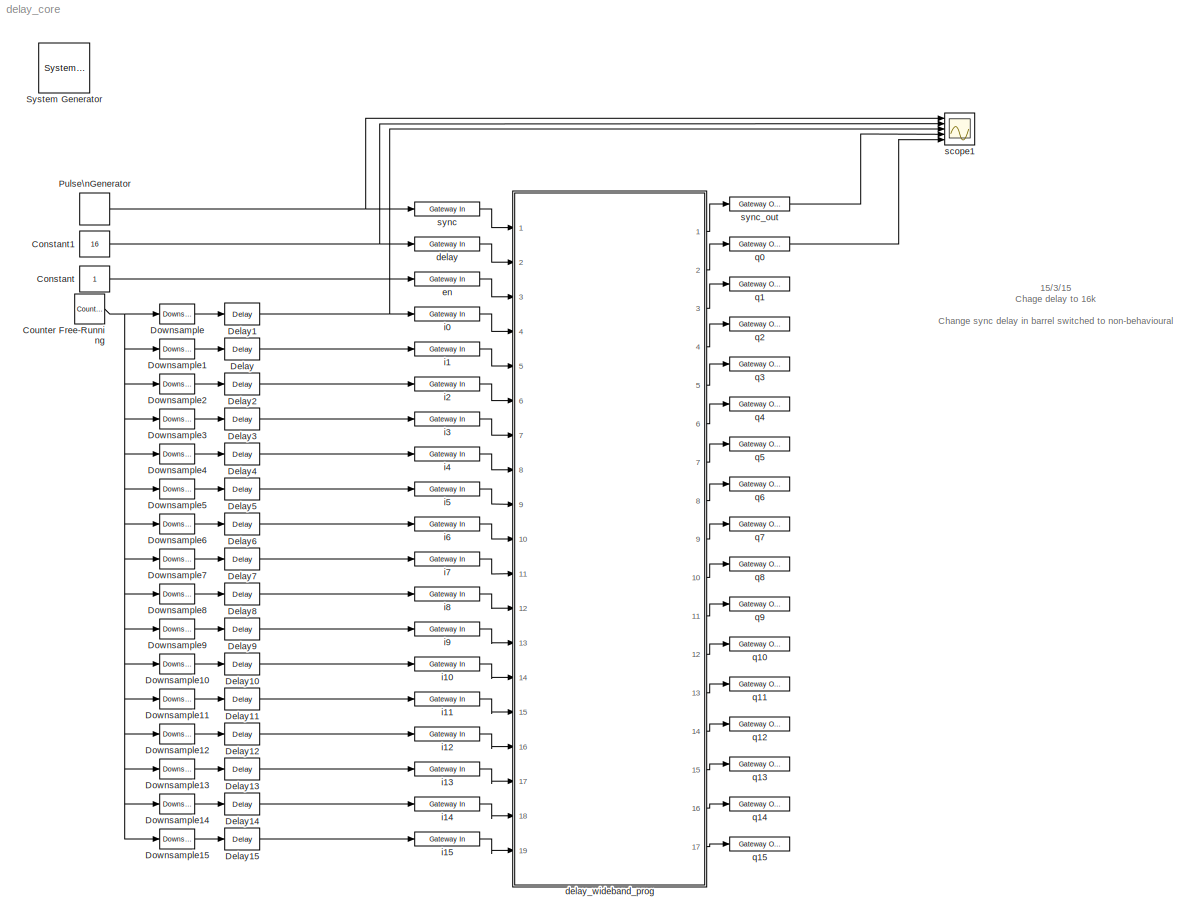
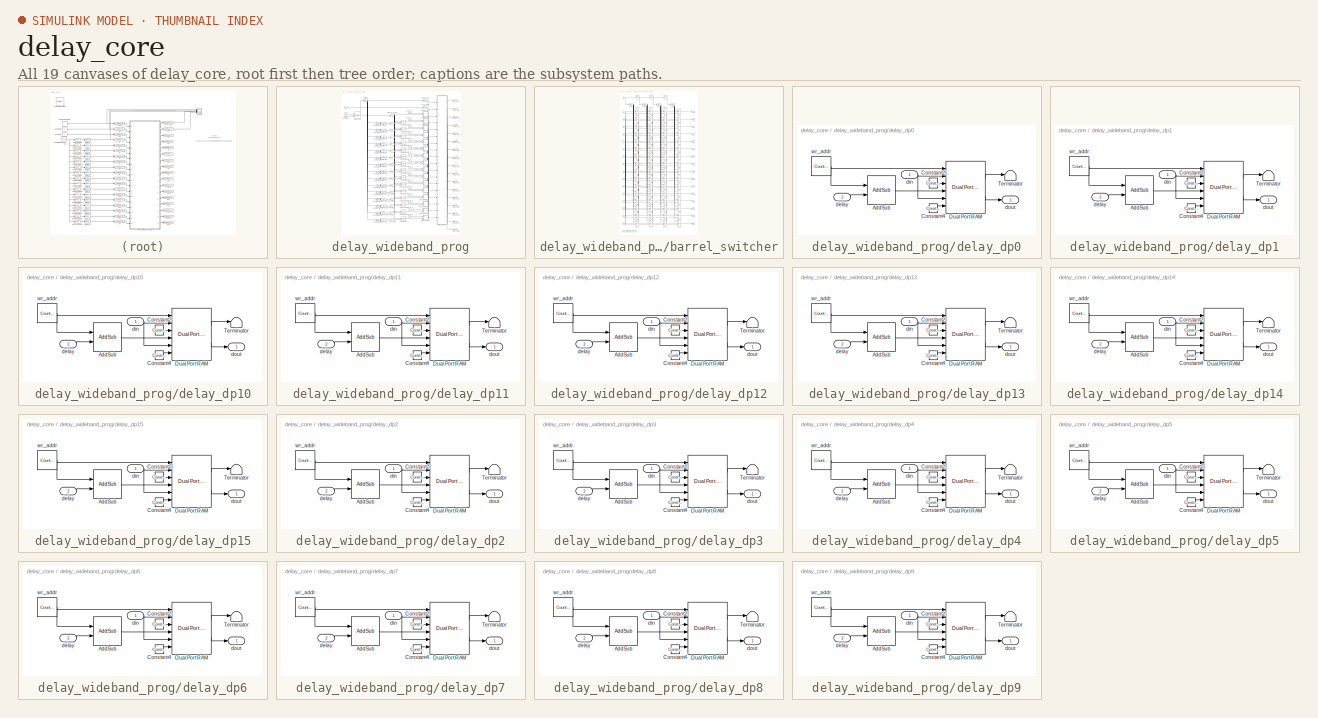
[diagram: thumbnail index - all 19 canvases of the model, root first then tree order]
MODEL delay_core
KIND model
BLOCK [Reference]  System Generator  REF=xbsIndex_r4/ System Generator
  AttributesFormatString = System\\nGenerator
  Impl_file = ISE Defaults
  Ports = []
  SID = 4
  SourceBlock = xbsIndex_r4/ System Generator
  SourceType = Xilinx System Generator Block
  Synth_file = XST Defaults
  Tag = genX
  UserData = DataTag0
  UserDataPersistent = on
  block_type = sysgen
  block_version = 11.4
  clock_wrapper = Clock Enables
  core_generation = According to Block Masks
  dbl_ovrd = According to Block Masks
  dcm_input_clock_period = 100
  deprecated_control = off
  directory = ./delay_core
  eval_field = 0
  has_advanced_control = 0
  incr_netlist = off
  infoedit = System Generator
  package = ff1759
  part = xc6vsx475t
  proj_type = Project Navigator
  run_coregen = off
  sg_icon_stat = 51,50,0,0,token,white,0,58c5b5770fe5f7c311f53dbc6e73f0f6,right,,[ ],[ ]
  sg_mask_display = fprintf('','COMMENT: begin icon graphics');\npatch([0 51 51 0 0 ],[0 0 50 50 0 ],[1 1 1 ]);\npatch([1.6375 16.81 27.31 37.81 48.31 27.31 12.1375 1.6375 ],[36.655 36.655 47.155 36.655 47.155 47.155 47.155 36.655 ],[0.933333 0.203922 0.141176 ]);\npatch([12.1375 27.31 16.81 1.6375 12.1375 ],[26.155 26.155 36.655 36.655 26.155 ],[0.698039 0.0313725 0.219608 ]);\npatch([1.6375 16.81 27.31 12.1375 1.63...<+335ch>
  sggui_pos = 326,241,464,470
  simulink_period = 1
  speed = -1
  synthesis_tool = XST
  sysclk_period = 3.2
  testbench = off
  trim_vbits = Everywhere in SubSystem
  xilinxfamily = virtex6
BLOCK [Constant] Constant
  SID = 67
BLOCK [Constant] Constant1
  SID = 163
  Value = 16
BLOCK [Reference] Counter Free-Running  REF=simulink/Sources/Counter\nFree-Running
  NumBits = 8
  Ports = [0, 1]
  SID = 164
  SourceBlock = simulink/Sources/Counter\nFree-Running
  SourceType = Counter Free-Running
  tsamp = 1/16
BLOCK [Reference] Delay  REF=dspsigops/Delay
  InputProcessing = Inherited (this choice will be removed - see release notes)
  Ports = [1, 1]
  SID = 144
  SourceBlock = dspsigops/Delay
  SourceType = Delay
  UserData = DataTag1
  UserDataPersistent = on
  delay = 1
  dif_ic_for_ch = off
  dif_ic_for_dly = off
  dly_unit = Samples
  ic = 0
  ic_detail = off
  reset_popup = None
BLOCK [Reference] Delay1  REF=dspsigops/Delay
  InputProcessing = Inherited (this choice will be removed - see release notes)
  Ports = [1, 1]
  SID = 145
  SourceBlock = dspsigops/Delay
  SourceType = Delay
  UserData = DataTag2
  UserDataPersistent = on
  delay = 1
  dif_ic_for_ch = off
  dif_ic_for_dly = off
  dly_unit = Samples
  ic = 0
  ic_detail = off
  reset_popup = None
BLOCK [Reference] Delay10  REF=dspsigops/Delay
  InputProcessing = Inherited (this choice will be removed - see release notes)
  Ports = [1, 1]
  SID = 154
  SourceBlock = dspsigops/Delay
  SourceType = Delay
  UserData = DataTag3
  UserDataPersistent = on
  delay = 1
  dif_ic_for_ch = off
  dif_ic_for_dly = off
  dly_unit = Samples
  ic = 0
  ic_detail = off
  reset_popup = None
BLOCK [Reference] Delay11  REF=dspsigops/Delay
  InputProcessing = Inherited (this choice will be removed - see release notes)
  Ports = [1, 1]
  SID = 155
  SourceBlock = dspsigops/Delay
  SourceType = Delay
  UserData = DataTag4
  UserDataPersistent = on
  delay = 1
  dif_ic_for_ch = off
  dif_ic_for_dly = off
  dly_unit = Samples
  ic = 0
  ic_detail = off
  reset_popup = None
BLOCK [Reference] Delay12  REF=dspsigops/Delay
  InputProcessing = Inherited (this choice will be removed - see release notes)
  Ports = [1, 1]
  SID = 156
  SourceBlock = dspsigops/Delay
  SourceType = Delay
  UserData = DataTag5
  UserDataPersistent = on
  delay = 1
  dif_ic_for_ch = off
  dif_ic_for_dly = off
  dly_unit = Samples
  ic = 0
  ic_detail = off
  reset_popup = None
BLOCK [Reference] Delay13  REF=dspsigops/Delay
  InputProcessing = Inherited (this choice will be removed - see release notes)
  Ports = [1, 1]
  SID = 157
  SourceBlock = dspsigops/Delay
  SourceType = Delay
  UserData = DataTag6
  UserDataPersistent = on
  delay = 1
  dif_ic_for_ch = off
  dif_ic_for_dly = off
  dly_unit = Samples
  ic = 0
  ic_detail = off
  reset_popup = None
BLOCK [Reference] Delay14  REF=dspsigops/Delay
  InputProcessing = Inherited (this choice will be removed - see release notes)
  Ports = [1, 1]
  SID = 158
  SourceBlock = dspsigops/Delay
  SourceType = Delay
  UserData = DataTag7
  UserDataPersistent = on
  delay = 1
  dif_ic_for_ch = off
  dif_ic_for_dly = off
  dly_unit = Samples
  ic = 0
  ic_detail = off
  reset_popup = None
BLOCK [Reference] Delay15  REF=dspsigops/Delay
  InputProcessing = Inherited (this choice will be removed - see release notes)
  Ports = [1, 1]
  SID = 159
  SourceBlock = dspsigops/Delay
  SourceType = Delay
  UserData = DataTag8
  UserDataPersistent = on
  delay = 1
  dif_ic_for_ch = off
  dif_ic_for_dly = off
  dly_unit = Samples
  ic = 0
  ic_detail = off
  reset_popup = None
BLOCK [Reference] Delay2  REF=dspsigops/Delay
  InputProcessing = Inherited (this choice will be removed - see release notes)
  Ports = [1, 1]
  SID = 146
  SourceBlock = dspsigops/Delay
  SourceType = Delay
  UserData = DataTag9
  UserDataPersistent = on
  delay = 1
  dif_ic_for_ch = off
  dif_ic_for_dly = off
  dly_unit = Samples
  ic = 0
  ic_detail = off
  reset_popup = None
BLOCK [Reference] Delay3  REF=dspsigops/Delay
  InputProcessing = Inherited (this choice will be removed - see release notes)
  Ports = [1, 1]
  SID = 147
  SourceBlock = dspsigops/Delay
  SourceType = Delay
  UserData = DataTag10
  UserDataPersistent = on
  delay = 1
  dif_ic_for_ch = off
  dif_ic_for_dly = off
  dly_unit = Samples
  ic = 0
  ic_detail = off
  reset_popup = None
BLOCK [Reference] Delay4  REF=dspsigops/Delay
  InputProcessing = Inherited (this choice will be removed - see release notes)
  Ports = [1, 1]
  SID = 148
  SourceBlock = dspsigops/Delay
  SourceType = Delay
  UserData = DataTag11
  UserDataPersistent = on
  delay = 1
  dif_ic_for_ch = off
  dif_ic_for_dly = off
  dly_unit = Samples
  ic = 0
  ic_detail = off
  reset_popup = None
BLOCK [Reference] Delay5  REF=dspsigops/Delay
  InputProcessing = Inherited (this choice will be removed - see release notes)
  Ports = [1, 1]
  SID = 149
  SourceBlock = dspsigops/Delay
  SourceType = Delay
  UserData = DataTag12
  UserDataPersistent = on
  delay = 1
  dif_ic_for_ch = off
  dif_ic_for_dly = off
  dly_unit = Samples
  ic = 0
  ic_detail = off
  reset_popup = None
BLOCK [Reference] Delay6  REF=dspsigops/Delay
  InputProcessing = Inherited (this choice will be removed - see release notes)
  Ports = [1, 1]
  SID = 150
  SourceBlock = dspsigops/Delay
  SourceType = Delay
  UserData = DataTag13
  UserDataPersistent = on
  delay = 1
  dif_ic_for_ch = off
  dif_ic_for_dly = off
  dly_unit = Samples
  ic = 0
  ic_detail = off
  reset_popup = None
BLOCK [Reference] Delay7  REF=dspsigops/Delay
  InputProcessing = Inherited (this choice will be removed - see release notes)
  Ports = [1, 1]
  SID = 151
  SourceBlock = dspsigops/Delay
  SourceType = Delay
  UserData = DataTag14
  UserDataPersistent = on
  delay = 1
  dif_ic_for_ch = off
  dif_ic_for_dly = off
  dly_unit = Samples
  ic = 0
  ic_detail = off
  reset_popup = None
BLOCK [Reference] Delay8  REF=dspsigops/Delay
  InputProcessing = Inherited (this choice will be removed - see release notes)
  Ports = [1, 1]
  SID = 152
  SourceBlock = dspsigops/Delay
  SourceType = Delay
  UserData = DataTag15
  UserDataPersistent = on
  delay = 1
  dif_ic_for_ch = off
  dif_ic_for_dly = off
  dly_unit = Samples
  ic = 0
  ic_detail = off
  reset_popup = None
BLOCK [Reference] Delay9  REF=dspsigops/Delay
  InputProcessing = Inherited (this choice will be removed - see release notes)
  Ports = [1, 1]
  SID = 153
  SourceBlock = dspsigops/Delay
  SourceType = Delay
  UserData = DataTag16
  UserDataPersistent = on
  delay = 1
  dif_ic_for_ch = off
  dif_ic_for_dly = off
  dly_unit = Samples
  ic = 0
  ic_detail = off
  reset_popup = None
BLOCK [Reference] Downsample  REF=dspsigops/Downsample
  InputProcessing = Inherited (this choice will be removed - see release notes)
  N = 16
  Ports = [1, 1]
  RateOptions = Enforce single-rate processing
  SID = 47
  SourceBlock = dspsigops/Downsample
  SourceType = Downsample
  UserData = DataTag17
  UserDataPersistent = on
  fmode = Maintain input frame size
  ic = 0
  phase = 0
  smode = Allow multirate
BLOCK [Reference] Downsample1  REF=dspsigops/Downsample
  InputProcessing = Inherited (this choice will be removed - see release notes)
  N = 16
  Ports = [1, 1]
  RateOptions = Enforce single-rate processing
  SID = 48
  SourceBlock = dspsigops/Downsample
  SourceType = Downsample
  UserData = DataTag18
  UserDataPersistent = on
  fmode = Maintain input frame size
  ic = 0
  phase = 1
  smode = Allow multirate
BLOCK [Reference] Downsample10  REF=dspsigops/Downsample
  InputProcessing = Inherited (this choice will be removed - see release notes)
  N = 16
  Ports = [1, 1]
  RateOptions = Enforce single-rate processing
  SID = 57
  SourceBlock = dspsigops/Downsample
  SourceType = Downsample
  UserData = DataTag19
  UserDataPersistent = on
  fmode = Maintain input frame size
  ic = 0
  phase = 10
  smode = Allow multirate
BLOCK [Reference] Downsample11  REF=dspsigops/Downsample
  InputProcessing = Inherited (this choice will be removed - see release notes)
  N = 16
  Ports = [1, 1]
  RateOptions = Enforce single-rate processing
  SID = 58
  SourceBlock = dspsigops/Downsample
  SourceType = Downsample
  UserData = DataTag20
  UserDataPersistent = on
  fmode = Maintain input frame size
  ic = 0
  phase = 11
  smode = Allow multirate
BLOCK [Reference] Downsample12  REF=dspsigops/Downsample
  InputProcessing = Inherited (this choice will be removed - see release notes)
  N = 16
  Ports = [1, 1]
  RateOptions = Enforce single-rate processing
  SID = 59
  SourceBlock = dspsigops/Downsample
  SourceType = Downsample
  UserData = DataTag21
  UserDataPersistent = on
  fmode = Maintain input frame size
  ic = 0
  phase = 12
  smode = Allow multirate
BLOCK [Reference] Downsample13  REF=dspsigops/Downsample
  InputProcessing = Inherited (this choice will be removed - see release notes)
  N = 16
  Ports = [1, 1]
  RateOptions = Enforce single-rate processing
  SID = 60
  SourceBlock = dspsigops/Downsample
  SourceType = Downsample
  UserData = DataTag22
  UserDataPersistent = on
  fmode = Maintain input frame size
  ic = 0
  phase = 13
  smode = Allow multirate
BLOCK [Reference] Downsample14  REF=dspsigops/Downsample
  InputProcessing = Inherited (this choice will be removed - see release notes)
  N = 16
  Ports = [1, 1]
  RateOptions = Enforce single-rate processing
  SID = 61
  SourceBlock = dspsigops/Downsample
  SourceType = Downsample
  UserData = DataTag23
  UserDataPersistent = on
  fmode = Maintain input frame size
  ic = 0
  phase = 14
  smode = Allow multirate
BLOCK [Reference] Downsample15  REF=dspsigops/Downsample
  InputProcessing = Inherited (this choice will be removed - see release notes)
  N = 16
  Ports = [1, 1]
  RateOptions = Enforce single-rate processing
  SID = 62
  SourceBlock = dspsigops/Downsample
  SourceType = Downsample
  UserData = DataTag24
  UserDataPersistent = on
  fmode = Maintain input frame size
  ic = 0
  phase = 15
  smode = Allow multirate
BLOCK [Reference] Downsample2  REF=dspsigops/Downsample
  InputProcessing = Inherited (this choice will be removed - see release notes)
  N = 16
  Ports = [1, 1]
  RateOptions = Enforce single-rate processing
  SID = 49
  SourceBlock = dspsigops/Downsample
  SourceType = Downsample
  UserData = DataTag25
  UserDataPersistent = on
  fmode = Maintain input frame size
  ic = 0
  phase = 2
  smode = Allow multirate
BLOCK [Reference] Downsample3  REF=dspsigops/Downsample
  InputProcessing = Inherited (this choice will be removed - see release notes)
  N = 16
  Ports = [1, 1]
  RateOptions = Enforce single-rate processing
  SID = 50
  SourceBlock = dspsigops/Downsample
  SourceType = Downsample
  UserData = DataTag26
  UserDataPersistent = on
  fmode = Maintain input frame size
  ic = 0
  phase = 3
  smode = Allow multirate
BLOCK [Reference] Downsample4  REF=dspsigops/Downsample
  InputProcessing = Inherited (this choice will be removed - see release notes)
  N = 16
  Ports = [1, 1]
  RateOptions = Enforce single-rate processing
  SID = 51
  SourceBlock = dspsigops/Downsample
  SourceType = Downsample
  UserData = DataTag27
  UserDataPersistent = on
  fmode = Maintain input frame size
  ic = 0
  phase = 4
  smode = Allow multirate
BLOCK [Reference] Downsample5  REF=dspsigops/Downsample
  InputProcessing = Inherited (this choice will be removed - see release notes)
  N = 16
  Ports = [1, 1]
  RateOptions = Enforce single-rate processing
  SID = 52
  SourceBlock = dspsigops/Downsample
  SourceType = Downsample
  UserData = DataTag28
  UserDataPersistent = on
  fmode = Maintain input frame size
  ic = 0
  phase = 5
  smode = Allow multirate
BLOCK [Reference] Downsample6  REF=dspsigops/Downsample
  InputProcessing = Inherited (this choice will be removed - see release notes)
  N = 16
  Ports = [1, 1]
  RateOptions = Enforce single-rate processing
  SID = 53
  SourceBlock = dspsigops/Downsample
  SourceType = Downsample
  UserData = DataTag29
  UserDataPersistent = on
  fmode = Maintain input frame size
  ic = 0
  phase = 6
  smode = Allow multirate
BLOCK [Reference] Downsample7  REF=dspsigops/Downsample
  InputProcessing = Inherited (this choice will be removed - see release notes)
  N = 16
  Ports = [1, 1]
  RateOptions = Enforce single-rate processing
  SID = 54
  SourceBlock = dspsigops/Downsample
  SourceType = Downsample
  UserData = DataTag30
  UserDataPersistent = on
  fmode = Maintain input frame size
  ic = 0
  phase = 7
  smode = Allow multirate
BLOCK [Reference] Downsample8  REF=dspsigops/Downsample
  InputProcessing = Inherited (this choice will be removed - see release notes)
  N = 16
  Ports = [1, 1]
  RateOptions = Enforce single-rate processing
  SID = 55
  SourceBlock = dspsigops/Downsample
  SourceType = Downsample
  UserData = DataTag31
  UserDataPersistent = on
  fmode = Maintain input frame size
  ic = 0
  phase = 8
  smode = Allow multirate
BLOCK [Reference] Downsample9  REF=dspsigops/Downsample
  InputProcessing = Inherited (this choice will be removed - see release notes)
  N = 16
  Ports = [1, 1]
  RateOptions = Enforce single-rate processing
  SID = 56
  SourceBlock = dspsigops/Downsample
  SourceType = Downsample
  UserData = DataTag32
  UserDataPersistent = on
  fmode = Maintain input frame size
  ic = 0
  phase = 9
  smode = Allow multirate
BLOCK [DiscretePulseGenerator] Pulse\nGenerator
  Period = 2^17
  Ports = [0, 1]
  SID = 65
BLOCK [Reference] delay  REF=xbsIndex_r4/Gateway In
  ADCChannel = '1'
  LOCs = {}
  Ports = [1, 1]
  SID = 7
  SourceBlock = xbsIndex_r4/Gateway In
  SourceType = Xilinx Gateway In Block
  UseAsADC = off
  arith_type = Unsigned
  bin_pt = 0
  block_type = gatewayin
  block_version = 11.4
  dbl_ovrd = off
  exp_width = 8
  frac_width = 24
  gui_display_data_type = Fixed-point
  has_advanced_control = 0
  hdl_port = on
  infoedit = Gateway in block.  Converts inputs of type Simulink integer, double and fixed point to  Xilinx fixed point type.<br><br>Hardware notes:  In hardware these blocks become top level input ports.  <repeated x19 — deduplicated; at blocks: delay, en, i0, i1, i10, i11, i12, i13, i14, i15, i2, i3, i4, i5, i6, i7, +3 more>
  inherit_from_input = off
  locs_specified = off
  n_bits = 15
  overflow = Saturate
  period = 1
  preci_type = Single
  quantization = Round  (unbiased: +/- Inf)
  sg_icon_stat = 65,14,1,1,white,yellow,1,00d3666e,right,,[ ],[ ]
  sg_mask_display = fprintf('','COMMENT: begin icon graphics');\npatch([0 65 65 0 0 ],[0 0 14 14 0 ],[0.95 0.93 0.65 ]);\nplot([0 65 65 0 0 ],[0 0 14 14 0 ]);\npatch([27.55 30.44 32.44 34.44 36.44 32.44 29.55 27.55 ],[9.22 9.22 11.22 9.22 11.22 11.22 11.22 9.22 ],[1 1 1 ]);\npatch([29.55 32.44 30.44 27.55 29.55 ],[7.22 7.22 9.22 9.22 7.22 ],[0.985 0.979 0.895 ]);\npatch([27.55 30.44 32.44 29.55 27.55 ],[5.22 5.22 7.2...<+385ch>  <repeated x19 — deduplicated; at blocks: delay, en, i0, i1, i10, i11, i12, i13, i14, i15, i2, i3, i4, i5, i6, i7, +3 more>
  sggui_pos = 13,39,481,695
  timing_constraint = None
  xl_area = [0,0,0,0,0,0,0]
  xl_use_area = off
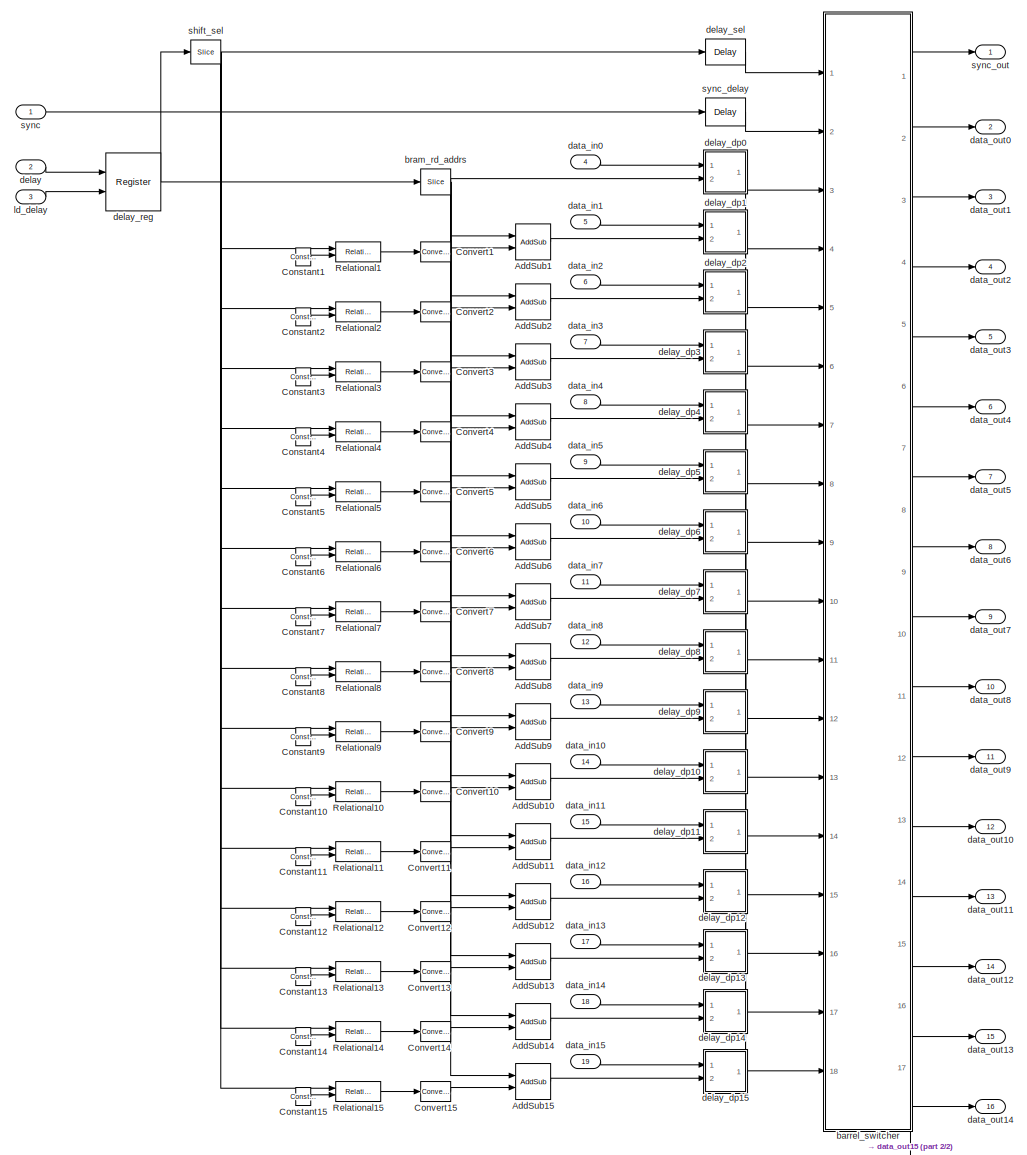
[diagram: delay_wideband_prog - part 1/2, most of the canvas]
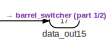
[diagram: delay_wideband_prog - part 2/2, bottom right region]
BLOCK [SubSystem] delay_wideband_prog
  AncestorBlock = casper_library_delays/delay_wideband_prog
  FunctionWithSeparateData = off
  MaskHideContents = off
  MinAlgLoopOccurrences = off
  Opaque = off
  Ports = [19, 17]
  PropExecContextOutsideSubsystem = off
  RTWSystemCode = Auto
  RequestExecContextInheritance = off
  SID = 162
  UserData = DataTag33
  UserDataPersistent = on
BLOCK [Reference] delay_wideband_prog/AddSub1  REF=xbsIndex_r4/AddSub
  Ports = [2, 1]
  SID = 162:274
  SourceBlock = xbsIndex_r4/AddSub
  SourceType = Xilinx Adder/Subtracter Block
  arith_type = Unsigned
  bin_pt = 0
  block_type = addsub
  dbl_ovrd = off
  en = off
  has_advanced_control = 0
  hw_selection = Fabric
  latency = 0
  mode = Addition
  n_bits = 10
  overflow = Wrap
  pipelined = off
  precision = Full
  quantization = Truncate
  sg_icon_stat = 35,36,2,1,white,blue,0,e139daf6,right,,[ ],[ ]
  sg_mask_display = fprintf('','COMMENT: begin icon graphics');\npatch([0 35 35 0 0 ],[0 0 36 36 0 ],[0.77 0.82 0.91 ]);\nplot([0 35 35 0 0 ],[0 0 36 36 0 ]);\npatch([5.875 13.1 18.1 23.1 28.1 18.1 10.875 5.875 ],[23.55 23.55 28.55 23.55 28.55 28.55 28.55 23.55 ],[1 1 1 ]);\npatch([10.875 18.1 13.1 5.875 10.875 ],[18.55 18.55 23.55 23.55 18.55 ],[0.931 0.946 0.973 ]);\npatch([5.875 13.1 18.1 10.875 5.875 ],[13.55 13....<+425ch>  <repeated x15 — deduplicated; at blocks: AddSub1, AddSub10, AddSub11, AddSub12, AddSub13, AddSub14, AddSub15, AddSub2, AddSub3, AddSub4, AddSub5, AddSub6, AddSub7, AddSub8, AddSub9>
  sggui_pos = -1,-1,-1,-1
  use_behavioral_HDL = off
  use_carryin = off
  use_carryout = off
  xl_area = [0,0,0,0,0,0,0]
  xl_use_area = off
BLOCK [Reference] delay_wideband_prog/AddSub10  REF=xbsIndex_r4/AddSub
  Ports = [2, 1]
  SID = 162:328
  SourceBlock = xbsIndex_r4/AddSub
  SourceType = Xilinx Adder/Subtracter Block
  arith_type = Unsigned
  bin_pt = 0
  block_type = addsub
  dbl_ovrd = off
  en = off
  has_advanced_control = 0
  hw_selection = Fabric
  latency = 0
  mode = Addition
  n_bits = 10
  overflow = Wrap
  pipelined = off
  precision = Full
  quantization = Truncate
  sg_icon_stat = 35,36,2,1,white,blue,0,e139daf6,right,,[ ],[ ]
  sggui_pos = -1,-1,-1,-1
  use_behavioral_HDL = off
  use_carryin = off
  use_carryout = off
  xl_area = [0,0,0,0,0,0,0]
  xl_use_area = off
BLOCK [Reference] delay_wideband_prog/AddSub11  REF=xbsIndex_r4/AddSub
  Ports = [2, 1]
  SID = 162:334
  SourceBlock = xbsIndex_r4/AddSub
  SourceType = Xilinx Adder/Subtracter Block
  arith_type = Unsigned
  bin_pt = 0
  block_type = addsub
  dbl_ovrd = off
  en = off
  has_advanced_control = 0
  hw_selection = Fabric
  latency = 0
  mode = Addition
  n_bits = 10
  overflow = Wrap
  pipelined = off
  precision = Full
  quantization = Truncate
  sg_icon_stat = 35,36,2,1,white,blue,0,e139daf6,right,,[ ],[ ]
  sggui_pos = -1,-1,-1,-1
  use_behavioral_HDL = off
  use_carryin = off
  use_carryout = off
  xl_area = [0,0,0,0,0,0,0]
  xl_use_area = off
BLOCK [Reference] delay_wideband_prog/AddSub12  REF=xbsIndex_r4/AddSub
  Ports = [2, 1]
  SID = 162:340
  SourceBlock = xbsIndex_r4/AddSub
  SourceType = Xilinx Adder/Subtracter Block
  arith_type = Unsigned
  bin_pt = 0
  block_type = addsub
  dbl_ovrd = off
  en = off
  has_advanced_control = 0
  hw_selection = Fabric
  latency = 0
  mode = Addition
  n_bits = 10
  overflow = Wrap
  pipelined = off
  precision = Full
  quantization = Truncate
  sg_icon_stat = 35,36,2,1,white,blue,0,e139daf6,right,,[ ],[ ]
  sggui_pos = -1,-1,-1,-1
  use_behavioral_HDL = off
  use_carryin = off
  use_carryout = off
  xl_area = [0,0,0,0,0,0,0]
  xl_use_area = off
BLOCK [Reference] delay_wideband_prog/AddSub13  REF=xbsIndex_r4/AddSub
  Ports = [2, 1]
  SID = 162:346
  SourceBlock = xbsIndex_r4/AddSub
  SourceType = Xilinx Adder/Subtracter Block
  arith_type = Unsigned
  bin_pt = 0
  block_type = addsub
  dbl_ovrd = off
  en = off
  has_advanced_control = 0
  hw_selection = Fabric
  latency = 0
  mode = Addition
  n_bits = 10
  overflow = Wrap
  pipelined = off
  precision = Full
  quantization = Truncate
  sg_icon_stat = 35,36,2,1,white,blue,0,e139daf6,right,,[ ],[ ]
  sggui_pos = -1,-1,-1,-1
  use_behavioral_HDL = off
  use_carryin = off
  use_carryout = off
  xl_area = [0,0,0,0,0,0,0]
  xl_use_area = off
BLOCK [Reference] delay_wideband_prog/AddSub14  REF=xbsIndex_r4/AddSub
  Ports = [2, 1]
  SID = 162:352
  SourceBlock = xbsIndex_r4/AddSub
  SourceType = Xilinx Adder/Subtracter Block
  arith_type = Unsigned
  bin_pt = 0
  block_type = addsub
  dbl_ovrd = off
  en = off
  has_advanced_control = 0
  hw_selection = Fabric
  latency = 0
  mode = Addition
  n_bits = 10
  overflow = Wrap
  pipelined = off
  precision = Full
  quantization = Truncate
  sg_icon_stat = 35,36,2,1,white,blue,0,e139daf6,right,,[ ],[ ]
  sggui_pos = -1,-1,-1,-1
  use_behavioral_HDL = off
  use_carryin = off
  use_carryout = off
  xl_area = [0,0,0,0,0,0,0]
  xl_use_area = off
BLOCK [Reference] delay_wideband_prog/AddSub15  REF=xbsIndex_r4/AddSub
  Ports = [2, 1]
  SID = 162:358
  SourceBlock = xbsIndex_r4/AddSub
  SourceType = Xilinx Adder/Subtracter Block
  arith_type = Unsigned
  bin_pt = 0
  block_type = addsub
  dbl_ovrd = off
  en = off
  has_advanced_control = 0
  hw_selection = Fabric
  latency = 0
  mode = Addition
  n_bits = 10
  overflow = Wrap
  pipelined = off
  precision = Full
  quantization = Truncate
  sg_icon_stat = 35,36,2,1,white,blue,0,e139daf6,right,,[ ],[ ]
  sggui_pos = -1,-1,-1,-1
  use_behavioral_HDL = off
  use_carryin = off
  use_carryout = off
  xl_area = [0,0,0,0,0,0,0]
  xl_use_area = off
BLOCK [Reference] delay_wideband_prog/AddSub2  REF=xbsIndex_r4/AddSub
  Ports = [2, 1]
  SID = 162:280
  SourceBlock = xbsIndex_r4/AddSub
  SourceType = Xilinx Adder/Subtracter Block
  arith_type = Unsigned
  bin_pt = 0
  block_type = addsub
  dbl_ovrd = off
  en = off
  has_advanced_control = 0
  hw_selection = Fabric
  latency = 0
  mode = Addition
  n_bits = 10
  overflow = Wrap
  pipelined = off
  precision = Full
  quantization = Truncate
  sg_icon_stat = 35,36,2,1,white,blue,0,e139daf6,right,,[ ],[ ]
  sggui_pos = -1,-1,-1,-1
  use_behavioral_HDL = off
  use_carryin = off
  use_carryout = off
  xl_area = [0,0,0,0,0,0,0]
  xl_use_area = off
BLOCK [Reference] delay_wideband_prog/AddSub3  REF=xbsIndex_r4/AddSub
  Ports = [2, 1]
  SID = 162:286
  SourceBlock = xbsIndex_r4/AddSub
  SourceType = Xilinx Adder/Subtracter Block
  arith_type = Unsigned
  bin_pt = 0
  block_type = addsub
  dbl_ovrd = off
  en = off
  has_advanced_control = 0
  hw_selection = Fabric
  latency = 0
  mode = Addition
  n_bits = 10
  overflow = Wrap
  pipelined = off
  precision = Full
  quantization = Truncate
  sg_icon_stat = 35,36,2,1,white,blue,0,e139daf6,right,,[ ],[ ]
  sggui_pos = -1,-1,-1,-1
  use_behavioral_HDL = off
  use_carryin = off
  use_carryout = off
  xl_area = [0,0,0,0,0,0,0]
  xl_use_area = off
BLOCK [Reference] delay_wideband_prog/AddSub4  REF=xbsIndex_r4/AddSub
  Ports = [2, 1]
  SID = 162:292
  SourceBlock = xbsIndex_r4/AddSub
  SourceType = Xilinx Adder/Subtracter Block
  arith_type = Unsigned
  bin_pt = 0
  block_type = addsub
  dbl_ovrd = off
  en = off
  has_advanced_control = 0
  hw_selection = Fabric
  latency = 0
  mode = Addition
  n_bits = 10
  overflow = Wrap
  pipelined = off
  precision = Full
  quantization = Truncate
  sg_icon_stat = 35,36,2,1,white,blue,0,e139daf6,right,,[ ],[ ]
  sggui_pos = -1,-1,-1,-1
  use_behavioral_HDL = off
  use_carryin = off
  use_carryout = off
  xl_area = [0,0,0,0,0,0,0]
  xl_use_area = off
BLOCK [Reference] delay_wideband_prog/AddSub5  REF=xbsIndex_r4/AddSub
  Ports = [2, 1]
  SID = 162:298
  SourceBlock = xbsIndex_r4/AddSub
  SourceType = Xilinx Adder/Subtracter Block
  arith_type = Unsigned
  bin_pt = 0
  block_type = addsub
  dbl_ovrd = off
  en = off
  has_advanced_control = 0
  hw_selection = Fabric
  latency = 0
  mode = Addition
  n_bits = 10
  overflow = Wrap
  pipelined = off
  precision = Full
  quantization = Truncate
  sg_icon_stat = 35,36,2,1,white,blue,0,e139daf6,right,,[ ],[ ]
  sggui_pos = -1,-1,-1,-1
  use_behavioral_HDL = off
  use_carryin = off
  use_carryout = off
  xl_area = [0,0,0,0,0,0,0]
  xl_use_area = off
BLOCK [Reference] delay_wideband_prog/AddSub6  REF=xbsIndex_r4/AddSub
  Ports = [2, 1]
  SID = 162:304
  SourceBlock = xbsIndex_r4/AddSub
  SourceType = Xilinx Adder/Subtracter Block
  arith_type = Unsigned
  bin_pt = 0
  block_type = addsub
  dbl_ovrd = off
  en = off
  has_advanced_control = 0
  hw_selection = Fabric
  latency = 0
  mode = Addition
  n_bits = 10
  overflow = Wrap
  pipelined = off
  precision = Full
  quantization = Truncate
  sg_icon_stat = 35,36,2,1,white,blue,0,e139daf6,right,,[ ],[ ]
  sggui_pos = -1,-1,-1,-1
  use_behavioral_HDL = off
  use_carryin = off
  use_carryout = off
  xl_area = [0,0,0,0,0,0,0]
  xl_use_area = off
BLOCK [Reference] delay_wideband_prog/AddSub7  REF=xbsIndex_r4/AddSub
  Ports = [2, 1]
  SID = 162:310
  SourceBlock = xbsIndex_r4/AddSub
  SourceType = Xilinx Adder/Subtracter Block
  arith_type = Unsigned
  bin_pt = 0
  block_type = addsub
  dbl_ovrd = off
  en = off
  has_advanced_control = 0
  hw_selection = Fabric
  latency = 0
  mode = Addition
  n_bits = 10
  overflow = Wrap
  pipelined = off
  precision = Full
  quantization = Truncate
  sg_icon_stat = 35,36,2,1,white,blue,0,e139daf6,right,,[ ],[ ]
  sggui_pos = -1,-1,-1,-1
  use_behavioral_HDL = off
  use_carryin = off
  use_carryout = off
  xl_area = [0,0,0,0,0,0,0]
  xl_use_area = off
BLOCK [Reference] delay_wideband_prog/AddSub8  REF=xbsIndex_r4/AddSub
  Ports = [2, 1]
  SID = 162:316
  SourceBlock = xbsIndex_r4/AddSub
  SourceType = Xilinx Adder/Subtracter Block
  arith_type = Unsigned
  bin_pt = 0
  block_type = addsub
  dbl_ovrd = off
  en = off
  has_advanced_control = 0
  hw_selection = Fabric
  latency = 0
  mode = Addition
  n_bits = 10
  overflow = Wrap
  pipelined = off
  precision = Full
  quantization = Truncate
  sg_icon_stat = 35,36,2,1,white,blue,0,e139daf6,right,,[ ],[ ]
  sggui_pos = -1,-1,-1,-1
  use_behavioral_HDL = off
  use_carryin = off
  use_carryout = off
  xl_area = [0,0,0,0,0,0,0]
  xl_use_area = off
BLOCK [Reference] delay_wideband_prog/AddSub9  REF=xbsIndex_r4/AddSub
  Ports = [2, 1]
  SID = 162:322
  SourceBlock = xbsIndex_r4/AddSub
  SourceType = Xilinx Adder/Subtracter Block
  arith_type = Unsigned
  bin_pt = 0
  block_type = addsub
  dbl_ovrd = off
  en = off
  has_advanced_control = 0
  hw_selection = Fabric
  latency = 0
  mode = Addition
  n_bits = 10
  overflow = Wrap
  pipelined = off
  precision = Full
  quantization = Truncate
  sg_icon_stat = 35,36,2,1,white,blue,0,e139daf6,right,,[ ],[ ]
  sggui_pos = -1,-1,-1,-1
  use_behavioral_HDL = off
  use_carryin = off
  use_carryout = off
  xl_area = [0,0,0,0,0,0,0]
  xl_use_area = off
BLOCK [Reference] delay_wideband_prog/Constant1  REF=xbsIndex_r4/Constant
  Ports = [0, 1]
  SID = 162:271
  SourceBlock = xbsIndex_r4/Constant
  SourceType = Xilinx Constant Block Block
  arith_type = Unsigned
  bin_pt = 0
  block_type = constant
  carry = CIN
  const = 14
  dbl_ovrd = off
  dsp48_infoedit = The use of this block for DSP48 instructions is deprecated.  Please use the Opmode block.
  equ = P=C
  exp_width = 8
  explicit_period = on
  frac_width = 24
  gui_display_data_type = Fixed-point
  has_advanced_control = 0
  inp1 = P
  inp2 = PCIN>>17
  n_bits = 4
  opr = +
  opselect = C
  period = 1
  preci_type = Single
  sg_icon_stat = 15,18,0,1,white,blue,0,9e70b1fa,right,,[ ],[ ]
  sg_mask_display = fprintf('','COMMENT: begin icon graphics');\npatch([0 15 15 0 0 ],[0 0 18 18 0 ],[0.77 0.82 0.91 ]);\nplot([0 15 15 0 0 ],[0 0 18 18 0 ]);\npatch([2.55 5.44 7.44 9.44 11.44 7.44 4.55 2.55 ],[11.22 11.22 13.22 11.22 13.22 13.22 13.22 11.22 ],[1 1 1 ]);\npatch([4.55 7.44 5.44 2.55 4.55 ],[9.22 9.22 11.22 11.22 9.22 ],[0.931 0.946 0.973 ]);\npatch([2.55 5.44 7.44 4.55 2.55 ],[7.22 7.22 9.22 9.22 7.22...<+288ch>  <repeated x5 — deduplicated; at blocks: Constant1, Constant2, Constant3, Constant4, Constant5>
  sggui_pos = -1,-1,-1,-1
BLOCK [Reference] delay_wideband_prog/Constant10  REF=xbsIndex_r4/Constant
  Ports = [0, 1]
  SID = 162:325
  SourceBlock = xbsIndex_r4/Constant
  SourceType = Xilinx Constant Block Block
  arith_type = Unsigned
  bin_pt = 0
  block_type = constant
  carry = CIN
  const = 5
  dbl_ovrd = off
  dsp48_infoedit = The use of this block for DSP48 instructions is deprecated.  Please use the Opmode block.
  equ = P=C
  exp_width = 8
  explicit_period = on
  frac_width = 24
  gui_display_data_type = Fixed-point
  has_advanced_control = 0
  inp1 = P
  inp2 = PCIN>>17
  n_bits = 4
  opr = +
  opselect = C
  period = 1
  preci_type = Single
  sg_icon_stat = 15,18,0,1,white,blue,0,98872051,right,,[ ],[ ]
  sg_mask_display = fprintf('','COMMENT: begin icon graphics');\npatch([0 15 15 0 0 ],[0 0 18 18 0 ],[0.77 0.82 0.91 ]);\nplot([0 15 15 0 0 ],[0 0 18 18 0 ]);\npatch([2.55 5.44 7.44 9.44 11.44 7.44 4.55 2.55 ],[11.22 11.22 13.22 11.22 13.22 13.22 13.22 11.22 ],[1 1 1 ]);\npatch([4.55 7.44 5.44 2.55 4.55 ],[9.22 9.22 11.22 11.22 9.22 ],[0.931 0.946 0.973 ]);\npatch([2.55 5.44 7.44 4.55 2.55 ],[7.22 7.22 9.22 9.22 7.22...<+287ch>  <repeated x26 — deduplicated; at blocks: Constant10, Constant11, Constant12, Constant13, Constant14, Constant15, Constant6, Constant7, Constant8, Constant9, Constant2>
  sggui_pos = -1,-1,-1,-1
BLOCK [Reference] delay_wideband_prog/Constant11  REF=xbsIndex_r4/Constant
  Ports = [0, 1]
  SID = 162:331
  SourceBlock = xbsIndex_r4/Constant
  SourceType = Xilinx Constant Block Block
  arith_type = Unsigned
  bin_pt = 0
  block_type = constant
  carry = CIN
  const = 4
  dbl_ovrd = off
  dsp48_infoedit = The use of this block for DSP48 instructions is deprecated.  Please use the Opmode block.
  equ = P=C
  exp_width = 8
  explicit_period = on
  frac_width = 24
  gui_display_data_type = Fixed-point
  has_advanced_control = 0
  inp1 = P
  inp2 = PCIN>>17
  n_bits = 4
  opr = +
  opselect = C
  period = 1
  preci_type = Single
  sg_icon_stat = 15,18,0,1,white,blue,0,85f36853,right,,[ ],[ ]
  sggui_pos = -1,-1,-1,-1
BLOCK [Reference] delay_wideband_prog/Constant12  REF=xbsIndex_r4/Constant
  Ports = [0, 1]
  SID = 162:337
  SourceBlock = xbsIndex_r4/Constant
  SourceType = Xilinx Constant Block Block
  arith_type = Unsigned
  bin_pt = 0
  block_type = constant
  carry = CIN
  const = 3
  dbl_ovrd = off
  dsp48_infoedit = The use of this block for DSP48 instructions is deprecated.  Please use the Opmode block.
  equ = P=C
  exp_width = 8
  explicit_period = on
  frac_width = 24
  gui_display_data_type = Fixed-point
  has_advanced_control = 0
  inp1 = P
  inp2 = PCIN>>17
  n_bits = 4
  opr = +
  opselect = C
  period = 1
  preci_type = Single
  sg_icon_stat = 15,18,0,1,white,blue,0,279a71c8,right,,[ ],[ ]
  sggui_pos = -1,-1,-1,-1
BLOCK [Reference] delay_wideband_prog/Constant13  REF=xbsIndex_r4/Constant
  Ports = [0, 1]
  SID = 162:343
  SourceBlock = xbsIndex_r4/Constant
  SourceType = Xilinx Constant Block Block
  arith_type = Unsigned
  bin_pt = 0
  block_type = constant
  carry = CIN
  const = 2
  dbl_ovrd = off
  dsp48_infoedit = The use of this block for DSP48 instructions is deprecated.  Please use the Opmode block.
  equ = P=C
  exp_width = 8
  explicit_period = on
  frac_width = 24
  gui_display_data_type = Fixed-point
  has_advanced_control = 0
  inp1 = P
  inp2 = PCIN>>17
  n_bits = 4
  opr = +
  opselect = C
  period = 1
  preci_type = Single
  sg_icon_stat = 15,18,0,1,white,blue,0,fca86624,right,,[ ],[ ]
  sggui_pos = -1,-1,-1,-1
BLOCK [Reference] delay_wideband_prog/Constant14  REF=xbsIndex_r4/Constant
  Ports = [0, 1]
  SID = 162:349
  SourceBlock = xbsIndex_r4/Constant
  SourceType = Xilinx Constant Block Block
  arith_type = Unsigned
  bin_pt = 0
  block_type = constant
  carry = CIN
  const = 1
  dbl_ovrd = off
  dsp48_infoedit = The use of this block for DSP48 instructions is deprecated.  Please use the Opmode block.
  equ = P=C
  exp_width = 8
  explicit_period = on
  frac_width = 24
  gui_display_data_type = Fixed-point
  has_advanced_control = 0
  inp1 = P
  inp2 = PCIN>>17
  n_bits = 4
  opr = +
  opselect = C
  period = 1
  preci_type = Single
  sg_icon_stat = 15,18,0,1,white,blue,0,1c72b5be,right,,[ ],[ ]
  sggui_pos = -1,-1,-1,-1
BLOCK [Reference] delay_wideband_prog/Constant15  REF=xbsIndex_r4/Constant
  Ports = [0, 1]
  SID = 162:355
  SourceBlock = xbsIndex_r4/Constant
  SourceType = Xilinx Constant Block Block
  arith_type = Unsigned
  bin_pt = 0
  block_type = constant
  carry = CIN
  const = 0
  dbl_ovrd = off
  dsp48_infoedit = The use of this block for DSP48 instructions is deprecated.  Please use the Opmode block.
  equ = P=C
  exp_width = 8
  explicit_period = on
  frac_width = 24
  gui_display_data_type = Fixed-point
  has_advanced_control = 0
  inp1 = P
  inp2 = PCIN>>17
  n_bits = 4
  opr = +
  opselect = C
  period = 1
  preci_type = Single
  sg_icon_stat = 15,18,0,1,white,blue,0,bf4ddd8b,right,,[ ],[ ]
  sggui_pos = -1,-1,-1,-1
BLOCK [Reference] delay_wideband_prog/Constant2  REF=xbsIndex_r4/Constant
  Ports = [0, 1]
  SID = 162:277
  SourceBlock = xbsIndex_r4/Constant
  SourceType = Xilinx Constant Block Block
  arith_type = Unsigned
  bin_pt = 0
  block_type = constant
  carry = CIN
  const = 13
  dbl_ovrd = off
  dsp48_infoedit = The use of this block for DSP48 instructions is deprecated.  Please use the Opmode block.
  equ = P=C
  exp_width = 8
  explicit_period = on
  frac_width = 24
  gui_display_data_type = Fixed-point
  has_advanced_control = 0
  inp1 = P
  inp2 = PCIN>>17
  n_bits = 4
  opr = +
  opselect = C
  period = 1
  preci_type = Single
  sg_icon_stat = 15,18,0,1,white,blue,0,e89bb8cb,right,,[ ],[ ]
  sggui_pos = -1,-1,-1,-1
BLOCK [Reference] delay_wideband_prog/Constant3  REF=xbsIndex_r4/Constant
  Ports = [0, 1]
  SID = 162:283
  SourceBlock = xbsIndex_r4/Constant
  SourceType = Xilinx Constant Block Block
  arith_type = Unsigned
  bin_pt = 0
  block_type = constant
  carry = CIN
  const = 12
  dbl_ovrd = off
  dsp48_infoedit = The use of this block for DSP48 instructions is deprecated.  Please use the Opmode block.
  equ = P=C
  exp_width = 8
  explicit_period = on
  frac_width = 24
  gui_display_data_type = Fixed-point
  has_advanced_control = 0
  inp1 = P
  inp2 = PCIN>>17
  n_bits = 4
  opr = +
  opselect = C
  period = 1
  preci_type = Single
  sg_icon_stat = 15,18,0,1,white,blue,0,9a294e94,right,,[ ],[ ]
  sggui_pos = -1,-1,-1,-1
BLOCK [Reference] delay_wideband_prog/Constant4  REF=xbsIndex_r4/Constant
  Ports = [0, 1]
  SID = 162:289
  SourceBlock = xbsIndex_r4/Constant
  SourceType = Xilinx Constant Block Block
  arith_type = Unsigned
  bin_pt = 0
  block_type = constant
  carry = CIN
  const = 11
  dbl_ovrd = off
  dsp48_infoedit = The use of this block for DSP48 instructions is deprecated.  Please use the Opmode block.
  equ = P=C
  exp_width = 8
  explicit_period = on
  frac_width = 24
  gui_display_data_type = Fixed-point
  has_advanced_control = 0
  inp1 = P
  inp2 = PCIN>>17
  n_bits = 4
  opr = +
  opselect = C
  period = 1
  preci_type = Single
  sg_icon_stat = 15,18,0,1,white,blue,0,997df0ab,right,,[ ],[ ]
  sggui_pos = -1,-1,-1,-1
BLOCK [Reference] delay_wideband_prog/Constant5  REF=xbsIndex_r4/Constant
  Ports = [0, 1]
  SID = 162:295
  SourceBlock = xbsIndex_r4/Constant
  SourceType = Xilinx Constant Block Block
  arith_type = Unsigned
  bin_pt = 0
  block_type = constant
  carry = CIN
  const = 10
  dbl_ovrd = off
  dsp48_infoedit = The use of this block for DSP48 instructions is deprecated.  Please use the Opmode block.
  equ = P=C
  exp_width = 8
  explicit_period = on
  frac_width = 24
  gui_display_data_type = Fixed-point
  has_advanced_control = 0
  inp1 = P
  inp2 = PCIN>>17
  n_bits = 4
  opr = +
  opselect = C
  period = 1
  preci_type = Single
  sg_icon_stat = 15,18,0,1,white,blue,0,46ffeebb,right,,[ ],[ ]
  sggui_pos = -1,-1,-1,-1
BLOCK [Reference] delay_wideband_prog/Constant6  REF=xbsIndex_r4/Constant
  Ports = [0, 1]
  SID = 162:301
  SourceBlock = xbsIndex_r4/Constant
  SourceType = Xilinx Constant Block Block
  arith_type = Unsigned
  bin_pt = 0
  block_type = constant
  carry = CIN
  const = 9
  dbl_ovrd = off
  dsp48_infoedit = The use of this block for DSP48 instructions is deprecated.  Please use the Opmode block.
  equ = P=C
  exp_width = 8
  explicit_period = on
  frac_width = 24
  gui_display_data_type = Fixed-point
  has_advanced_control = 0
  inp1 = P
  inp2 = PCIN>>17
  n_bits = 4
  opr = +
  opselect = C
  period = 1
  preci_type = Single
  sg_icon_stat = 15,18,0,1,white,blue,0,350ae870,right,,[ ],[ ]
  sggui_pos = -1,-1,-1,-1
BLOCK [Reference] delay_wideband_prog/Constant7  REF=xbsIndex_r4/Constant
  Ports = [0, 1]
  SID = 162:307
  SourceBlock = xbsIndex_r4/Constant
  SourceType = Xilinx Constant Block Block
  arith_type = Unsigned
  bin_pt = 0
  block_type = constant
  carry = CIN
  const = 8
  dbl_ovrd = off
  dsp48_infoedit = The use of this block for DSP48 instructions is deprecated.  Please use the Opmode block.
  equ = P=C
  exp_width = 8
  explicit_period = on
  frac_width = 24
  gui_display_data_type = Fixed-point
  has_advanced_control = 0
  inp1 = P
  inp2 = PCIN>>17
  n_bits = 4
  opr = +
  opselect = C
  period = 1
  preci_type = Single
  sg_icon_stat = 15,18,0,1,white,blue,0,7a8c02d8,right,,[ ],[ ]
  sggui_pos = -1,-1,-1,-1
BLOCK [Reference] delay_wideband_prog/Constant8  REF=xbsIndex_r4/Constant
  Ports = [0, 1]
  SID = 162:313
  SourceBlock = xbsIndex_r4/Constant
  SourceType = Xilinx Constant Block Block
  arith_type = Unsigned
  bin_pt = 0
  block_type = constant
  carry = CIN
  const = 7
  dbl_ovrd = off
  dsp48_infoedit = The use of this block for DSP48 instructions is deprecated.  Please use the Opmode block.
  equ = P=C
  exp_width = 8
  explicit_period = on
  frac_width = 24
  gui_display_data_type = Fixed-point
  has_advanced_control = 0
  inp1 = P
  inp2 = PCIN>>17
  n_bits = 4
  opr = +
  opselect = C
  period = 1
  preci_type = Single
  sg_icon_stat = 15,18,0,1,white,blue,0,2a6960a5,right,,[ ],[ ]
  sggui_pos = -1,-1,-1,-1
BLOCK [Reference] delay_wideband_prog/Constant9  REF=xbsIndex_r4/Constant
  Ports = [0, 1]
  SID = 162:319
  SourceBlock = xbsIndex_r4/Constant
  SourceType = Xilinx Constant Block Block
  arith_type = Unsigned
  bin_pt = 0
  block_type = constant
  carry = CIN
  const = 6
  dbl_ovrd = off
  dsp48_infoedit = The use of this block for DSP48 instructions is deprecated.  Please use the Opmode block.
  equ = P=C
  exp_width = 8
  explicit_period = on
  frac_width = 24
  gui_display_data_type = Fixed-point
  has_advanced_control = 0
  inp1 = P
  inp2 = PCIN>>17
  n_bits = 4
  opr = +
  opselect = C
  period = 1
  preci_type = Single
  sg_icon_stat = 15,18,0,1,white,blue,0,f0403ad7,right,,[ ],[ ]
  sggui_pos = -1,-1,-1,-1
BLOCK [Reference] delay_wideband_prog/Convert1  REF=xbsIndex_r4/Convert
  Ports = [1, 1]
  SID = 162:273
  SourceBlock = xbsIndex_r4/Convert
  SourceType = Xilinx Type Converter Block
  arith_type = Unsigned
  bin_pt = 0
  block_type = convert
  dbl_ovrd = off
  en = off
  exp_bits = 8
  float_type = Single
  fraction_bits = 24
  gui_display_data_type = Fixed-point
  has_advanced_control = 0
  infoedit = Hardware notes: rounding and saturating require hardware resources; truncating and wrapping do not.
  latency = 0
  n_bits = 1
  overflow = Wrap
  pipeline = off
  quantization = Truncate
  sg_icon_stat = 30,20,1,1,white,blue,0,edca21da,right,,[ ],[ ]
  sg_mask_display = fprintf('','COMMENT: begin icon graphics');\npatch([0 30 30 0 0 ],[0 0 20 20 0 ],[0.77 0.82 0.91 ]);\nplot([0 30 30 0 0 ],[0 0 20 20 0 ]);\npatch([10.55 13.44 15.44 17.44 19.44 15.44 12.55 10.55 ],[12.22 12.22 14.22 12.22 14.22 14.22 14.22 12.22 ],[1 1 1 ]);\npatch([12.55 15.44 13.44 10.55 12.55 ],[10.22 10.22 12.22 12.22 10.22 ],[0.931 0.946 0.973 ]);\npatch([10.55 13.44 15.44 12.55 10.55 ],[8.22...<+320ch>  <repeated x15 — deduplicated; at blocks: Convert1, Convert10, Convert11, Convert12, Convert13, Convert14, Convert15, Convert2, Convert3, Convert4, Convert5, Convert6, Convert7, Convert8, Convert9>
  sggui_pos = -1,-1,-1,-1
  xl_area = [0,0,0,0,0,0,0]
  xl_use_area = off
BLOCK [Reference] delay_wideband_prog/Convert10  REF=xbsIndex_r4/Convert
  Ports = [1, 1]
  SID = 162:327
  SourceBlock = xbsIndex_r4/Convert
  SourceType = Xilinx Type Converter Block
  arith_type = Unsigned
  bin_pt = 0
  block_type = convert
  dbl_ovrd = off
  en = off
  exp_bits = 8
  float_type = Single
  fraction_bits = 24
  gui_display_data_type = Fixed-point
  has_advanced_control = 0
  infoedit = Hardware notes: rounding and saturating require hardware resources; truncating and wrapping do not.
  latency = 0
  n_bits = 1
  overflow = Wrap
  pipeline = off
  quantization = Truncate
  sg_icon_stat = 30,20,1,1,white,blue,0,edca21da,right,,[ ],[ ]
  sggui_pos = -1,-1,-1,-1
  xl_area = [0,0,0,0,0,0,0]
  xl_use_area = off
BLOCK [Reference] delay_wideband_prog/Convert11  REF=xbsIndex_r4/Convert
  Ports = [1, 1]
  SID = 162:333
  SourceBlock = xbsIndex_r4/Convert
  SourceType = Xilinx Type Converter Block
  arith_type = Unsigned
  bin_pt = 0
  block_type = convert
  dbl_ovrd = off
  en = off
  exp_bits = 8
  float_type = Single
  fraction_bits = 24
  gui_display_data_type = Fixed-point
  has_advanced_control = 0
  infoedit = Hardware notes: rounding and saturating require hardware resources; truncating and wrapping do not.
  latency = 0
  n_bits = 1
  overflow = Wrap
  pipeline = off
  quantization = Truncate
  sg_icon_stat = 30,20,1,1,white,blue,0,edca21da,right,,[ ],[ ]
  sggui_pos = -1,-1,-1,-1
  xl_area = [0,0,0,0,0,0,0]
  xl_use_area = off
BLOCK [Reference] delay_wideband_prog/Convert12  REF=xbsIndex_r4/Convert
  Ports = [1, 1]
  SID = 162:339
  SourceBlock = xbsIndex_r4/Convert
  SourceType = Xilinx Type Converter Block
  arith_type = Unsigned
  bin_pt = 0
  block_type = convert
  dbl_ovrd = off
  en = off
  exp_bits = 8
  float_type = Single
  fraction_bits = 24
  gui_display_data_type = Fixed-point
  has_advanced_control = 0
  infoedit = Hardware notes: rounding and saturating require hardware resources; truncating and wrapping do not.
  latency = 0
  n_bits = 1
  overflow = Wrap
  pipeline = off
  quantization = Truncate
  sg_icon_stat = 30,20,1,1,white,blue,0,edca21da,right,,[ ],[ ]
  sggui_pos = -1,-1,-1,-1
  xl_area = [0,0,0,0,0,0,0]
  xl_use_area = off
BLOCK [Reference] delay_wideband_prog/Convert13  REF=xbsIndex_r4/Convert
  Ports = [1, 1]
  SID = 162:345
  SourceBlock = xbsIndex_r4/Convert
  SourceType = Xilinx Type Converter Block
  arith_type = Unsigned
  bin_pt = 0
  block_type = convert
  dbl_ovrd = off
  en = off
  exp_bits = 8
  float_type = Single
  fraction_bits = 24
  gui_display_data_type = Fixed-point
  has_advanced_control = 0
  infoedit = Hardware notes: rounding and saturating require hardware resources; truncating and wrapping do not.
  latency = 0
  n_bits = 1
  overflow = Wrap
  pipeline = off
  quantization = Truncate
  sg_icon_stat = 30,20,1,1,white,blue,0,edca21da,right,,[ ],[ ]
  sggui_pos = -1,-1,-1,-1
  xl_area = [0,0,0,0,0,0,0]
  xl_use_area = off
BLOCK [Reference] delay_wideband_prog/Convert14  REF=xbsIndex_r4/Convert
  Ports = [1, 1]
  SID = 162:351
  SourceBlock = xbsIndex_r4/Convert
  SourceType = Xilinx Type Converter Block
  arith_type = Unsigned
  bin_pt = 0
  block_type = convert
  dbl_ovrd = off
  en = off
  exp_bits = 8
  float_type = Single
  fraction_bits = 24
  gui_display_data_type = Fixed-point
  has_advanced_control = 0
  infoedit = Hardware notes: rounding and saturating require hardware resources; truncating and wrapping do not.
  latency = 0
  n_bits = 1
  overflow = Wrap
  pipeline = off
  quantization = Truncate
  sg_icon_stat = 30,20,1,1,white,blue,0,edca21da,right,,[ ],[ ]
  sggui_pos = -1,-1,-1,-1
  xl_area = [0,0,0,0,0,0,0]
  xl_use_area = off
BLOCK [Reference] delay_wideband_prog/Convert15  REF=xbsIndex_r4/Convert
  Ports = [1, 1]
  SID = 162:357
  SourceBlock = xbsIndex_r4/Convert
  SourceType = Xilinx Type Converter Block
  arith_type = Unsigned
  bin_pt = 0
  block_type = convert
  dbl_ovrd = off
  en = off
  exp_bits = 8
  float_type = Single
  fraction_bits = 24
  gui_display_data_type = Fixed-point
  has_advanced_control = 0
  infoedit = Hardware notes: rounding and saturating require hardware resources; truncating and wrapping do not.
  latency = 0
  n_bits = 1
  overflow = Wrap
  pipeline = off
  quantization = Truncate
  sg_icon_stat = 30,20,1,1,white,blue,0,edca21da,right,,[ ],[ ]
  sggui_pos = -1,-1,-1,-1
  xl_area = [0,0,0,0,0,0,0]
  xl_use_area = off
BLOCK [Reference] delay_wideband_prog/Convert2  REF=xbsIndex_r4/Convert
  Ports = [1, 1]
  SID = 162:279
  SourceBlock = xbsIndex_r4/Convert
  SourceType = Xilinx Type Converter Block
  arith_type = Unsigned
  bin_pt = 0
  block_type = convert
  dbl_ovrd = off
  en = off
  exp_bits = 8
  float_type = Single
  fraction_bits = 24
  gui_display_data_type = Fixed-point
  has_advanced_control = 0
  infoedit = Hardware notes: rounding and saturating require hardware resources; truncating and wrapping do not.
  latency = 0
  n_bits = 1
  overflow = Wrap
  pipeline = off
  quantization = Truncate
  sg_icon_stat = 30,20,1,1,white,blue,0,edca21da,right,,[ ],[ ]
  sggui_pos = -1,-1,-1,-1
  xl_area = [0,0,0,0,0,0,0]
  xl_use_area = off
BLOCK [Reference] delay_wideband_prog/Convert3  REF=xbsIndex_r4/Convert
  Ports = [1, 1]
  SID = 162:285
  SourceBlock = xbsIndex_r4/Convert
  SourceType = Xilinx Type Converter Block
  arith_type = Unsigned
  bin_pt = 0
  block_type = convert
  dbl_ovrd = off
  en = off
  exp_bits = 8
  float_type = Single
  fraction_bits = 24
  gui_display_data_type = Fixed-point
  has_advanced_control = 0
  infoedit = Hardware notes: rounding and saturating require hardware resources; truncating and wrapping do not.
  latency = 0
  n_bits = 1
  overflow = Wrap
  pipeline = off
  quantization = Truncate
  sg_icon_stat = 30,20,1,1,white,blue,0,edca21da,right,,[ ],[ ]
  sggui_pos = -1,-1,-1,-1
  xl_area = [0,0,0,0,0,0,0]
  xl_use_area = off
BLOCK [Reference] delay_wideband_prog/Convert4  REF=xbsIndex_r4/Convert
  Ports = [1, 1]
  SID = 162:291
  SourceBlock = xbsIndex_r4/Convert
  SourceType = Xilinx Type Converter Block
  arith_type = Unsigned
  bin_pt = 0
  block_type = convert
  dbl_ovrd = off
  en = off
  exp_bits = 8
  float_type = Single
  fraction_bits = 24
  gui_display_data_type = Fixed-point
  has_advanced_control = 0
  infoedit = Hardware notes: rounding and saturating require hardware resources; truncating and wrapping do not.
  latency = 0
  n_bits = 1
  overflow = Wrap
  pipeline = off
  quantization = Truncate
  sg_icon_stat = 30,20,1,1,white,blue,0,edca21da,right,,[ ],[ ]
  sggui_pos = -1,-1,-1,-1
  xl_area = [0,0,0,0,0,0,0]
  xl_use_area = off
BLOCK [Reference] delay_wideband_prog/Convert5  REF=xbsIndex_r4/Convert
  Ports = [1, 1]
  SID = 162:297
  SourceBlock = xbsIndex_r4/Convert
  SourceType = Xilinx Type Converter Block
  arith_type = Unsigned
  bin_pt = 0
  block_type = convert
  dbl_ovrd = off
  en = off
  exp_bits = 8
  float_type = Single
  fraction_bits = 24
  gui_display_data_type = Fixed-point
  has_advanced_control = 0
  infoedit = Hardware notes: rounding and saturating require hardware resources; truncating and wrapping do not.
  latency = 0
  n_bits = 1
  overflow = Wrap
  pipeline = off
  quantization = Truncate
  sg_icon_stat = 30,20,1,1,white,blue,0,edca21da,right,,[ ],[ ]
  sggui_pos = -1,-1,-1,-1
  xl_area = [0,0,0,0,0,0,0]
  xl_use_area = off
BLOCK [Reference] delay_wideband_prog/Convert6  REF=xbsIndex_r4/Convert
  Ports = [1, 1]
  SID = 162:303
  SourceBlock = xbsIndex_r4/Convert
  SourceType = Xilinx Type Converter Block
  arith_type = Unsigned
  bin_pt = 0
  block_type = convert
  dbl_ovrd = off
  en = off
  exp_bits = 8
  float_type = Single
  fraction_bits = 24
  gui_display_data_type = Fixed-point
  has_advanced_control = 0
  infoedit = Hardware notes: rounding and saturating require hardware resources; truncating and wrapping do not.
  latency = 0
  n_bits = 1
  overflow = Wrap
  pipeline = off
  quantization = Truncate
  sg_icon_stat = 30,20,1,1,white,blue,0,edca21da,right,,[ ],[ ]
  sggui_pos = -1,-1,-1,-1
  xl_area = [0,0,0,0,0,0,0]
  xl_use_area = off
BLOCK [Reference] delay_wideband_prog/Convert7  REF=xbsIndex_r4/Convert
  Ports = [1, 1]
  SID = 162:309
  SourceBlock = xbsIndex_r4/Convert
  SourceType = Xilinx Type Converter Block
  arith_type = Unsigned
  bin_pt = 0
  block_type = convert
  dbl_ovrd = off
  en = off
  exp_bits = 8
  float_type = Single
  fraction_bits = 24
  gui_display_data_type = Fixed-point
  has_advanced_control = 0
  infoedit = Hardware notes: rounding and saturating require hardware resources; truncating and wrapping do not.
  latency = 0
  n_bits = 1
  overflow = Wrap
  pipeline = off
  quantization = Truncate
  sg_icon_stat = 30,20,1,1,white,blue,0,edca21da,right,,[ ],[ ]
  sggui_pos = -1,-1,-1,-1
  xl_area = [0,0,0,0,0,0,0]
  xl_use_area = off
BLOCK [Reference] delay_wideband_prog/Convert8  REF=xbsIndex_r4/Convert
  Ports = [1, 1]
  SID = 162:315
  SourceBlock = xbsIndex_r4/Convert
  SourceType = Xilinx Type Converter Block
  arith_type = Unsigned
  bin_pt = 0
  block_type = convert
  dbl_ovrd = off
  en = off
  exp_bits = 8
  float_type = Single
  fraction_bits = 24
  gui_display_data_type = Fixed-point
  has_advanced_control = 0
  infoedit = Hardware notes: rounding and saturating require hardware resources; truncating and wrapping do not.
  latency = 0
  n_bits = 1
  overflow = Wrap
  pipeline = off
  quantization = Truncate
  sg_icon_stat = 30,20,1,1,white,blue,0,edca21da,right,,[ ],[ ]
  sggui_pos = -1,-1,-1,-1
  xl_area = [0,0,0,0,0,0,0]
  xl_use_area = off
BLOCK [Reference] delay_wideband_prog/Convert9  REF=xbsIndex_r4/Convert
  Ports = [1, 1]
  SID = 162:321
  SourceBlock = xbsIndex_r4/Convert
  SourceType = Xilinx Type Converter Block
  arith_type = Unsigned
  bin_pt = 0
  block_type = convert
  dbl_ovrd = off
  en = off
  exp_bits = 8
  float_type = Single
  fraction_bits = 24
  gui_display_data_type = Fixed-point
  has_advanced_control = 0
  infoedit = Hardware notes: rounding and saturating require hardware resources; truncating and wrapping do not.
  latency = 0
  n_bits = 1
  overflow = Wrap
  pipeline = off
  quantization = Truncate
  sg_icon_stat = 30,20,1,1,white,blue,0,edca21da,right,,[ ],[ ]
  sggui_pos = -1,-1,-1,-1
  xl_area = [0,0,0,0,0,0,0]
  xl_use_area = off
BLOCK [Reference] delay_wideband_prog/Relational1  REF=xbsIndex_r4/Relational
  Ports = [2, 1]
  SID = 162:272
  SourceBlock = xbsIndex_r4/Relational
  SourceType = Xilinx Arithmetic Relational Operator Block
  block_type = relational
  dbl_ovrd = off
  en = off
  has_advanced_control = 0
  latency = 0
  mode = a>b
  sg_icon_stat = 45,20,2,1,white,blue,0,b5131c97,right,,[ ],[ ]
  sg_mask_display = fprintf('','COMMENT: begin icon graphics');\npatch([0 45 45 0 0 ],[0 0 20 20 0 ],[0.77 0.82 0.91 ]);\nplot([0 45 45 0 0 ],[0 0 20 20 0 ]);\npatch([17.55 20.44 22.44 24.44 26.44 22.44 19.55 17.55 ],[12.22 12.22 14.22 12.22 14.22 14.22 14.22 12.22 ],[1 1 1 ]);\npatch([19.55 22.44 20.44 17.55 19.55 ],[10.22 10.22 12.22 12.22 10.22 ],[0.931 0.946 0.973 ]);\npatch([17.55 20.44 22.44 19.55 17.55 ],[8.22...<+451ch>  <repeated x15 — deduplicated; at blocks: Relational1, Relational10, Relational11, Relational12, Relational13, Relational14, Relational15, Relational2, Relational3, Relational4, Relational5, Relational6, Relational7, Relational8, Relational9>
  sggui_pos = -1,-1,-1,-1
  xl_area = [0,0,0,0,0,0,0]
  xl_use_area = off
BLOCK [Reference] delay_wideband_prog/Relational10  REF=xbsIndex_r4/Relational
  Ports = [2, 1]
  SID = 162:326
  SourceBlock = xbsIndex_r4/Relational
  SourceType = Xilinx Arithmetic Relational Operator Block
  block_type = relational
  dbl_ovrd = off
  en = off
  has_advanced_control = 0
  latency = 0
  mode = a>b
  sg_icon_stat = 45,20,2,1,white,blue,0,b5131c97,right,,[ ],[ ]
  sggui_pos = -1,-1,-1,-1
  xl_area = [0,0,0,0,0,0,0]
  xl_use_area = off
BLOCK [Reference] delay_wideband_prog/Relational11  REF=xbsIndex_r4/Relational
  Ports = [2, 1]
  SID = 162:332
  SourceBlock = xbsIndex_r4/Relational
  SourceType = Xilinx Arithmetic Relational Operator Block
  block_type = relational
  dbl_ovrd = off
  en = off
  has_advanced_control = 0
  latency = 0
  mode = a>b
  sg_icon_stat = 45,20,2,1,white,blue,0,b5131c97,right,,[ ],[ ]
  sggui_pos = -1,-1,-1,-1
  xl_area = [0,0,0,0,0,0,0]
  xl_use_area = off
BLOCK [Reference] delay_wideband_prog/Relational12  REF=xbsIndex_r4/Relational
  Ports = [2, 1]
  SID = 162:338
  SourceBlock = xbsIndex_r4/Relational
  SourceType = Xilinx Arithmetic Relational Operator Block
  block_type = relational
  dbl_ovrd = off
  en = off
  has_advanced_control = 0
  latency = 0
  mode = a>b
  sg_icon_stat = 45,20,2,1,white,blue,0,b5131c97,right,,[ ],[ ]
  sggui_pos = -1,-1,-1,-1
  xl_area = [0,0,0,0,0,0,0]
  xl_use_area = off
BLOCK [Reference] delay_wideband_prog/Relational13  REF=xbsIndex_r4/Relational
  Ports = [2, 1]
  SID = 162:344
  SourceBlock = xbsIndex_r4/Relational
  SourceType = Xilinx Arithmetic Relational Operator Block
  block_type = relational
  dbl_ovrd = off
  en = off
  has_advanced_control = 0
  latency = 0
  mode = a>b
  sg_icon_stat = 45,20,2,1,white,blue,0,b5131c97,right,,[ ],[ ]
  sggui_pos = -1,-1,-1,-1
  xl_area = [0,0,0,0,0,0,0]
  xl_use_area = off
BLOCK [Reference] delay_wideband_prog/Relational14  REF=xbsIndex_r4/Relational
  Ports = [2, 1]
  SID = 162:350
  SourceBlock = xbsIndex_r4/Relational
  SourceType = Xilinx Arithmetic Relational Operator Block
  block_type = relational
  dbl_ovrd = off
  en = off
  has_advanced_control = 0
  latency = 0
  mode = a>b
  sg_icon_stat = 45,20,2,1,white,blue,0,b5131c97,right,,[ ],[ ]
  sggui_pos = -1,-1,-1,-1
  xl_area = [0,0,0,0,0,0,0]
  xl_use_area = off
BLOCK [Reference] delay_wideband_prog/Relational15  REF=xbsIndex_r4/Relational
  Ports = [2, 1]
  SID = 162:356
  SourceBlock = xbsIndex_r4/Relational
  SourceType = Xilinx Arithmetic Relational Operator Block
  block_type = relational
  dbl_ovrd = off
  en = off
  has_advanced_control = 0
  latency = 0
  mode = a>b
  sg_icon_stat = 45,20,2,1,white,blue,0,b5131c97,right,,[ ],[ ]
  sggui_pos = -1,-1,-1,-1
  xl_area = [0,0,0,0,0,0,0]
  xl_use_area = off
BLOCK [Reference] delay_wideband_prog/Relational2  REF=xbsIndex_r4/Relational
  Ports = [2, 1]
  SID = 162:278
  SourceBlock = xbsIndex_r4/Relational
  SourceType = Xilinx Arithmetic Relational Operator Block
  block_type = relational
  dbl_ovrd = off
  en = off
  has_advanced_control = 0
  latency = 0
  mode = a>b
  sg_icon_stat = 45,20,2,1,white,blue,0,b5131c97,right,,[ ],[ ]
  sggui_pos = -1,-1,-1,-1
  xl_area = [0,0,0,0,0,0,0]
  xl_use_area = off
BLOCK [Reference] delay_wideband_prog/Relational3  REF=xbsIndex_r4/Relational
  Ports = [2, 1]
  SID = 162:284
  SourceBlock = xbsIndex_r4/Relational
  SourceType = Xilinx Arithmetic Relational Operator Block
  block_type = relational
  dbl_ovrd = off
  en = off
  has_advanced_control = 0
  latency = 0
  mode = a>b
  sg_icon_stat = 45,20,2,1,white,blue,0,b5131c97,right,,[ ],[ ]
  sggui_pos = -1,-1,-1,-1
  xl_area = [0,0,0,0,0,0,0]
  xl_use_area = off
BLOCK [Reference] delay_wideband_prog/Relational4  REF=xbsIndex_r4/Relational
  Ports = [2, 1]
  SID = 162:290
  SourceBlock = xbsIndex_r4/Relational
  SourceType = Xilinx Arithmetic Relational Operator Block
  block_type = relational
  dbl_ovrd = off
  en = off
  has_advanced_control = 0
  latency = 0
  mode = a>b
  sg_icon_stat = 45,20,2,1,white,blue,0,b5131c97,right,,[ ],[ ]
  sggui_pos = -1,-1,-1,-1
  xl_area = [0,0,0,0,0,0,0]
  xl_use_area = off
BLOCK [Reference] delay_wideband_prog/Relational5  REF=xbsIndex_r4/Relational
  Ports = [2, 1]
  SID = 162:296
  SourceBlock = xbsIndex_r4/Relational
  SourceType = Xilinx Arithmetic Relational Operator Block
  block_type = relational
  dbl_ovrd = off
  en = off
  has_advanced_control = 0
  latency = 0
  mode = a>b
  sg_icon_stat = 45,20,2,1,white,blue,0,b5131c97,right,,[ ],[ ]
  sggui_pos = -1,-1,-1,-1
  xl_area = [0,0,0,0,0,0,0]
  xl_use_area = off
BLOCK [Reference] delay_wideband_prog/Relational6  REF=xbsIndex_r4/Relational
  Ports = [2, 1]
  SID = 162:302
  SourceBlock = xbsIndex_r4/Relational
  SourceType = Xilinx Arithmetic Relational Operator Block
  block_type = relational
  dbl_ovrd = off
  en = off
  has_advanced_control = 0
  latency = 0
  mode = a>b
  sg_icon_stat = 45,20,2,1,white,blue,0,b5131c97,right,,[ ],[ ]
  sggui_pos = -1,-1,-1,-1
  xl_area = [0,0,0,0,0,0,0]
  xl_use_area = off
BLOCK [Reference] delay_wideband_prog/Relational7  REF=xbsIndex_r4/Relational
  Ports = [2, 1]
  SID = 162:308
  SourceBlock = xbsIndex_r4/Relational
  SourceType = Xilinx Arithmetic Relational Operator Block
  block_type = relational
  dbl_ovrd = off
  en = off
  has_advanced_control = 0
  latency = 0
  mode = a>b
  sg_icon_stat = 45,20,2,1,white,blue,0,b5131c97,right,,[ ],[ ]
  sggui_pos = -1,-1,-1,-1
  xl_area = [0,0,0,0,0,0,0]
  xl_use_area = off
BLOCK [Reference] delay_wideband_prog/Relational8  REF=xbsIndex_r4/Relational
  Ports = [2, 1]
  SID = 162:314
  SourceBlock = xbsIndex_r4/Relational
  SourceType = Xilinx Arithmetic Relational Operator Block
  block_type = relational
  dbl_ovrd = off
  en = off
  has_advanced_control = 0
  latency = 0
  mode = a>b
  sg_icon_stat = 45,20,2,1,white,blue,0,b5131c97,right,,[ ],[ ]
  sggui_pos = -1,-1,-1,-1
  xl_area = [0,0,0,0,0,0,0]
  xl_use_area = off
BLOCK [Reference] delay_wideband_prog/Relational9  REF=xbsIndex_r4/Relational
  Ports = [2, 1]
  SID = 162:320
  SourceBlock = xbsIndex_r4/Relational
  SourceType = Xilinx Arithmetic Relational Operator Block
  block_type = relational
  dbl_ovrd = off
  en = off
  has_advanced_control = 0
  latency = 0
  mode = a>b
  sg_icon_stat = 45,20,2,1,white,blue,0,b5131c97,right,,[ ],[ ]
  sggui_pos = -1,-1,-1,-1
  xl_area = [0,0,0,0,0,0,0]
  xl_use_area = off
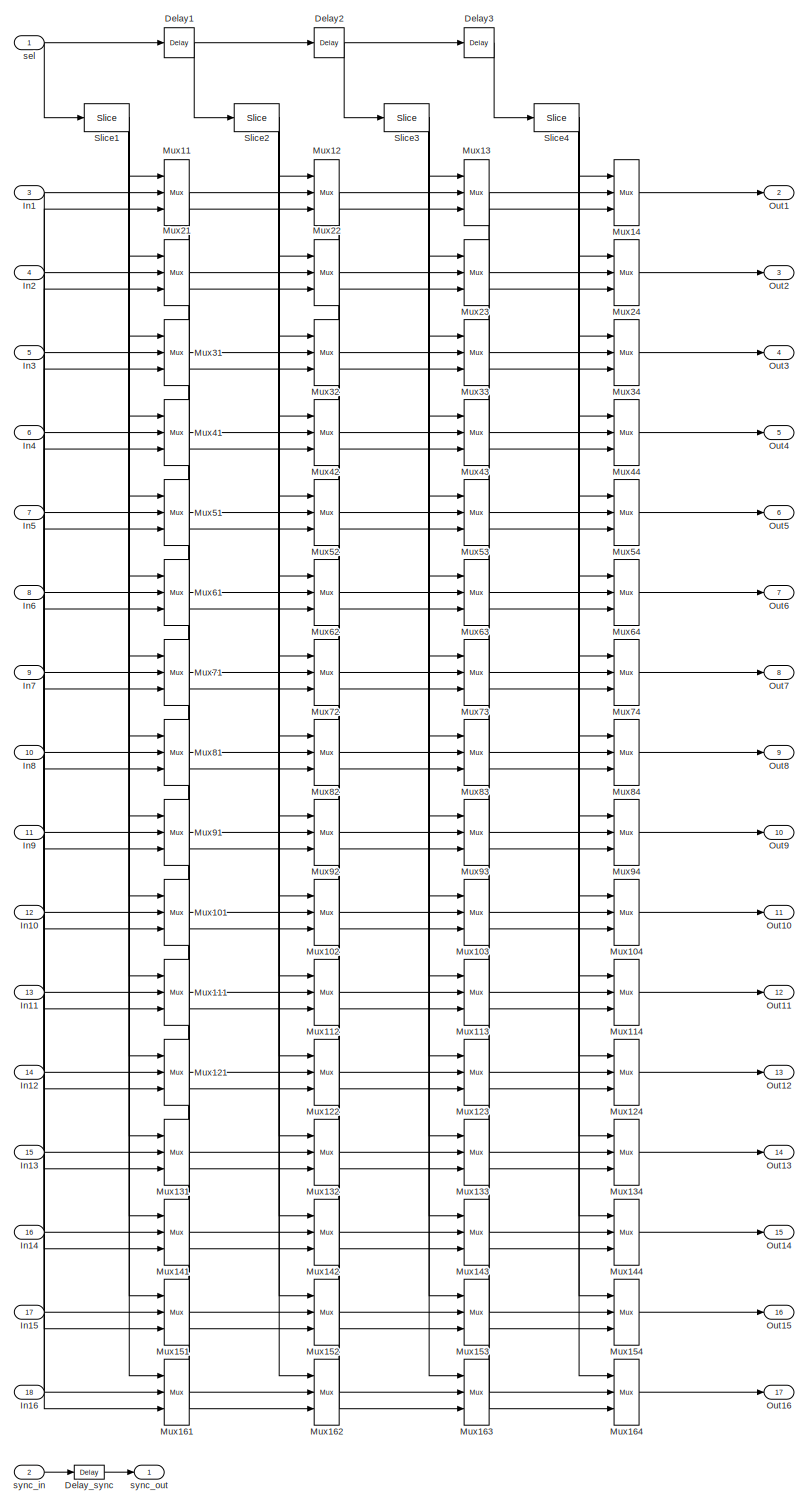
[diagram: delay_wideband_prog/barrel_switcher - part 1/1, most of the canvas]
BLOCK [SubSystem] delay_wideband_prog/barrel_switcher
  AncestorBlock = casper_library_reorder/barrel_switcher
  FunctionWithSeparateData = off
  MaskHideContents = off
  MinAlgLoopOccurrences = off
  Opaque = off
  Ports = [18, 17]
  PropExecContextOutsideSubsystem = off
  RTWSystemCode = Auto
  RequestExecContextInheritance = off
  SID = 162:248
  UserData = DataTag34
  UserDataPersistent = on
BLOCK [Reference] delay_wideband_prog/barrel_switcher/Delay1  REF=xbsIndex_r4/Delay
  Ports = [1, 1]
  SID = 162:248:101
  SourceBlock = xbsIndex_r4/Delay
  SourceType = Xilinx Delay Block
  block_type = delay
  dbl_ovrd = off
  en = off
  has_advanced_control = 0
  infoedit = Hardware notes: A delay line is a chain, each link of which is an SRL16 followed by a flip-flop.
  infoeditControl = Selection of Reset will increase slice count due to use of real FFs and instead of SRLs
  latency = 1
  reg_retiming = on
  rst = off
  sg_icon_stat = 30,30,1,1,white,blue,0,07b98262,right,,[ ],[ ]
  sg_mask_display = fprintf('','COMMENT: begin icon graphics');\npatch([0 30 30 0 0 ],[0 0 30 30 0 ],[0.77 0.82 0.91 ]);\nplot([0 30 30 0 0 ],[0 0 30 30 0 ]);\npatch([6.1 11.88 15.88 19.88 23.88 15.88 10.1 6.1 ],[19.44 19.44 23.44 19.44 23.44 23.44 23.44 19.44 ],[1 1 1 ]);\npatch([10.1 15.88 11.88 6.1 10.1 ],[15.44 15.44 19.44 19.44 15.44 ],[0.931 0.946 0.973 ]);\npatch([6.1 11.88 15.88 10.1 6.1 ],[11.44 11.44 15.44 ...<+310ch>  <repeated x3 — deduplicated; at blocks: Delay1, Delay2, Delay3>
  sggui_pos = -1,-1,-1,-1
  xl_area = [0,0,0,0,0,0,0]
  xl_use_area = off
BLOCK [Reference] delay_wideband_prog/barrel_switcher/Delay2  REF=xbsIndex_r4/Delay
  Ports = [1, 1]
  SID = 162:248:102
  SourceBlock = xbsIndex_r4/Delay
  SourceType = Xilinx Delay Block
  block_type = delay
  dbl_ovrd = off
  en = off
  has_advanced_control = 0
  infoedit = Hardware notes: A delay line is a chain, each link of which is an SRL16 followed by a flip-flop.
  infoeditControl = Selection of Reset will increase slice count due to use of real FFs and instead of SRLs
  latency = 1
  reg_retiming = on
  rst = off
  sg_icon_stat = 30,30,1,1,white,blue,0,07b98262,right,,[ ],[ ]
  sggui_pos = -1,-1,-1,-1
  xl_area = [0,0,0,0,0,0,0]
  xl_use_area = off
BLOCK [Reference] delay_wideband_prog/barrel_switcher/Delay3  REF=xbsIndex_r4/Delay
  Ports = [1, 1]
  SID = 162:248:103
  SourceBlock = xbsIndex_r4/Delay
  SourceType = Xilinx Delay Block
  block_type = delay
  dbl_ovrd = off
  en = off
  has_advanced_control = 0
  infoedit = Hardware notes: A delay line is a chain, each link of which is an SRL16 followed by a flip-flop.
  infoeditControl = Selection of Reset will increase slice count due to use of real FFs and instead of SRLs
  latency = 1
  reg_retiming = on
  rst = off
  sg_icon_stat = 30,30,1,1,white,blue,0,07b98262,right,,[ ],[ ]
  sggui_pos = -1,-1,-1,-1
  xl_area = [0,0,0,0,0,0,0]
  xl_use_area = off
BLOCK [Reference] delay_wideband_prog/barrel_switcher/Delay_sync  REF=xbsIndex_r4/Delay
  Ports = [1, 1]
  SID = 162:248:4
  SourceBlock = xbsIndex_r4/Delay
  SourceType = Xilinx Delay Block
  block_type = delay
  dbl_ovrd = off
  en = off
  has_advanced_control = 0
  infoedit = Hardware notes: A delay line is a chain, each link of which is an SRL16 followed by a flip-flop.
  infoeditControl = Selection of Reset will increase slice count due to use of real FFs and instead of SRLs
  latency = 4
  reg_retiming = off
  rst = off
  sg_icon_stat = 30,14,1,1,white,blue,0,d390c2d8,right,,[ ],[ ]
  sg_mask_display = fprintf('','COMMENT: begin icon graphics');\npatch([0 30 30 0 0 ],[0 0 14 14 0 ],[0.77 0.82 0.91 ]);\nplot([0 30 30 0 0 ],[0 0 14 14 0 ]);\npatch([10.55 13.44 15.44 17.44 19.44 15.44 12.55 10.55 ],[9.22 9.22 11.22 9.22 11.22 11.22 11.22 9.22 ],[1 1 1 ]);\npatch([12.55 15.44 13.44 10.55 12.55 ],[7.22 7.22 9.22 9.22 7.22 ],[0.931 0.946 0.973 ]);\npatch([10.55 13.44 15.44 12.55 10.55 ],[5.22 5.22 7.2...<+311ch>
  sggui_pos = 6,17,481,387
  xl_area = [0,0,0,0,0,0,0]
  xl_use_area = off
BLOCK [Inport] delay_wideband_prog/barrel_switcher/In1
  IconDisplay = Port number
  Port = 3
  SID = 162:248:5
BLOCK [Inport] delay_wideband_prog/barrel_switcher/In10
  IconDisplay = Port number
  Port = 12
  SID = 162:248:59
BLOCK [Inport] delay_wideband_prog/barrel_switcher/In11
  IconDisplay = Port number
  Port = 13
  SID = 162:248:65
BLOCK [Inport] delay_wideband_prog/barrel_switcher/In12
  IconDisplay = Port number
  Port = 14
  SID = 162:248:71
BLOCK [Inport] delay_wideband_prog/barrel_switcher/In13
  IconDisplay = Port number
  Port = 15
  SID = 162:248:77
BLOCK [Inport] delay_wideband_prog/barrel_switcher/In14
  IconDisplay = Port number
  Port = 16
  SID = 162:248:83
BLOCK [Inport] delay_wideband_prog/barrel_switcher/In15
  IconDisplay = Port number
  Port = 17
  SID = 162:248:89
BLOCK [Inport] delay_wideband_prog/barrel_switcher/In16
  IconDisplay = Port number
  Port = 18
  SID = 162:248:95
BLOCK [Inport] delay_wideband_prog/barrel_switcher/In2
  IconDisplay = Port number
  Port = 4
  SID = 162:248:11
BLOCK [Inport] delay_wideband_prog/barrel_switcher/In3
  IconDisplay = Port number
  Port = 5
  SID = 162:248:17
BLOCK [Inport] delay_wideband_prog/barrel_switcher/In4
  IconDisplay = Port number
  Port = 6
  SID = 162:248:23
BLOCK [Inport] delay_wideband_prog/barrel_switcher/In5
  IconDisplay = Port number
  Port = 7
  SID = 162:248:29
BLOCK [Inport] delay_wideband_prog/barrel_switcher/In6
  IconDisplay = Port number
  Port = 8
  SID = 162:248:35
BLOCK [Inport] delay_wideband_prog/barrel_switcher/In7
  IconDisplay = Port number
  Port = 9
  SID = 162:248:41
BLOCK [Inport] delay_wideband_prog/barrel_switcher/In8
  IconDisplay = Port number
  Port = 10
  SID = 162:248:47
BLOCK [Inport] delay_wideband_prog/barrel_switcher/In9
  IconDisplay = Port number
  Port = 11
  SID = 162:248:53
BLOCK [Reference] delay_wideband_prog/barrel_switcher/Mux101  REF=xbsIndex_r4/Mux
  Ports = [3, 1]
  SID = 162:248:61
  SourceBlock = xbsIndex_r4/Mux
  SourceType = Xilinx Bus Multiplexer Block
  arith_type = Unsigned
  bin_pt = 14
  block_type = mux
  dbl_ovrd = off
  en = off
  has_advanced_control = 0
  inputs = 2
  latency = 1
  n_bits = 16
  overflow = Wrap
  precision = Full
  quantization = Truncate
  sg_icon_stat = 25,66,3,1,white,blue,3,a150fb03,right,,[ ],[ ]
  sg_mask_display = fprintf('','COMMENT: begin icon graphics');\npatch([0 25 25 0 0 ],[0 9.42857 56.5714 66 0 ],[0.77 0.82 0.91 ]);\nplot([0 25 25 0 0 ],[0 9.42857 56.5714 66 0 ]);\npatch([5.325 9.66 12.66 15.66 18.66 12.66 8.325 5.325 ],[36.33 36.33 39.33 36.33 39.33 39.33 39.33 36.33 ],[1 1 1 ]);\npatch([8.325 12.66 9.66 5.325 8.325 ],[33.33 33.33 36.33 36.33 33.33 ],[0.931 0.946 0.973 ]);\npatch([5.325 9.66 12.66 ...<+489ch>  <repeated x64 — deduplicated; at blocks: Mux101, Mux102, Mux103, Mux104, Mux11, Mux111, Mux112, Mux113, Mux114, Mux12, Mux121, Mux122, Mux123, Mux124, Mux13, Mux131, +48 more>
  sggui_pos = -1,-1,-1,-1
  xl_area = [0,0,0,0,0,0,0]
  xl_use_area = off
BLOCK [Reference] delay_wideband_prog/barrel_switcher/Mux102  REF=xbsIndex_r4/Mux
  Ports = [3, 1]
  SID = 162:248:62
  SourceBlock = xbsIndex_r4/Mux
  SourceType = Xilinx Bus Multiplexer Block
  arith_type = Unsigned
  bin_pt = 14
  block_type = mux
  dbl_ovrd = off
  en = off
  has_advanced_control = 0
  inputs = 2
  latency = 1
  n_bits = 16
  overflow = Wrap
  precision = Full
  quantization = Truncate
  sg_icon_stat = 25,66,3,1,white,blue,3,a150fb03,right,,[ ],[ ]
  sggui_pos = -1,-1,-1,-1
  xl_area = [0,0,0,0,0,0,0]
  xl_use_area = off
BLOCK [Reference] delay_wideband_prog/barrel_switcher/Mux103  REF=xbsIndex_r4/Mux
  Ports = [3, 1]
  SID = 162:248:63
  SourceBlock = xbsIndex_r4/Mux
  SourceType = Xilinx Bus Multiplexer Block
  arith_type = Unsigned
  bin_pt = 14
  block_type = mux
  dbl_ovrd = off
  en = off
  has_advanced_control = 0
  inputs = 2
  latency = 1
  n_bits = 16
  overflow = Wrap
  precision = Full
  quantization = Truncate
  sg_icon_stat = 25,66,3,1,white,blue,3,a150fb03,right,,[ ],[ ]
  sggui_pos = -1,-1,-1,-1
  xl_area = [0,0,0,0,0,0,0]
  xl_use_area = off
BLOCK [Reference] delay_wideband_prog/barrel_switcher/Mux104  REF=xbsIndex_r4/Mux
  Ports = [3, 1]
  SID = 162:248:64
  SourceBlock = xbsIndex_r4/Mux
  SourceType = Xilinx Bus Multiplexer Block
  arith_type = Unsigned
  bin_pt = 14
  block_type = mux
  dbl_ovrd = off
  en = off
  has_advanced_control = 0
  inputs = 2
  latency = 1
  n_bits = 16
  overflow = Wrap
  precision = Full
  quantization = Truncate
  sg_icon_stat = 25,66,3,1,white,blue,3,a150fb03,right,,[ ],[ ]
  sggui_pos = -1,-1,-1,-1
  xl_area = [0,0,0,0,0,0,0]
  xl_use_area = off
BLOCK [Reference] delay_wideband_prog/barrel_switcher/Mux11  REF=xbsIndex_r4/Mux
  Ports = [3, 1]
  SID = 162:248:7
  SourceBlock = xbsIndex_r4/Mux
  SourceType = Xilinx Bus Multiplexer Block
  arith_type = Unsigned
  bin_pt = 14
  block_type = mux
  dbl_ovrd = off
  en = off
  has_advanced_control = 0
  inputs = 2
  latency = 1
  n_bits = 16
  overflow = Wrap
  precision = Full
  quantization = Truncate
  sg_icon_stat = 25,66,3,1,white,blue,3,a150fb03,right,,[ ],[ ]
  sggui_pos = -1,-1,-1,-1
  xl_area = [0,0,0,0,0,0,0]
  xl_use_area = off
BLOCK [Reference] delay_wideband_prog/barrel_switcher/Mux111  REF=xbsIndex_r4/Mux
  Ports = [3, 1]
  SID = 162:248:67
  SourceBlock = xbsIndex_r4/Mux
  SourceType = Xilinx Bus Multiplexer Block
  arith_type = Unsigned
  bin_pt = 14
  block_type = mux
  dbl_ovrd = off
  en = off
  has_advanced_control = 0
  inputs = 2
  latency = 1
  n_bits = 16
  overflow = Wrap
  precision = Full
  quantization = Truncate
  sg_icon_stat = 25,66,3,1,white,blue,3,a150fb03,right,,[ ],[ ]
  sggui_pos = -1,-1,-1,-1
  xl_area = [0,0,0,0,0,0,0]
  xl_use_area = off
BLOCK [Reference] delay_wideband_prog/barrel_switcher/Mux112  REF=xbsIndex_r4/Mux
  Ports = [3, 1]
  SID = 162:248:68
  SourceBlock = xbsIndex_r4/Mux
  SourceType = Xilinx Bus Multiplexer Block
  arith_type = Unsigned
  bin_pt = 14
  block_type = mux
  dbl_ovrd = off
  en = off
  has_advanced_control = 0
  inputs = 2
  latency = 1
  n_bits = 16
  overflow = Wrap
  precision = Full
  quantization = Truncate
  sg_icon_stat = 25,66,3,1,white,blue,3,a150fb03,right,,[ ],[ ]
  sggui_pos = -1,-1,-1,-1
  xl_area = [0,0,0,0,0,0,0]
  xl_use_area = off
BLOCK [Reference] delay_wideband_prog/barrel_switcher/Mux113  REF=xbsIndex_r4/Mux
  Ports = [3, 1]
  SID = 162:248:69
  SourceBlock = xbsIndex_r4/Mux
  SourceType = Xilinx Bus Multiplexer Block
  arith_type = Unsigned
  bin_pt = 14
  block_type = mux
  dbl_ovrd = off
  en = off
  has_advanced_control = 0
  inputs = 2
  latency = 1
  n_bits = 16
  overflow = Wrap
  precision = Full
  quantization = Truncate
  sg_icon_stat = 25,66,3,1,white,blue,3,a150fb03,right,,[ ],[ ]
  sggui_pos = -1,-1,-1,-1
  xl_area = [0,0,0,0,0,0,0]
  xl_use_area = off
BLOCK [Reference] delay_wideband_prog/barrel_switcher/Mux114  REF=xbsIndex_r4/Mux
  Ports = [3, 1]
  SID = 162:248:70
  SourceBlock = xbsIndex_r4/Mux
  SourceType = Xilinx Bus Multiplexer Block
  arith_type = Unsigned
  bin_pt = 14
  block_type = mux
  dbl_ovrd = off
  en = off
  has_advanced_control = 0
  inputs = 2
  latency = 1
  n_bits = 16
  overflow = Wrap
  precision = Full
  quantization = Truncate
  sg_icon_stat = 25,66,3,1,white,blue,3,a150fb03,right,,[ ],[ ]
  sggui_pos = -1,-1,-1,-1
  xl_area = [0,0,0,0,0,0,0]
  xl_use_area = off
BLOCK [Reference] delay_wideband_prog/barrel_switcher/Mux12  REF=xbsIndex_r4/Mux
  Ports = [3, 1]
  SID = 162:248:8
  SourceBlock = xbsIndex_r4/Mux
  SourceType = Xilinx Bus Multiplexer Block
  arith_type = Unsigned
  bin_pt = 14
  block_type = mux
  dbl_ovrd = off
  en = off
  has_advanced_control = 0
  inputs = 2
  latency = 1
  n_bits = 16
  overflow = Wrap
  precision = Full
  quantization = Truncate
  sg_icon_stat = 25,66,3,1,white,blue,3,a150fb03,right,,[ ],[ ]
  sggui_pos = -1,-1,-1,-1
  xl_area = [0,0,0,0,0,0,0]
  xl_use_area = off
BLOCK [Reference] delay_wideband_prog/barrel_switcher/Mux121  REF=xbsIndex_r4/Mux
  Ports = [3, 1]
  SID = 162:248:73
  SourceBlock = xbsIndex_r4/Mux
  SourceType = Xilinx Bus Multiplexer Block
  arith_type = Unsigned
  bin_pt = 14
  block_type = mux
  dbl_ovrd = off
  en = off
  has_advanced_control = 0
  inputs = 2
  latency = 1
  n_bits = 16
  overflow = Wrap
  precision = Full
  quantization = Truncate
  sg_icon_stat = 25,66,3,1,white,blue,3,a150fb03,right,,[ ],[ ]
  sggui_pos = -1,-1,-1,-1
  xl_area = [0,0,0,0,0,0,0]
  xl_use_area = off
BLOCK [Reference] delay_wideband_prog/barrel_switcher/Mux122  REF=xbsIndex_r4/Mux
  Ports = [3, 1]
  SID = 162:248:74
  SourceBlock = xbsIndex_r4/Mux
  SourceType = Xilinx Bus Multiplexer Block
  arith_type = Unsigned
  bin_pt = 14
  block_type = mux
  dbl_ovrd = off
  en = off
  has_advanced_control = 0
  inputs = 2
  latency = 1
  n_bits = 16
  overflow = Wrap
  precision = Full
  quantization = Truncate
  sg_icon_stat = 25,66,3,1,white,blue,3,a150fb03,right,,[ ],[ ]
  sggui_pos = -1,-1,-1,-1
  xl_area = [0,0,0,0,0,0,0]
  xl_use_area = off
BLOCK [Reference] delay_wideband_prog/barrel_switcher/Mux123  REF=xbsIndex_r4/Mux
  Ports = [3, 1]
  SID = 162:248:75
  SourceBlock = xbsIndex_r4/Mux
  SourceType = Xilinx Bus Multiplexer Block
  arith_type = Unsigned
  bin_pt = 14
  block_type = mux
  dbl_ovrd = off
  en = off
  has_advanced_control = 0
  inputs = 2
  latency = 1
  n_bits = 16
  overflow = Wrap
  precision = Full
  quantization = Truncate
  sg_icon_stat = 25,66,3,1,white,blue,3,a150fb03,right,,[ ],[ ]
  sggui_pos = -1,-1,-1,-1
  xl_area = [0,0,0,0,0,0,0]
  xl_use_area = off
BLOCK [Reference] delay_wideband_prog/barrel_switcher/Mux124  REF=xbsIndex_r4/Mux
  Ports = [3, 1]
  SID = 162:248:76
  SourceBlock = xbsIndex_r4/Mux
  SourceType = Xilinx Bus Multiplexer Block
  arith_type = Unsigned
  bin_pt = 14
  block_type = mux
  dbl_ovrd = off
  en = off
  has_advanced_control = 0
  inputs = 2
  latency = 1
  n_bits = 16
  overflow = Wrap
  precision = Full
  quantization = Truncate
  sg_icon_stat = 25,66,3,1,white,blue,3,a150fb03,right,,[ ],[ ]
  sggui_pos = -1,-1,-1,-1
  xl_area = [0,0,0,0,0,0,0]
  xl_use_area = off
BLOCK [Reference] delay_wideband_prog/barrel_switcher/Mux13  REF=xbsIndex_r4/Mux
  Ports = [3, 1]
  SID = 162:248:9
  SourceBlock = xbsIndex_r4/Mux
  SourceType = Xilinx Bus Multiplexer Block
  arith_type = Unsigned
  bin_pt = 14
  block_type = mux
  dbl_ovrd = off
  en = off
  has_advanced_control = 0
  inputs = 2
  latency = 1
  n_bits = 16
  overflow = Wrap
  precision = Full
  quantization = Truncate
  sg_icon_stat = 25,66,3,1,white,blue,3,a150fb03,right,,[ ],[ ]
  sggui_pos = -1,-1,-1,-1
  xl_area = [0,0,0,0,0,0,0]
  xl_use_area = off
BLOCK [Reference] delay_wideband_prog/barrel_switcher/Mux131  REF=xbsIndex_r4/Mux
  Ports = [3, 1]
  SID = 162:248:79
  SourceBlock = xbsIndex_r4/Mux
  SourceType = Xilinx Bus Multiplexer Block
  arith_type = Unsigned
  bin_pt = 14
  block_type = mux
  dbl_ovrd = off
  en = off
  has_advanced_control = 0
  inputs = 2
  latency = 1
  n_bits = 16
  overflow = Wrap
  precision = Full
  quantization = Truncate
  sg_icon_stat = 25,66,3,1,white,blue,3,a150fb03,right,,[ ],[ ]
  sggui_pos = -1,-1,-1,-1
  xl_area = [0,0,0,0,0,0,0]
  xl_use_area = off
BLOCK [Reference] delay_wideband_prog/barrel_switcher/Mux132  REF=xbsIndex_r4/Mux
  Ports = [3, 1]
  SID = 162:248:80
  SourceBlock = xbsIndex_r4/Mux
  SourceType = Xilinx Bus Multiplexer Block
  arith_type = Unsigned
  bin_pt = 14
  block_type = mux
  dbl_ovrd = off
  en = off
  has_advanced_control = 0
  inputs = 2
  latency = 1
  n_bits = 16
  overflow = Wrap
  precision = Full
  quantization = Truncate
  sg_icon_stat = 25,66,3,1,white,blue,3,a150fb03,right,,[ ],[ ]
  sggui_pos = -1,-1,-1,-1
  xl_area = [0,0,0,0,0,0,0]
  xl_use_area = off
BLOCK [Reference] delay_wideband_prog/barrel_switcher/Mux133  REF=xbsIndex_r4/Mux
  Ports = [3, 1]
  SID = 162:248:81
  SourceBlock = xbsIndex_r4/Mux
  SourceType = Xilinx Bus Multiplexer Block
  arith_type = Unsigned
  bin_pt = 14
  block_type = mux
  dbl_ovrd = off
  en = off
  has_advanced_control = 0
  inputs = 2
  latency = 1
  n_bits = 16
  overflow = Wrap
  precision = Full
  quantization = Truncate
  sg_icon_stat = 25,66,3,1,white,blue,3,a150fb03,right,,[ ],[ ]
  sggui_pos = -1,-1,-1,-1
  xl_area = [0,0,0,0,0,0,0]
  xl_use_area = off
BLOCK [Reference] delay_wideband_prog/barrel_switcher/Mux134  REF=xbsIndex_r4/Mux
  Ports = [3, 1]
  SID = 162:248:82
  SourceBlock = xbsIndex_r4/Mux
  SourceType = Xilinx Bus Multiplexer Block
  arith_type = Unsigned
  bin_pt = 14
  block_type = mux
  dbl_ovrd = off
  en = off
  has_advanced_control = 0
  inputs = 2
  latency = 1
  n_bits = 16
  overflow = Wrap
  precision = Full
  quantization = Truncate
  sg_icon_stat = 25,66,3,1,white,blue,3,a150fb03,right,,[ ],[ ]
  sggui_pos = -1,-1,-1,-1
  xl_area = [0,0,0,0,0,0,0]
  xl_use_area = off
BLOCK [Reference] delay_wideband_prog/barrel_switcher/Mux14  REF=xbsIndex_r4/Mux
  Ports = [3, 1]
  SID = 162:248:10
  SourceBlock = xbsIndex_r4/Mux
  SourceType = Xilinx Bus Multiplexer Block
  arith_type = Unsigned
  bin_pt = 14
  block_type = mux
  dbl_ovrd = off
  en = off
  has_advanced_control = 0
  inputs = 2
  latency = 1
  n_bits = 16
  overflow = Wrap
  precision = Full
  quantization = Truncate
  sg_icon_stat = 25,66,3,1,white,blue,3,a150fb03,right,,[ ],[ ]
  sggui_pos = -1,-1,-1,-1
  xl_area = [0,0,0,0,0,0,0]
  xl_use_area = off
BLOCK [Reference] delay_wideband_prog/barrel_switcher/Mux141  REF=xbsIndex_r4/Mux
  Ports = [3, 1]
  SID = 162:248:85
  SourceBlock = xbsIndex_r4/Mux
  SourceType = Xilinx Bus Multiplexer Block
  arith_type = Unsigned
  bin_pt = 14
  block_type = mux
  dbl_ovrd = off
  en = off
  has_advanced_control = 0
  inputs = 2
  latency = 1
  n_bits = 16
  overflow = Wrap
  precision = Full
  quantization = Truncate
  sg_icon_stat = 25,66,3,1,white,blue,3,a150fb03,right,,[ ],[ ]
  sggui_pos = -1,-1,-1,-1
  xl_area = [0,0,0,0,0,0,0]
  xl_use_area = off
BLOCK [Reference] delay_wideband_prog/barrel_switcher/Mux142  REF=xbsIndex_r4/Mux
  Ports = [3, 1]
  SID = 162:248:86
  SourceBlock = xbsIndex_r4/Mux
  SourceType = Xilinx Bus Multiplexer Block
  arith_type = Unsigned
  bin_pt = 14
  block_type = mux
  dbl_ovrd = off
  en = off
  has_advanced_control = 0
  inputs = 2
  latency = 1
  n_bits = 16
  overflow = Wrap
  precision = Full
  quantization = Truncate
  sg_icon_stat = 25,66,3,1,white,blue,3,a150fb03,right,,[ ],[ ]
  sggui_pos = -1,-1,-1,-1
  xl_area = [0,0,0,0,0,0,0]
  xl_use_area = off
BLOCK [Reference] delay_wideband_prog/barrel_switcher/Mux143  REF=xbsIndex_r4/Mux
  Ports = [3, 1]
  SID = 162:248:87
  SourceBlock = xbsIndex_r4/Mux
  SourceType = Xilinx Bus Multiplexer Block
  arith_type = Unsigned
  bin_pt = 14
  block_type = mux
  dbl_ovrd = off
  en = off
  has_advanced_control = 0
  inputs = 2
  latency = 1
  n_bits = 16
  overflow = Wrap
  precision = Full
  quantization = Truncate
  sg_icon_stat = 25,66,3,1,white,blue,3,a150fb03,right,,[ ],[ ]
  sggui_pos = -1,-1,-1,-1
  xl_area = [0,0,0,0,0,0,0]
  xl_use_area = off
BLOCK [Reference] delay_wideband_prog/barrel_switcher/Mux144  REF=xbsIndex_r4/Mux
  Ports = [3, 1]
  SID = 162:248:88
  SourceBlock = xbsIndex_r4/Mux
  SourceType = Xilinx Bus Multiplexer Block
  arith_type = Unsigned
  bin_pt = 14
  block_type = mux
  dbl_ovrd = off
  en = off
  has_advanced_control = 0
  inputs = 2
  latency = 1
  n_bits = 16
  overflow = Wrap
  precision = Full
  quantization = Truncate
  sg_icon_stat = 25,66,3,1,white,blue,3,a150fb03,right,,[ ],[ ]
  sggui_pos = -1,-1,-1,-1
  xl_area = [0,0,0,0,0,0,0]
  xl_use_area = off
BLOCK [Reference] delay_wideband_prog/barrel_switcher/Mux151  REF=xbsIndex_r4/Mux
  Ports = [3, 1]
  SID = 162:248:91
  SourceBlock = xbsIndex_r4/Mux
  SourceType = Xilinx Bus Multiplexer Block
  arith_type = Unsigned
  bin_pt = 14
  block_type = mux
  dbl_ovrd = off
  en = off
  has_advanced_control = 0
  inputs = 2
  latency = 1
  n_bits = 16
  overflow = Wrap
  precision = Full
  quantization = Truncate
  sg_icon_stat = 25,66,3,1,white,blue,3,a150fb03,right,,[ ],[ ]
  sggui_pos = -1,-1,-1,-1
  xl_area = [0,0,0,0,0,0,0]
  xl_use_area = off
BLOCK [Reference] delay_wideband_prog/barrel_switcher/Mux152  REF=xbsIndex_r4/Mux
  Ports = [3, 1]
  SID = 162:248:92
  SourceBlock = xbsIndex_r4/Mux
  SourceType = Xilinx Bus Multiplexer Block
  arith_type = Unsigned
  bin_pt = 14
  block_type = mux
  dbl_ovrd = off
  en = off
  has_advanced_control = 0
  inputs = 2
  latency = 1
  n_bits = 16
  overflow = Wrap
  precision = Full
  quantization = Truncate
  sg_icon_stat = 25,66,3,1,white,blue,3,a150fb03,right,,[ ],[ ]
  sggui_pos = -1,-1,-1,-1
  xl_area = [0,0,0,0,0,0,0]
  xl_use_area = off
BLOCK [Reference] delay_wideband_prog/barrel_switcher/Mux153  REF=xbsIndex_r4/Mux
  Ports = [3, 1]
  SID = 162:248:93
  SourceBlock = xbsIndex_r4/Mux
  SourceType = Xilinx Bus Multiplexer Block
  arith_type = Unsigned
  bin_pt = 14
  block_type = mux
  dbl_ovrd = off
  en = off
  has_advanced_control = 0
  inputs = 2
  latency = 1
  n_bits = 16
  overflow = Wrap
  precision = Full
  quantization = Truncate
  sg_icon_stat = 25,66,3,1,white,blue,3,a150fb03,right,,[ ],[ ]
  sggui_pos = -1,-1,-1,-1
  xl_area = [0,0,0,0,0,0,0]
  xl_use_area = off
BLOCK [Reference] delay_wideband_prog/barrel_switcher/Mux154  REF=xbsIndex_r4/Mux
  Ports = [3, 1]
  SID = 162:248:94
  SourceBlock = xbsIndex_r4/Mux
  SourceType = Xilinx Bus Multiplexer Block
  arith_type = Unsigned
  bin_pt = 14
  block_type = mux
  dbl_ovrd = off
  en = off
  has_advanced_control = 0
  inputs = 2
  latency = 1
  n_bits = 16
  overflow = Wrap
  precision = Full
  quantization = Truncate
  sg_icon_stat = 25,66,3,1,white,blue,3,a150fb03,right,,[ ],[ ]
  sggui_pos = -1,-1,-1,-1
  xl_area = [0,0,0,0,0,0,0]
  xl_use_area = off
BLOCK [Reference] delay_wideband_prog/barrel_switcher/Mux161  REF=xbsIndex_r4/Mux
  Ports = [3, 1]
  SID = 162:248:97
  SourceBlock = xbsIndex_r4/Mux
  SourceType = Xilinx Bus Multiplexer Block
  arith_type = Unsigned
  bin_pt = 14
  block_type = mux
  dbl_ovrd = off
  en = off
  has_advanced_control = 0
  inputs = 2
  latency = 1
  n_bits = 16
  overflow = Wrap
  precision = Full
  quantization = Truncate
  sg_icon_stat = 25,66,3,1,white,blue,3,a150fb03,right,,[ ],[ ]
  sggui_pos = -1,-1,-1,-1
  xl_area = [0,0,0,0,0,0,0]
  xl_use_area = off
BLOCK [Reference] delay_wideband_prog/barrel_switcher/Mux162  REF=xbsIndex_r4/Mux
  Ports = [3, 1]
  SID = 162:248:98
  SourceBlock = xbsIndex_r4/Mux
  SourceType = Xilinx Bus Multiplexer Block
  arith_type = Unsigned
  bin_pt = 14
  block_type = mux
  dbl_ovrd = off
  en = off
  has_advanced_control = 0
  inputs = 2
  latency = 1
  n_bits = 16
  overflow = Wrap
  precision = Full
  quantization = Truncate
  sg_icon_stat = 25,66,3,1,white,blue,3,a150fb03,right,,[ ],[ ]
  sggui_pos = -1,-1,-1,-1
  xl_area = [0,0,0,0,0,0,0]
  xl_use_area = off
BLOCK [Reference] delay_wideband_prog/barrel_switcher/Mux163  REF=xbsIndex_r4/Mux
  Ports = [3, 1]
  SID = 162:248:99
  SourceBlock = xbsIndex_r4/Mux
  SourceType = Xilinx Bus Multiplexer Block
  arith_type = Unsigned
  bin_pt = 14
  block_type = mux
  dbl_ovrd = off
  en = off
  has_advanced_control = 0
  inputs = 2
  latency = 1
  n_bits = 16
  overflow = Wrap
  precision = Full
  quantization = Truncate
  sg_icon_stat = 25,66,3,1,white,blue,3,a150fb03,right,,[ ],[ ]
  sggui_pos = -1,-1,-1,-1
  xl_area = [0,0,0,0,0,0,0]
  xl_use_area = off
BLOCK [Reference] delay_wideband_prog/barrel_switcher/Mux164  REF=xbsIndex_r4/Mux
  Ports = [3, 1]
  SID = 162:248:100
  SourceBlock = xbsIndex_r4/Mux
  SourceType = Xilinx Bus Multiplexer Block
  arith_type = Unsigned
  bin_pt = 14
  block_type = mux
  dbl_ovrd = off
  en = off
  has_advanced_control = 0
  inputs = 2
  latency = 1
  n_bits = 16
  overflow = Wrap
  precision = Full
  quantization = Truncate
  sg_icon_stat = 25,66,3,1,white,blue,3,a150fb03,right,,[ ],[ ]
  sggui_pos = -1,-1,-1,-1
  xl_area = [0,0,0,0,0,0,0]
  xl_use_area = off
BLOCK [Reference] delay_wideband_prog/barrel_switcher/Mux21  REF=xbsIndex_r4/Mux
  Ports = [3, 1]
  SID = 162:248:13
  SourceBlock = xbsIndex_r4/Mux
  SourceType = Xilinx Bus Multiplexer Block
  arith_type = Unsigned
  bin_pt = 14
  block_type = mux
  dbl_ovrd = off
  en = off
  has_advanced_control = 0
  inputs = 2
  latency = 1
  n_bits = 16
  overflow = Wrap
  precision = Full
  quantization = Truncate
  sg_icon_stat = 25,66,3,1,white,blue,3,a150fb03,right,,[ ],[ ]
  sggui_pos = -1,-1,-1,-1
  xl_area = [0,0,0,0,0,0,0]
  xl_use_area = off
BLOCK [Reference] delay_wideband_prog/barrel_switcher/Mux22  REF=xbsIndex_r4/Mux
  Ports = [3, 1]
  SID = 162:248:14
  SourceBlock = xbsIndex_r4/Mux
  SourceType = Xilinx Bus Multiplexer Block
  arith_type = Unsigned
  bin_pt = 14
  block_type = mux
  dbl_ovrd = off
  en = off
  has_advanced_control = 0
  inputs = 2
  latency = 1
  n_bits = 16
  overflow = Wrap
  precision = Full
  quantization = Truncate
  sg_icon_stat = 25,66,3,1,white,blue,3,a150fb03,right,,[ ],[ ]
  sggui_pos = -1,-1,-1,-1
  xl_area = [0,0,0,0,0,0,0]
  xl_use_area = off
BLOCK [Reference] delay_wideband_prog/barrel_switcher/Mux23  REF=xbsIndex_r4/Mux
  Ports = [3, 1]
  SID = 162:248:15
  SourceBlock = xbsIndex_r4/Mux
  SourceType = Xilinx Bus Multiplexer Block
  arith_type = Unsigned
  bin_pt = 14
  block_type = mux
  dbl_ovrd = off
  en = off
  has_advanced_control = 0
  inputs = 2
  latency = 1
  n_bits = 16
  overflow = Wrap
  precision = Full
  quantization = Truncate
  sg_icon_stat = 25,66,3,1,white,blue,3,a150fb03,right,,[ ],[ ]
  sggui_pos = -1,-1,-1,-1
  xl_area = [0,0,0,0,0,0,0]
  xl_use_area = off
BLOCK [Reference] delay_wideband_prog/barrel_switcher/Mux24  REF=xbsIndex_r4/Mux
  Ports = [3, 1]
  SID = 162:248:16
  SourceBlock = xbsIndex_r4/Mux
  SourceType = Xilinx Bus Multiplexer Block
  arith_type = Unsigned
  bin_pt = 14
  block_type = mux
  dbl_ovrd = off
  en = off
  has_advanced_control = 0
  inputs = 2
  latency = 1
  n_bits = 16
  overflow = Wrap
  precision = Full
  quantization = Truncate
  sg_icon_stat = 25,66,3,1,white,blue,3,a150fb03,right,,[ ],[ ]
  sggui_pos = -1,-1,-1,-1
  xl_area = [0,0,0,0,0,0,0]
  xl_use_area = off
BLOCK [Reference] delay_wideband_prog/barrel_switcher/Mux31  REF=xbsIndex_r4/Mux
  Ports = [3, 1]
  SID = 162:248:19
  SourceBlock = xbsIndex_r4/Mux
  SourceType = Xilinx Bus Multiplexer Block
  arith_type = Unsigned
  bin_pt = 14
  block_type = mux
  dbl_ovrd = off
  en = off
  has_advanced_control = 0
  inputs = 2
  latency = 1
  n_bits = 16
  overflow = Wrap
  precision = Full
  quantization = Truncate
  sg_icon_stat = 25,66,3,1,white,blue,3,a150fb03,right,,[ ],[ ]
  sggui_pos = -1,-1,-1,-1
  xl_area = [0,0,0,0,0,0,0]
  xl_use_area = off
BLOCK [Reference] delay_wideband_prog/barrel_switcher/Mux32  REF=xbsIndex_r4/Mux
  Ports = [3, 1]
  SID = 162:248:20
  SourceBlock = xbsIndex_r4/Mux
  SourceType = Xilinx Bus Multiplexer Block
  arith_type = Unsigned
  bin_pt = 14
  block_type = mux
  dbl_ovrd = off
  en = off
  has_advanced_control = 0
  inputs = 2
  latency = 1
  n_bits = 16
  overflow = Wrap
  precision = Full
  quantization = Truncate
  sg_icon_stat = 25,66,3,1,white,blue,3,a150fb03,right,,[ ],[ ]
  sggui_pos = -1,-1,-1,-1
  xl_area = [0,0,0,0,0,0,0]
  xl_use_area = off
BLOCK [Reference] delay_wideband_prog/barrel_switcher/Mux33  REF=xbsIndex_r4/Mux
  Ports = [3, 1]
  SID = 162:248:21
  SourceBlock = xbsIndex_r4/Mux
  SourceType = Xilinx Bus Multiplexer Block
  arith_type = Unsigned
  bin_pt = 14
  block_type = mux
  dbl_ovrd = off
  en = off
  has_advanced_control = 0
  inputs = 2
  latency = 1
  n_bits = 16
  overflow = Wrap
  precision = Full
  quantization = Truncate
  sg_icon_stat = 25,66,3,1,white,blue,3,a150fb03,right,,[ ],[ ]
  sggui_pos = -1,-1,-1,-1
  xl_area = [0,0,0,0,0,0,0]
  xl_use_area = off
BLOCK [Reference] delay_wideband_prog/barrel_switcher/Mux34  REF=xbsIndex_r4/Mux
  Ports = [3, 1]
  SID = 162:248:22
  SourceBlock = xbsIndex_r4/Mux
  SourceType = Xilinx Bus Multiplexer Block
  arith_type = Unsigned
  bin_pt = 14
  block_type = mux
  dbl_ovrd = off
  en = off
  has_advanced_control = 0
  inputs = 2
  latency = 1
  n_bits = 16
  overflow = Wrap
  precision = Full
  quantization = Truncate
  sg_icon_stat = 25,66,3,1,white,blue,3,a150fb03,right,,[ ],[ ]
  sggui_pos = -1,-1,-1,-1
  xl_area = [0,0,0,0,0,0,0]
  xl_use_area = off
BLOCK [Reference] delay_wideband_prog/barrel_switcher/Mux41  REF=xbsIndex_r4/Mux
  Ports = [3, 1]
  SID = 162:248:25
  SourceBlock = xbsIndex_r4/Mux
  SourceType = Xilinx Bus Multiplexer Block
  arith_type = Unsigned
  bin_pt = 14
  block_type = mux
  dbl_ovrd = off
  en = off
  has_advanced_control = 0
  inputs = 2
  latency = 1
  n_bits = 16
  overflow = Wrap
  precision = Full
  quantization = Truncate
  sg_icon_stat = 25,66,3,1,white,blue,3,a150fb03,right,,[ ],[ ]
  sggui_pos = -1,-1,-1,-1
  xl_area = [0,0,0,0,0,0,0]
  xl_use_area = off
BLOCK [Reference] delay_wideband_prog/barrel_switcher/Mux42  REF=xbsIndex_r4/Mux
  Ports = [3, 1]
  SID = 162:248:26
  SourceBlock = xbsIndex_r4/Mux
  SourceType = Xilinx Bus Multiplexer Block
  arith_type = Unsigned
  bin_pt = 14
  block_type = mux
  dbl_ovrd = off
  en = off
  has_advanced_control = 0
  inputs = 2
  latency = 1
  n_bits = 16
  overflow = Wrap
  precision = Full
  quantization = Truncate
  sg_icon_stat = 25,66,3,1,white,blue,3,a150fb03,right,,[ ],[ ]
  sggui_pos = -1,-1,-1,-1
  xl_area = [0,0,0,0,0,0,0]
  xl_use_area = off
BLOCK [Reference] delay_wideband_prog/barrel_switcher/Mux43  REF=xbsIndex_r4/Mux
  Ports = [3, 1]
  SID = 162:248:27
  SourceBlock = xbsIndex_r4/Mux
  SourceType = Xilinx Bus Multiplexer Block
  arith_type = Unsigned
  bin_pt = 14
  block_type = mux
  dbl_ovrd = off
  en = off
  has_advanced_control = 0
  inputs = 2
  latency = 1
  n_bits = 16
  overflow = Wrap
  precision = Full
  quantization = Truncate
  sg_icon_stat = 25,66,3,1,white,blue,3,a150fb03,right,,[ ],[ ]
  sggui_pos = -1,-1,-1,-1
  xl_area = [0,0,0,0,0,0,0]
  xl_use_area = off
BLOCK [Reference] delay_wideband_prog/barrel_switcher/Mux44  REF=xbsIndex_r4/Mux
  Ports = [3, 1]
  SID = 162:248:28
  SourceBlock = xbsIndex_r4/Mux
  SourceType = Xilinx Bus Multiplexer Block
  arith_type = Unsigned
  bin_pt = 14
  block_type = mux
  dbl_ovrd = off
  en = off
  has_advanced_control = 0
  inputs = 2
  latency = 1
  n_bits = 16
  overflow = Wrap
  precision = Full
  quantization = Truncate
  sg_icon_stat = 25,66,3,1,white,blue,3,a150fb03,right,,[ ],[ ]
  sggui_pos = -1,-1,-1,-1
  xl_area = [0,0,0,0,0,0,0]
  xl_use_area = off
BLOCK [Reference] delay_wideband_prog/barrel_switcher/Mux51  REF=xbsIndex_r4/Mux
  Ports = [3, 1]
  SID = 162:248:31
  SourceBlock = xbsIndex_r4/Mux
  SourceType = Xilinx Bus Multiplexer Block
  arith_type = Unsigned
  bin_pt = 14
  block_type = mux
  dbl_ovrd = off
  en = off
  has_advanced_control = 0
  inputs = 2
  latency = 1
  n_bits = 16
  overflow = Wrap
  precision = Full
  quantization = Truncate
  sg_icon_stat = 25,66,3,1,white,blue,3,a150fb03,right,,[ ],[ ]
  sggui_pos = -1,-1,-1,-1
  xl_area = [0,0,0,0,0,0,0]
  xl_use_area = off
BLOCK [Reference] delay_wideband_prog/barrel_switcher/Mux52  REF=xbsIndex_r4/Mux
  Ports = [3, 1]
  SID = 162:248:32
  SourceBlock = xbsIndex_r4/Mux
  SourceType = Xilinx Bus Multiplexer Block
  arith_type = Unsigned
  bin_pt = 14
  block_type = mux
  dbl_ovrd = off
  en = off
  has_advanced_control = 0
  inputs = 2
  latency = 1
  n_bits = 16
  overflow = Wrap
  precision = Full
  quantization = Truncate
  sg_icon_stat = 25,66,3,1,white,blue,3,a150fb03,right,,[ ],[ ]
  sggui_pos = -1,-1,-1,-1
  xl_area = [0,0,0,0,0,0,0]
  xl_use_area = off
BLOCK [Reference] delay_wideband_prog/barrel_switcher/Mux53  REF=xbsIndex_r4/Mux
  Ports = [3, 1]
  SID = 162:248:33
  SourceBlock = xbsIndex_r4/Mux
  SourceType = Xilinx Bus Multiplexer Block
  arith_type = Unsigned
  bin_pt = 14
  block_type = mux
  dbl_ovrd = off
  en = off
  has_advanced_control = 0
  inputs = 2
  latency = 1
  n_bits = 16
  overflow = Wrap
  precision = Full
  quantization = Truncate
  sg_icon_stat = 25,66,3,1,white,blue,3,a150fb03,right,,[ ],[ ]
  sggui_pos = -1,-1,-1,-1
  xl_area = [0,0,0,0,0,0,0]
  xl_use_area = off
BLOCK [Reference] delay_wideband_prog/barrel_switcher/Mux54  REF=xbsIndex_r4/Mux
  Ports = [3, 1]
  SID = 162:248:34
  SourceBlock = xbsIndex_r4/Mux
  SourceType = Xilinx Bus Multiplexer Block
  arith_type = Unsigned
  bin_pt = 14
  block_type = mux
  dbl_ovrd = off
  en = off
  has_advanced_control = 0
  inputs = 2
  latency = 1
  n_bits = 16
  overflow = Wrap
  precision = Full
  quantization = Truncate
  sg_icon_stat = 25,66,3,1,white,blue,3,a150fb03,right,,[ ],[ ]
  sggui_pos = -1,-1,-1,-1
  xl_area = [0,0,0,0,0,0,0]
  xl_use_area = off
BLOCK [Reference] delay_wideband_prog/barrel_switcher/Mux61  REF=xbsIndex_r4/Mux
  Ports = [3, 1]
  SID = 162:248:37
  SourceBlock = xbsIndex_r4/Mux
  SourceType = Xilinx Bus Multiplexer Block
  arith_type = Unsigned
  bin_pt = 14
  block_type = mux
  dbl_ovrd = off
  en = off
  has_advanced_control = 0
  inputs = 2
  latency = 1
  n_bits = 16
  overflow = Wrap
  precision = Full
  quantization = Truncate
  sg_icon_stat = 25,66,3,1,white,blue,3,a150fb03,right,,[ ],[ ]
  sggui_pos = -1,-1,-1,-1
  xl_area = [0,0,0,0,0,0,0]
  xl_use_area = off
BLOCK [Reference] delay_wideband_prog/barrel_switcher/Mux62  REF=xbsIndex_r4/Mux
  Ports = [3, 1]
  SID = 162:248:38
  SourceBlock = xbsIndex_r4/Mux
  SourceType = Xilinx Bus Multiplexer Block
  arith_type = Unsigned
  bin_pt = 14
  block_type = mux
  dbl_ovrd = off
  en = off
  has_advanced_control = 0
  inputs = 2
  latency = 1
  n_bits = 16
  overflow = Wrap
  precision = Full
  quantization = Truncate
  sg_icon_stat = 25,66,3,1,white,blue,3,a150fb03,right,,[ ],[ ]
  sggui_pos = -1,-1,-1,-1
  xl_area = [0,0,0,0,0,0,0]
  xl_use_area = off
BLOCK [Reference] delay_wideband_prog/barrel_switcher/Mux63  REF=xbsIndex_r4/Mux
  Ports = [3, 1]
  SID = 162:248:39
  SourceBlock = xbsIndex_r4/Mux
  SourceType = Xilinx Bus Multiplexer Block
  arith_type = Unsigned
  bin_pt = 14
  block_type = mux
  dbl_ovrd = off
  en = off
  has_advanced_control = 0
  inputs = 2
  latency = 1
  n_bits = 16
  overflow = Wrap
  precision = Full
  quantization = Truncate
  sg_icon_stat = 25,66,3,1,white,blue,3,a150fb03,right,,[ ],[ ]
  sggui_pos = -1,-1,-1,-1
  xl_area = [0,0,0,0,0,0,0]
  xl_use_area = off
BLOCK [Reference] delay_wideband_prog/barrel_switcher/Mux64  REF=xbsIndex_r4/Mux
  Ports = [3, 1]
  SID = 162:248:40
  SourceBlock = xbsIndex_r4/Mux
  SourceType = Xilinx Bus Multiplexer Block
  arith_type = Unsigned
  bin_pt = 14
  block_type = mux
  dbl_ovrd = off
  en = off
  has_advanced_control = 0
  inputs = 2
  latency = 1
  n_bits = 16
  overflow = Wrap
  precision = Full
  quantization = Truncate
  sg_icon_stat = 25,66,3,1,white,blue,3,a150fb03,right,,[ ],[ ]
  sggui_pos = -1,-1,-1,-1
  xl_area = [0,0,0,0,0,0,0]
  xl_use_area = off
BLOCK [Reference] delay_wideband_prog/barrel_switcher/Mux71  REF=xbsIndex_r4/Mux
  Ports = [3, 1]
  SID = 162:248:43
  SourceBlock = xbsIndex_r4/Mux
  SourceType = Xilinx Bus Multiplexer Block
  arith_type = Unsigned
  bin_pt = 14
  block_type = mux
  dbl_ovrd = off
  en = off
  has_advanced_control = 0
  inputs = 2
  latency = 1
  n_bits = 16
  overflow = Wrap
  precision = Full
  quantization = Truncate
  sg_icon_stat = 25,66,3,1,white,blue,3,a150fb03,right,,[ ],[ ]
  sggui_pos = -1,-1,-1,-1
  xl_area = [0,0,0,0,0,0,0]
  xl_use_area = off
BLOCK [Reference] delay_wideband_prog/barrel_switcher/Mux72  REF=xbsIndex_r4/Mux
  Ports = [3, 1]
  SID = 162:248:44
  SourceBlock = xbsIndex_r4/Mux
  SourceType = Xilinx Bus Multiplexer Block
  arith_type = Unsigned
  bin_pt = 14
  block_type = mux
  dbl_ovrd = off
  en = off
  has_advanced_control = 0
  inputs = 2
  latency = 1
  n_bits = 16
  overflow = Wrap
  precision = Full
  quantization = Truncate
  sg_icon_stat = 25,66,3,1,white,blue,3,a150fb03,right,,[ ],[ ]
  sggui_pos = -1,-1,-1,-1
  xl_area = [0,0,0,0,0,0,0]
  xl_use_area = off
BLOCK [Reference] delay_wideband_prog/barrel_switcher/Mux73  REF=xbsIndex_r4/Mux
  Ports = [3, 1]
  SID = 162:248:45
  SourceBlock = xbsIndex_r4/Mux
  SourceType = Xilinx Bus Multiplexer Block
  arith_type = Unsigned
  bin_pt = 14
  block_type = mux
  dbl_ovrd = off
  en = off
  has_advanced_control = 0
  inputs = 2
  latency = 1
  n_bits = 16
  overflow = Wrap
  precision = Full
  quantization = Truncate
  sg_icon_stat = 25,66,3,1,white,blue,3,a150fb03,right,,[ ],[ ]
  sggui_pos = -1,-1,-1,-1
  xl_area = [0,0,0,0,0,0,0]
  xl_use_area = off
BLOCK [Reference] delay_wideband_prog/barrel_switcher/Mux74  REF=xbsIndex_r4/Mux
  Ports = [3, 1]
  SID = 162:248:46
  SourceBlock = xbsIndex_r4/Mux
  SourceType = Xilinx Bus Multiplexer Block
  arith_type = Unsigned
  bin_pt = 14
  block_type = mux
  dbl_ovrd = off
  en = off
  has_advanced_control = 0
  inputs = 2
  latency = 1
  n_bits = 16
  overflow = Wrap
  precision = Full
  quantization = Truncate
  sg_icon_stat = 25,66,3,1,white,blue,3,a150fb03,right,,[ ],[ ]
  sggui_pos = -1,-1,-1,-1
  xl_area = [0,0,0,0,0,0,0]
  xl_use_area = off
BLOCK [Reference] delay_wideband_prog/barrel_switcher/Mux81  REF=xbsIndex_r4/Mux
  Ports = [3, 1]
  SID = 162:248:49
  SourceBlock = xbsIndex_r4/Mux
  SourceType = Xilinx Bus Multiplexer Block
  arith_type = Unsigned
  bin_pt = 14
  block_type = mux
  dbl_ovrd = off
  en = off
  has_advanced_control = 0
  inputs = 2
  latency = 1
  n_bits = 16
  overflow = Wrap
  precision = Full
  quantization = Truncate
  sg_icon_stat = 25,66,3,1,white,blue,3,a150fb03,right,,[ ],[ ]
  sggui_pos = -1,-1,-1,-1
  xl_area = [0,0,0,0,0,0,0]
  xl_use_area = off
BLOCK [Reference] delay_wideband_prog/barrel_switcher/Mux82  REF=xbsIndex_r4/Mux
  Ports = [3, 1]
  SID = 162:248:50
  SourceBlock = xbsIndex_r4/Mux
  SourceType = Xilinx Bus Multiplexer Block
  arith_type = Unsigned
  bin_pt = 14
  block_type = mux
  dbl_ovrd = off
  en = off
  has_advanced_control = 0
  inputs = 2
  latency = 1
  n_bits = 16
  overflow = Wrap
  precision = Full
  quantization = Truncate
  sg_icon_stat = 25,66,3,1,white,blue,3,a150fb03,right,,[ ],[ ]
  sggui_pos = -1,-1,-1,-1
  xl_area = [0,0,0,0,0,0,0]
  xl_use_area = off
BLOCK [Reference] delay_wideband_prog/barrel_switcher/Mux83  REF=xbsIndex_r4/Mux
  Ports = [3, 1]
  SID = 162:248:51
  SourceBlock = xbsIndex_r4/Mux
  SourceType = Xilinx Bus Multiplexer Block
  arith_type = Unsigned
  bin_pt = 14
  block_type = mux
  dbl_ovrd = off
  en = off
  has_advanced_control = 0
  inputs = 2
  latency = 1
  n_bits = 16
  overflow = Wrap
  precision = Full
  quantization = Truncate
  sg_icon_stat = 25,66,3,1,white,blue,3,a150fb03,right,,[ ],[ ]
  sggui_pos = -1,-1,-1,-1
  xl_area = [0,0,0,0,0,0,0]
  xl_use_area = off
BLOCK [Reference] delay_wideband_prog/barrel_switcher/Mux84  REF=xbsIndex_r4/Mux
  Ports = [3, 1]
  SID = 162:248:52
  SourceBlock = xbsIndex_r4/Mux
  SourceType = Xilinx Bus Multiplexer Block
  arith_type = Unsigned
  bin_pt = 14
  block_type = mux
  dbl_ovrd = off
  en = off
  has_advanced_control = 0
  inputs = 2
  latency = 1
  n_bits = 16
  overflow = Wrap
  precision = Full
  quantization = Truncate
  sg_icon_stat = 25,66,3,1,white,blue,3,a150fb03,right,,[ ],[ ]
  sggui_pos = -1,-1,-1,-1
  xl_area = [0,0,0,0,0,0,0]
  xl_use_area = off
BLOCK [Reference] delay_wideband_prog/barrel_switcher/Mux91  REF=xbsIndex_r4/Mux
  Ports = [3, 1]
  SID = 162:248:55
  SourceBlock = xbsIndex_r4/Mux
  SourceType = Xilinx Bus Multiplexer Block
  arith_type = Unsigned
  bin_pt = 14
  block_type = mux
  dbl_ovrd = off
  en = off
  has_advanced_control = 0
  inputs = 2
  latency = 1
  n_bits = 16
  overflow = Wrap
  precision = Full
  quantization = Truncate
  sg_icon_stat = 25,66,3,1,white,blue,3,a150fb03,right,,[ ],[ ]
  sggui_pos = -1,-1,-1,-1
  xl_area = [0,0,0,0,0,0,0]
  xl_use_area = off
BLOCK [Reference] delay_wideband_prog/barrel_switcher/Mux92  REF=xbsIndex_r4/Mux
  Ports = [3, 1]
  SID = 162:248:56
  SourceBlock = xbsIndex_r4/Mux
  SourceType = Xilinx Bus Multiplexer Block
  arith_type = Unsigned
  bin_pt = 14
  block_type = mux
  dbl_ovrd = off
  en = off
  has_advanced_control = 0
  inputs = 2
  latency = 1
  n_bits = 16
  overflow = Wrap
  precision = Full
  quantization = Truncate
  sg_icon_stat = 25,66,3,1,white,blue,3,a150fb03,right,,[ ],[ ]
  sggui_pos = -1,-1,-1,-1
  xl_area = [0,0,0,0,0,0,0]
  xl_use_area = off
BLOCK [Reference] delay_wideband_prog/barrel_switcher/Mux93  REF=xbsIndex_r4/Mux
  Ports = [3, 1]
  SID = 162:248:57
  SourceBlock = xbsIndex_r4/Mux
  SourceType = Xilinx Bus Multiplexer Block
  arith_type = Unsigned
  bin_pt = 14
  block_type = mux
  dbl_ovrd = off
  en = off
  has_advanced_control = 0
  inputs = 2
  latency = 1
  n_bits = 16
  overflow = Wrap
  precision = Full
  quantization = Truncate
  sg_icon_stat = 25,66,3,1,white,blue,3,a150fb03,right,,[ ],[ ]
  sggui_pos = -1,-1,-1,-1
  xl_area = [0,0,0,0,0,0,0]
  xl_use_area = off
BLOCK [Reference] delay_wideband_prog/barrel_switcher/Mux94  REF=xbsIndex_r4/Mux
  Ports = [3, 1]
  SID = 162:248:58
  SourceBlock = xbsIndex_r4/Mux
  SourceType = Xilinx Bus Multiplexer Block
  arith_type = Unsigned
  bin_pt = 14
  block_type = mux
  dbl_ovrd = off
  en = off
  has_advanced_control = 0
  inputs = 2
  latency = 1
  n_bits = 16
  overflow = Wrap
  precision = Full
  quantization = Truncate
  sg_icon_stat = 25,66,3,1,white,blue,3,a150fb03,right,,[ ],[ ]
  sggui_pos = -1,-1,-1,-1
  xl_area = [0,0,0,0,0,0,0]
  xl_use_area = off
BLOCK [Outport] delay_wideband_prog/barrel_switcher/Out1
  IconDisplay = Port number
  Port = 2
  SID = 162:248:6
BLOCK [Outport] delay_wideband_prog/barrel_switcher/Out10
  IconDisplay = Port number
  Port = 11
  SID = 162:248:60
BLOCK [Outport] delay_wideband_prog/barrel_switcher/Out11
  IconDisplay = Port number
  Port = 12
  SID = 162:248:66
BLOCK [Outport] delay_wideband_prog/barrel_switcher/Out12
  IconDisplay = Port number
  Port = 13
  SID = 162:248:72
BLOCK [Outport] delay_wideband_prog/barrel_switcher/Out13
  IconDisplay = Port number
  Port = 14
  SID = 162:248:78
BLOCK [Outport] delay_wideband_prog/barrel_switcher/Out14
  IconDisplay = Port number
  Port = 15
  SID = 162:248:84
BLOCK [Outport] delay_wideband_prog/barrel_switcher/Out15
  IconDisplay = Port number
  Port = 16
  SID = 162:248:90
BLOCK [Outport] delay_wideband_prog/barrel_switcher/Out16
  IconDisplay = Port number
  Port = 17
  SID = 162:248:96
BLOCK [Outport] delay_wideband_prog/barrel_switcher/Out2
  IconDisplay = Port number
  Port = 3
  SID = 162:248:12
BLOCK [Outport] delay_wideband_prog/barrel_switcher/Out3
  IconDisplay = Port number
  Port = 4
  SID = 162:248:18
BLOCK [Outport] delay_wideband_prog/barrel_switcher/Out4
  IconDisplay = Port number
  Port = 5
  SID = 162:248:24
BLOCK [Outport] delay_wideband_prog/barrel_switcher/Out5
  IconDisplay = Port number
  Port = 6
  SID = 162:248:30
BLOCK [Outport] delay_wideband_prog/barrel_switcher/Out6
  IconDisplay = Port number
  Port = 7
  SID = 162:248:36
BLOCK [Outport] delay_wideband_prog/barrel_switcher/Out7
  IconDisplay = Port number
  Port = 8
  SID = 162:248:42
BLOCK [Outport] delay_wideband_prog/barrel_switcher/Out8
  IconDisplay = Port number
  Port = 9
  SID = 162:248:48
BLOCK [Outport] delay_wideband_prog/barrel_switcher/Out9
  IconDisplay = Port number
  Port = 10
  SID = 162:248:54
BLOCK [Reference] delay_wideband_prog/barrel_switcher/Slice1  REF=xbsIndex_r4/Slice
  Ports = [1, 1]
  SID = 162:248:104
  SourceBlock = xbsIndex_r4/Slice
  SourceType = Xilinx Bit Slice Extractor Block
  base0 = LSB of Input
  base1 = MSB of Input
  bit0 = 0
  bit1 = -0
  block_type = slice
  boolean_output = off
  dbl_ovrd = off
  has_advanced_control = 0
  infoedit = Extracts a given range of bits from each input sample and presents it at the output.  The output type is ordinarily unsigned with binary point at zero, but can be Boolean when the slice is one bit wide.<br><br>Hardware notes: In hardware this block costs nothing.  <repeated x6 — deduplicated; at blocks: Slice1, Slice2, Slice3, Slice4, bram_rd_addrs, shift_sel>
  mode = Upper Bit Location + Width
  nbits = 1
  sg_icon_stat = 45,28,1,1,white,blue,0,1fd851a7,right,,[ ],[ ]
  sg_mask_display = fprintf('','COMMENT: begin icon graphics');\npatch([0 45 45 0 0 ],[0 0 28 28 0 ],[0.77 0.82 0.91 ]);\nplot([0 45 45 0 0 ],[0 0 28 28 0 ]);\npatch([13.1 18.88 22.88 26.88 30.88 22.88 17.1 13.1 ],[18.44 18.44 22.44 18.44 22.44 22.44 22.44 18.44 ],[1 1 1 ]);\npatch([17.1 22.88 18.88 13.1 17.1 ],[14.44 14.44 18.44 18.44 14.44 ],[0.931 0.946 0.973 ]);\npatch([13.1 18.88 22.88 17.1 13.1 ],[10.44 10.44 1...<+315ch>  <repeated x4 — deduplicated; at blocks: Slice1, Slice2, Slice3, Slice4>
  sggui_pos = -1,-1,-1,-1
BLOCK [Reference] delay_wideband_prog/barrel_switcher/Slice2  REF=xbsIndex_r4/Slice
  Ports = [1, 1]
  SID = 162:248:105
  SourceBlock = xbsIndex_r4/Slice
  SourceType = Xilinx Bit Slice Extractor Block
  base0 = LSB of Input
  base1 = MSB of Input
  bit0 = 0
  bit1 = -1
  block_type = slice
  boolean_output = off
  dbl_ovrd = off
  has_advanced_control = 0
  mode = Upper Bit Location + Width
  nbits = 1
  sg_icon_stat = 45,28,1,1,white,blue,0,1fd851a7,right,,[ ],[ ]
  sggui_pos = -1,-1,-1,-1
BLOCK [Reference] delay_wideband_prog/barrel_switcher/Slice3  REF=xbsIndex_r4/Slice
  Ports = [1, 1]
  SID = 162:248:106
  SourceBlock = xbsIndex_r4/Slice
  SourceType = Xilinx Bit Slice Extractor Block
  base0 = LSB of Input
  base1 = MSB of Input
  bit0 = 0
  bit1 = -2
  block_type = slice
  boolean_output = off
  dbl_ovrd = off
  has_advanced_control = 0
  mode = Upper Bit Location + Width
  nbits = 1
  sg_icon_stat = 45,28,1,1,white,blue,0,1fd851a7,right,,[ ],[ ]
  sggui_pos = -1,-1,-1,-1
BLOCK [Reference] delay_wideband_prog/barrel_switcher/Slice4  REF=xbsIndex_r4/Slice
  Ports = [1, 1]
  SID = 162:248:107
  SourceBlock = xbsIndex_r4/Slice
  SourceType = Xilinx Bit Slice Extractor Block
  base0 = LSB of Input
  base1 = MSB of Input
  bit0 = 0
  bit1 = -3
  block_type = slice
  boolean_output = off
  dbl_ovrd = off
  has_advanced_control = 0
  mode = Upper Bit Location + Width
  nbits = 1
  sg_icon_stat = 45,28,1,1,white,blue,0,1fd851a7,right,,[ ],[ ]
  sggui_pos = -1,-1,-1,-1
BLOCK [Inport] delay_wideband_prog/barrel_switcher/sel
  IconDisplay = Port number
  SID = 162:248:1
BLOCK [Inport] delay_wideband_prog/barrel_switcher/sync_in
  IconDisplay = Port number
  Port = 2
  SID = 162:248:2
BLOCK [Outport] delay_wideband_prog/barrel_switcher/sync_out
  IconDisplay = Port number
  SID = 162:248:3
BLOCK [Reference] delay_wideband_prog/bram_rd_addrs  REF=xbsIndex_r4/Slice
  Ports = [1, 1]
  SID = 162:247
  SourceBlock = xbsIndex_r4/Slice
  SourceType = Xilinx Bit Slice Extractor Block
  base0 = LSB of Input
  base1 = MSB of Input
  bit0 = 4
  bit1 = 0
  block_type = slice
  boolean_output = off
  dbl_ovrd = off
  has_advanced_control = 0
  mode = Lower Bit Location + Width
  nbits = 10
  sg_icon_stat = 30,26,1,1,white,blue,0,1fd851a7,right,,[ ],[ ]
  sg_mask_display = fprintf('','COMMENT: begin icon graphics');\npatch([0 30 30 0 0 ],[0 0 26 26 0 ],[0.77 0.82 0.91 ]);\nplot([0 30 30 0 0 ],[0 0 26 26 0 ]);\npatch([8.325 12.66 15.66 18.66 21.66 15.66 11.325 8.325 ],[16.33 16.33 19.33 16.33 19.33 19.33 19.33 16.33 ],[1 1 1 ]);\npatch([11.325 15.66 12.66 8.325 11.325 ],[13.33 13.33 16.33 16.33 13.33 ],[0.931 0.946 0.973 ]);\npatch([8.325 12.66 15.66 11.325 8.325 ],[...<+333ch>
  sggui_pos = -1,17,633,509
BLOCK [Inport] delay_wideband_prog/data_in0
  IconDisplay = Port number
  Port = 4
  SID = 162:267
BLOCK [Inport] delay_wideband_prog/data_in1
  IconDisplay = Port number
  Port = 5
  SID = 162:269
BLOCK [Inport] delay_wideband_prog/data_in10
  IconDisplay = Port number
  Port = 14
  SID = 162:323
BLOCK [Inport] delay_wideband_prog/data_in11
  IconDisplay = Port number
  Port = 15
  SID = 162:329
BLOCK [Inport] delay_wideband_prog/data_in12
  IconDisplay = Port number
  Port = 16
  SID = 162:335
BLOCK [Inport] delay_wideband_prog/data_in13
  IconDisplay = Port number
  Port = 17
  SID = 162:341
BLOCK [Inport] delay_wideband_prog/data_in14
  IconDisplay = Port number
  Port = 18
  SID = 162:347
BLOCK [Inport] delay_wideband_prog/data_in15
  IconDisplay = Port number
  Port = 19
  SID = 162:353
BLOCK [Inport] delay_wideband_prog/data_in2
  IconDisplay = Port number
  Port = 6
  SID = 162:275
BLOCK [Inport] delay_wideband_prog/data_in3
  IconDisplay = Port number
  Port = 7
  SID = 162:281
BLOCK [Inport] delay_wideband_prog/data_in4
  IconDisplay = Port number
  Port = 8
  SID = 162:287
BLOCK [Inport] delay_wideband_prog/data_in5
  IconDisplay = Port number
  Port = 9
  SID = 162:293
BLOCK [Inport] delay_wideband_prog/data_in6
  IconDisplay = Port number
  Port = 10
  SID = 162:299
BLOCK [Inport] delay_wideband_prog/data_in7
  IconDisplay = Port number
  Port = 11
  SID = 162:305
BLOCK [Inport] delay_wideband_prog/data_in8
  IconDisplay = Port number
  Port = 12
  SID = 162:311
BLOCK [Inport] delay_wideband_prog/data_in9
  IconDisplay = Port number
  Port = 13
  SID = 162:317
BLOCK [Outport] delay_wideband_prog/data_out0
  IconDisplay = Port number
  Port = 2
  SID = 162:251
BLOCK [Outport] delay_wideband_prog/data_out1
  IconDisplay = Port number
  Port = 3
  SID = 162:252
BLOCK [Outport] delay_wideband_prog/data_out10
  IconDisplay = Port number
  Port = 12
  SID = 162:261
BLOCK [Outport] delay_wideband_prog/data_out11
  IconDisplay = Port number
  Port = 13
  SID = 162:262
BLOCK [Outport] delay_wideband_prog/data_out12
  IconDisplay = Port number
  Port = 14
  SID = 162:263
BLOCK [Outport] delay_wideband_prog/data_out13
  IconDisplay = Port number
  Port = 15
  SID = 162:264
BLOCK [Outport] delay_wideband_prog/data_out14
  IconDisplay = Port number
  Port = 16
  SID = 162:265
BLOCK [Outport] delay_wideband_prog/data_out15
  IconDisplay = Port number
  Port = 17
  SID = 162:266
BLOCK [Outport] delay_wideband_prog/data_out2
  IconDisplay = Port number
  Port = 4
  SID = 162:253
BLOCK [Outport] delay_wideband_prog/data_out3
  IconDisplay = Port number
  Port = 5
  SID = 162:254
BLOCK [Outport] delay_wideband_prog/data_out4
  IconDisplay = Port number
  Port = 6
  SID = 162:255
BLOCK [Outport] delay_wideband_prog/data_out5
  IconDisplay = Port number
  Port = 7
  SID = 162:256
BLOCK [Outport] delay_wideband_prog/data_out6
  IconDisplay = Port number
  Port = 8
  SID = 162:257
BLOCK [Outport] delay_wideband_prog/data_out7
  IconDisplay = Port number
  Port = 9
  SID = 162:258
BLOCK [Outport] delay_wideband_prog/data_out8
  IconDisplay = Port number
  Port = 10
  SID = 162:259
BLOCK [Outport] delay_wideband_prog/data_out9
  IconDisplay = Port number
  Port = 11
  SID = 162:260
BLOCK [Inport] delay_wideband_prog/delay
  IconDisplay = Port number
  Port = 2
  SID = 162:244
BLOCK [SubSystem] delay_wideband_prog/delay_dp0
  AncestorBlock = casper_library_delays/delay_bram_prog_dp
  FunctionWithSeparateData = off
  MaskHideContents = off
  MinAlgLoopOccurrences = off
  Opaque = off
  Ports = [2, 1]
  PropExecContextOutsideSubsystem = off
  RTWSystemCode = Auto
  RequestExecContextInheritance = off
  SID = 162:268
  UserData = DataTag35
  UserDataPersistent = on
BLOCK [Reference] delay_wideband_prog/delay_dp0/AddSub  REF=xbsIndex_r4/AddSub
  Ports = [2, 1]
  SID = 162:268:244
  SourceBlock = xbsIndex_r4/AddSub
  SourceType = Xilinx Adder/Subtracter Block
  arith_type = Unsigned
  bin_pt = 0
  block_type = addsub
  dbl_ovrd = off
  en = off
  has_advanced_control = 0
  hw_selection = Fabric
  latency = 1
  mode = Subtraction
  n_bits = ram_bits
  overflow = Wrap
  pipelined = off
  precision = User Defined
  quantization = Truncate
  sg_icon_stat = 50,51,2,1,white,blue,0,8a00a986,right,,[ ],[ ]
  sg_mask_display = fprintf('','COMMENT: begin icon graphics');\npatch([0 50 50 0 0 ],[0 0 51 51 0 ],[0.77 0.82 0.91 ]);\nplot([0 50 50 0 0 ],[0 0 51 51 0 ]);\npatch([9.425 19.54 26.54 33.54 40.54 26.54 16.425 9.425 ],[32.77 32.77 39.77 32.77 39.77 39.77 39.77 32.77 ],[1 1 1 ]);\npatch([16.425 26.54 19.54 9.425 16.425 ],[25.77 25.77 32.77 32.77 25.77 ],[0.931 0.946 0.973 ]);\npatch([9.425 19.54 26.54 16.425 9.425 ],[...<+556ch>  <repeated x16 — deduplicated; at blocks: AddSub>
  sggui_pos = 13,24,464,373
  use_behavioral_HDL = on
  use_carryin = off
  use_carryout = off
  use_rpm = on
  xl_area = [0,0,0,0,0,0,0]
  xl_use_area = off
BLOCK [Reference] delay_wideband_prog/delay_dp0/Constant2  REF=xbsIndex_r4/Constant
  Ports = [0, 1]
  SID = 162:268:245
  SourceBlock = xbsIndex_r4/Constant
  SourceType = Xilinx Constant Block Block
  arith_type = Boolean
  bin_pt = 0
  block_type = constant
  carry = CIN
  const = 1
  dbl_ovrd = off
  dsp48_infoedit = The use of this block for DSP48 instructions is deprecated.  Please use the Opmode block.
  equ = P=C
  exp_width = 8
  explicit_period = on
  frac_width = 24
  gui_display_data_type = Fixed-point
  has_advanced_control = 0
  inp1 = P
  inp2 = PCIN>>17
  n_bits = 1
  opr = +
  opselect = C
  period = 1
  preci_type = Single
  sg_icon_stat = 15,18,0,1,white,blue,0,1c72b5be,right,,[ ],[ ]
  sggui_pos = -1,-1,-1,-1
BLOCK [Reference] delay_wideband_prog/delay_dp0/Constant4  REF=xbsIndex_r4/Constant
  Ports = [0, 1]
  SID = 162:268:246
  SourceBlock = xbsIndex_r4/Constant
  SourceType = Xilinx Constant Block Block
  arith_type = Boolean
  bin_pt = 0
  block_type = constant
  carry = CIN
  const = 0
  dbl_ovrd = off
  dsp48_infoedit = The use of this block for DSP48 instructions is deprecated.  Please use the Opmode block.
  equ = P=C
  exp_width = 8
  explicit_period = on
  frac_width = 24
  gui_display_data_type = Fixed-point
  has_advanced_control = 0
  inp1 = P
  inp2 = PCIN>>17
  n_bits = 1
  opr = +
  opselect = C
  period = 1
  preci_type = Single
  sg_icon_stat = 15,16,0,1,white,blue,0,bf4ddd8b,right,,[ ],[ ]
  sg_mask_display = fprintf('','COMMENT: begin icon graphics');\npatch([0 15 15 0 0 ],[0 0 16 16 0 ],[0.77 0.82 0.91 ]);\nplot([0 15 15 0 0 ],[0 0 16 16 0 ]);\npatch([2.55 5.44 7.44 9.44 11.44 7.44 4.55 2.55 ],[10.22 10.22 12.22 10.22 12.22 12.22 12.22 10.22 ],[1 1 1 ]);\npatch([4.55 7.44 5.44 2.55 4.55 ],[8.22 8.22 10.22 10.22 8.22 ],[0.931 0.946 0.973 ]);\npatch([2.55 5.44 7.44 4.55 2.55 ],[6.22 6.22 8.22 8.22 6.22...<+287ch>  <repeated x16 — deduplicated; at blocks: Constant4>
  sggui_pos = -1,-1,-1,-1
BLOCK [Reference] delay_wideband_prog/delay_dp0/Dual Port RAM  REF=xbsIndex_r4/Dual Port RAM
  Ports = [6, 2]
  SID = 162:268:247
  SourceBlock = xbsIndex_r4/Dual Port RAM
  SourceType = Xilinx Dual Port Random Access Memory Block
  block_type = dpram
  dbl_ovrd = off
  depth = 2^ram_bits
  distributed_mem = Block RAM
  en_a = off
  en_b = off
  has_advanced_control = 0
  initVector = 0
  init_a = 0
  init_b = 0
  latency = bram_latency
  optimize = Area
  rst_a = off
  rst_b = off
  sg_icon_stat = 70,93,6,2,white,blue,0,28af736d,right,,[ ],[ ]
  sg_mask_display = fprintf('','COMMENT: begin icon graphics');\npatch([0 70 70 0 0 ],[0 0 93 93 0 ],[0.77 0.82 0.91 ]);\nplot([0 70 70 0 0 ],[0 0 93 93 0 ]);\npatch([12.75 27.2 37.2 47.2 57.2 37.2 22.75 12.75 ],[57.1 57.1 67.1 57.1 67.1 67.1 67.1 57.1 ],[1 1 1 ]);\npatch([22.75 37.2 27.2 12.75 22.75 ],[47.1 47.1 57.1 57.1 47.1 ],[0.931 0.946 0.973 ]);\npatch([12.75 27.2 37.2 22.75 12.75 ],[37.1 37.1 47.1 47.1 37.1 ]...<+607ch>  <repeated x16 — deduplicated; at blocks: Dual Port RAM>
  sggui_pos = 6,24,512,451
  write_mode_A = Read After Write
  write_mode_B = Read Before Write
  xl_area = [0,0,0,0,0,0,0]
  xl_use_area = off
BLOCK [Terminator] delay_wideband_prog/delay_dp0/Terminator
  SID = 162:268:248
BLOCK [Inport] delay_wideband_prog/delay_dp0/delay
  IconDisplay = Port number
  Port = 2
  SID = 162:268:242
BLOCK [Inport] delay_wideband_prog/delay_dp0/din
  IconDisplay = Port number
  SID = 162:268:241
BLOCK [Outport] delay_wideband_prog/delay_dp0/dout
  IconDisplay = Port number
  SID = 162:268:249
BLOCK [Reference] delay_wideband_prog/delay_dp0/wr_addr  REF=xbsIndex_r4/Counter
  Ports = [0, 1]
  SID = 162:268:243
  SourceBlock = xbsIndex_r4/Counter
  SourceType = Xilinx Counter Block
  arith_type = Unsigned
  bin_pt = 0
  block_type = counter
  cnt_by_val = 1
  cnt_to = Inf
  cnt_type = Free Running
  dbl_ovrd = off
  en = off
  explicit_period = on
  has_advanced_control = 0
  implementation = Fabric
  infoedit = Hardware notes: Free running counters are the least expensive in hardware.  A count limited counter is implemented by combining a counter with a comparator.
  load_pin = off
  n_bits = ram_bits
  operation = Up
  period = 1
  rst = off
  sg_icon_stat = 35,34,0,1,white,blue,0,7ac47ef5,right,,[ ],[ ]
  sg_mask_display = fprintf('','COMMENT: begin icon graphics');\npatch([0 35 35 0 0 ],[0 0 34 34 0 ],[0.77 0.82 0.91 ]);\nplot([0 35 35 0 0 ],[0 0 34 34 0 ]);\npatch([8.1 13.88 17.88 21.88 25.88 17.88 12.1 8.1 ],[21.44 21.44 25.44 21.44 25.44 25.44 25.44 21.44 ],[1 1 1 ]);\npatch([12.1 17.88 13.88 8.1 12.1 ],[17.44 17.44 21.44 21.44 17.44 ],[0.931 0.946 0.973 ]);\npatch([8.1 13.88 17.88 12.1 8.1 ],[13.44 13.44 17.44 ...<+324ch>  <repeated x16 — deduplicated; at blocks: wr_addr>
  sggui_pos = -1,-1,-1,-1
  start_count = 0
  use_behavioral_HDL = on
  use_rpm = on
  xl_area = [0,0,0,0,0,0,0]
  xl_use_area = off
BLOCK [SubSystem] delay_wideband_prog/delay_dp1
  AncestorBlock = casper_library_delays/delay_bram_prog_dp
  FunctionWithSeparateData = off
  MaskHideContents = off
  MinAlgLoopOccurrences = off
  Opaque = off
  Ports = [2, 1]
  PropExecContextOutsideSubsystem = off
  RTWSystemCode = Auto
  RequestExecContextInheritance = off
  SID = 162:270
  UserData = DataTag36
  UserDataPersistent = on
BLOCK [Reference] delay_wideband_prog/delay_dp1/AddSub  REF=xbsIndex_r4/AddSub
  Ports = [2, 1]
  SID = 162:270:244
  SourceBlock = xbsIndex_r4/AddSub
  SourceType = Xilinx Adder/Subtracter Block
  arith_type = Unsigned
  bin_pt = 0
  block_type = addsub
  dbl_ovrd = off
  en = off
  has_advanced_control = 0
  hw_selection = Fabric
  latency = 1
  mode = Subtraction
  n_bits = ram_bits
  overflow = Wrap
  pipelined = off
  precision = User Defined
  quantization = Truncate
  sg_icon_stat = 50,51,2,1,white,blue,0,8a00a986,right,,[ ],[ ]
  sggui_pos = -1,-1,-1,-1
  use_behavioral_HDL = on
  use_carryin = off
  use_carryout = off
  use_rpm = on
  xl_area = [0,0,0,0,0,0,0]
  xl_use_area = off
BLOCK [Reference] delay_wideband_prog/delay_dp1/Constant2  REF=xbsIndex_r4/Constant
  Ports = [0, 1]
  SID = 162:270:245
  SourceBlock = xbsIndex_r4/Constant
  SourceType = Xilinx Constant Block Block
  arith_type = Boolean
  bin_pt = 0
  block_type = constant
  carry = CIN
  const = 1
  dbl_ovrd = off
  dsp48_infoedit = The use of this block for DSP48 instructions is deprecated.  Please use the Opmode block.
  equ = P=C
  exp_width = 8
  explicit_period = on
  frac_width = 24
  gui_display_data_type = Fixed-point
  has_advanced_control = 0
  inp1 = P
  inp2 = PCIN>>17
  n_bits = 1
  opr = +
  opselect = C
  period = 1
  preci_type = Single
  sg_icon_stat = 15,18,0,1,white,blue,0,1c72b5be,right,,[ ],[ ]
  sggui_pos = -1,-1,-1,-1
BLOCK [Reference] delay_wideband_prog/delay_dp1/Constant4  REF=xbsIndex_r4/Constant
  Ports = [0, 1]
  SID = 162:270:246
  SourceBlock = xbsIndex_r4/Constant
  SourceType = Xilinx Constant Block Block
  arith_type = Boolean
  bin_pt = 0
  block_type = constant
  carry = CIN
  const = 0
  dbl_ovrd = off
  dsp48_infoedit = The use of this block for DSP48 instructions is deprecated.  Please use the Opmode block.
  equ = P=C
  exp_width = 8
  explicit_period = on
  frac_width = 24
  gui_display_data_type = Fixed-point
  has_advanced_control = 0
  inp1 = P
  inp2 = PCIN>>17
  n_bits = 1
  opr = +
  opselect = C
  period = 1
  preci_type = Single
  sg_icon_stat = 15,16,0,1,white,blue,0,bf4ddd8b,right,,[ ],[ ]
  sggui_pos = -1,-1,-1,-1
BLOCK [Reference] delay_wideband_prog/delay_dp1/Dual Port RAM  REF=xbsIndex_r4/Dual Port RAM
  Ports = [6, 2]
  SID = 162:270:247
  SourceBlock = xbsIndex_r4/Dual Port RAM
  SourceType = Xilinx Dual Port Random Access Memory Block
  block_type = dpram
  dbl_ovrd = off
  depth = 2^ram_bits
  distributed_mem = Block RAM
  en_a = off
  en_b = off
  has_advanced_control = 0
  initVector = 0
  init_a = 0
  init_b = 0
  latency = bram_latency
  optimize = Area
  rst_a = off
  rst_b = off
  sg_icon_stat = 70,93,6,2,white,blue,0,28af736d,right,,[ ],[ ]
  sggui_pos = -1,-1,-1,-1
  write_mode_A = Read After Write
  write_mode_B = Read Before Write
  xl_area = [0,0,0,0,0,0,0]
  xl_use_area = off
BLOCK [Terminator] delay_wideband_prog/delay_dp1/Terminator
  SID = 162:270:248
BLOCK [Inport] delay_wideband_prog/delay_dp1/delay
  IconDisplay = Port number
  Port = 2
  SID = 162:270:242
BLOCK [Inport] delay_wideband_prog/delay_dp1/din
  IconDisplay = Port number
  SID = 162:270:241
BLOCK [Outport] delay_wideband_prog/delay_dp1/dout
  IconDisplay = Port number
  SID = 162:270:249
BLOCK [Reference] delay_wideband_prog/delay_dp1/wr_addr  REF=xbsIndex_r4/Counter
  Ports = [0, 1]
  SID = 162:270:243
  SourceBlock = xbsIndex_r4/Counter
  SourceType = Xilinx Counter Block
  arith_type = Unsigned
  bin_pt = 0
  block_type = counter
  cnt_by_val = 1
  cnt_to = Inf
  cnt_type = Free Running
  dbl_ovrd = off
  en = off
  explicit_period = on
  has_advanced_control = 0
  implementation = Fabric
  infoedit = Hardware notes: Free running counters are the least expensive in hardware.  A count limited counter is implemented by combining a counter with a comparator.
  load_pin = off
  n_bits = ram_bits
  operation = Up
  period = 1
  rst = off
  sg_icon_stat = 35,34,0,1,white,blue,0,7ac47ef5,right,,[ ],[ ]
  sggui_pos = -1,-1,-1,-1
  start_count = 0
  use_behavioral_HDL = on
  use_rpm = on
  xl_area = [0,0,0,0,0,0,0]
  xl_use_area = off
BLOCK [SubSystem] delay_wideband_prog/delay_dp10
  AncestorBlock = casper_library_delays/delay_bram_prog_dp
  FunctionWithSeparateData = off
  MaskHideContents = off
  MinAlgLoopOccurrences = off
  Opaque = off
  Ports = [2, 1]
  PropExecContextOutsideSubsystem = off
  RTWSystemCode = Auto
  RequestExecContextInheritance = off
  SID = 162:324
  UserData = DataTag37
  UserDataPersistent = on
BLOCK [Reference] delay_wideband_prog/delay_dp10/AddSub  REF=xbsIndex_r4/AddSub
  Ports = [2, 1]
  SID = 162:324:244
  SourceBlock = xbsIndex_r4/AddSub
  SourceType = Xilinx Adder/Subtracter Block
  arith_type = Unsigned
  bin_pt = 0
  block_type = addsub
  dbl_ovrd = off
  en = off
  has_advanced_control = 0
  hw_selection = Fabric
  latency = 1
  mode = Subtraction
  n_bits = ram_bits
  overflow = Wrap
  pipelined = off
  precision = User Defined
  quantization = Truncate
  sg_icon_stat = 50,51,2,1,white,blue,0,8a00a986,right,,[ ],[ ]
  sggui_pos = -1,-1,-1,-1
  use_behavioral_HDL = on
  use_carryin = off
  use_carryout = off
  use_rpm = on
  xl_area = [0,0,0,0,0,0,0]
  xl_use_area = off
BLOCK [Reference] delay_wideband_prog/delay_dp10/Constant2  REF=xbsIndex_r4/Constant
  Ports = [0, 1]
  SID = 162:324:245
  SourceBlock = xbsIndex_r4/Constant
  SourceType = Xilinx Constant Block Block
  arith_type = Boolean
  bin_pt = 0
  block_type = constant
  carry = CIN
  const = 1
  dbl_ovrd = off
  dsp48_infoedit = The use of this block for DSP48 instructions is deprecated.  Please use the Opmode block.
  equ = P=C
  exp_width = 8
  explicit_period = on
  frac_width = 24
  gui_display_data_type = Fixed-point
  has_advanced_control = 0
  inp1 = P
  inp2 = PCIN>>17
  n_bits = 1
  opr = +
  opselect = C
  period = 1
  preci_type = Single
  sg_icon_stat = 15,18,0,1,white,blue,0,1c72b5be,right,,[ ],[ ]
  sggui_pos = -1,-1,-1,-1
BLOCK [Reference] delay_wideband_prog/delay_dp10/Constant4  REF=xbsIndex_r4/Constant
  Ports = [0, 1]
  SID = 162:324:246
  SourceBlock = xbsIndex_r4/Constant
  SourceType = Xilinx Constant Block Block
  arith_type = Boolean
  bin_pt = 0
  block_type = constant
  carry = CIN
  const = 0
  dbl_ovrd = off
  dsp48_infoedit = The use of this block for DSP48 instructions is deprecated.  Please use the Opmode block.
  equ = P=C
  exp_width = 8
  explicit_period = on
  frac_width = 24
  gui_display_data_type = Fixed-point
  has_advanced_control = 0
  inp1 = P
  inp2 = PCIN>>17
  n_bits = 1
  opr = +
  opselect = C
  period = 1
  preci_type = Single
  sg_icon_stat = 15,16,0,1,white,blue,0,bf4ddd8b,right,,[ ],[ ]
  sggui_pos = -1,-1,-1,-1
BLOCK [Reference] delay_wideband_prog/delay_dp10/Dual Port RAM  REF=xbsIndex_r4/Dual Port RAM
  Ports = [6, 2]
  SID = 162:324:247
  SourceBlock = xbsIndex_r4/Dual Port RAM
  SourceType = Xilinx Dual Port Random Access Memory Block
  block_type = dpram
  dbl_ovrd = off
  depth = 2^ram_bits
  distributed_mem = Block RAM
  en_a = off
  en_b = off
  has_advanced_control = 0
  initVector = 0
  init_a = 0
  init_b = 0
  latency = bram_latency
  optimize = Area
  rst_a = off
  rst_b = off
  sg_icon_stat = 70,93,6,2,white,blue,0,28af736d,right,,[ ],[ ]
  sggui_pos = -1,-1,-1,-1
  write_mode_A = Read After Write
  write_mode_B = Read Before Write
  xl_area = [0,0,0,0,0,0,0]
  xl_use_area = off
BLOCK [Terminator] delay_wideband_prog/delay_dp10/Terminator
  SID = 162:324:248
BLOCK [Inport] delay_wideband_prog/delay_dp10/delay
  IconDisplay = Port number
  Port = 2
  SID = 162:324:242
BLOCK [Inport] delay_wideband_prog/delay_dp10/din
  IconDisplay = Port number
  SID = 162:324:241
BLOCK [Outport] delay_wideband_prog/delay_dp10/dout
  IconDisplay = Port number
  SID = 162:324:249
BLOCK [Reference] delay_wideband_prog/delay_dp10/wr_addr  REF=xbsIndex_r4/Counter
  Ports = [0, 1]
  SID = 162:324:243
  SourceBlock = xbsIndex_r4/Counter
  SourceType = Xilinx Counter Block
  arith_type = Unsigned
  bin_pt = 0
  block_type = counter
  cnt_by_val = 1
  cnt_to = Inf
  cnt_type = Free Running
  dbl_ovrd = off
  en = off
  explicit_period = on
  has_advanced_control = 0
  implementation = Fabric
  infoedit = Hardware notes: Free running counters are the least expensive in hardware.  A count limited counter is implemented by combining a counter with a comparator.
  load_pin = off
  n_bits = ram_bits
  operation = Up
  period = 1
  rst = off
  sg_icon_stat = 35,34,0,1,white,blue,0,7ac47ef5,right,,[ ],[ ]
  sggui_pos = -1,-1,-1,-1
  start_count = 0
  use_behavioral_HDL = on
  use_rpm = on
  xl_area = [0,0,0,0,0,0,0]
  xl_use_area = off
BLOCK [SubSystem] delay_wideband_prog/delay_dp11
  AncestorBlock = casper_library_delays/delay_bram_prog_dp
  FunctionWithSeparateData = off
  MaskHideContents = off
  MinAlgLoopOccurrences = off
  Opaque = off
  Ports = [2, 1]
  PropExecContextOutsideSubsystem = off
  RTWSystemCode = Auto
  RequestExecContextInheritance = off
  SID = 162:330
  UserData = DataTag38
  UserDataPersistent = on
BLOCK [Reference] delay_wideband_prog/delay_dp11/AddSub  REF=xbsIndex_r4/AddSub
  Ports = [2, 1]
  SID = 162:330:244
  SourceBlock = xbsIndex_r4/AddSub
  SourceType = Xilinx Adder/Subtracter Block
  arith_type = Unsigned
  bin_pt = 0
  block_type = addsub
  dbl_ovrd = off
  en = off
  has_advanced_control = 0
  hw_selection = Fabric
  latency = 1
  mode = Subtraction
  n_bits = ram_bits
  overflow = Wrap
  pipelined = off
  precision = User Defined
  quantization = Truncate
  sg_icon_stat = 50,51,2,1,white,blue,0,8a00a986,right,,[ ],[ ]
  sggui_pos = -1,-1,-1,-1
  use_behavioral_HDL = on
  use_carryin = off
  use_carryout = off
  use_rpm = on
  xl_area = [0,0,0,0,0,0,0]
  xl_use_area = off
BLOCK [Reference] delay_wideband_prog/delay_dp11/Constant2  REF=xbsIndex_r4/Constant
  Ports = [0, 1]
  SID = 162:330:245
  SourceBlock = xbsIndex_r4/Constant
  SourceType = Xilinx Constant Block Block
  arith_type = Boolean
  bin_pt = 0
  block_type = constant
  carry = CIN
  const = 1
  dbl_ovrd = off
  dsp48_infoedit = The use of this block for DSP48 instructions is deprecated.  Please use the Opmode block.
  equ = P=C
  exp_width = 8
  explicit_period = on
  frac_width = 24
  gui_display_data_type = Fixed-point
  has_advanced_control = 0
  inp1 = P
  inp2 = PCIN>>17
  n_bits = 1
  opr = +
  opselect = C
  period = 1
  preci_type = Single
  sg_icon_stat = 15,18,0,1,white,blue,0,1c72b5be,right,,[ ],[ ]
  sggui_pos = -1,-1,-1,-1
BLOCK [Reference] delay_wideband_prog/delay_dp11/Constant4  REF=xbsIndex_r4/Constant
  Ports = [0, 1]
  SID = 162:330:246
  SourceBlock = xbsIndex_r4/Constant
  SourceType = Xilinx Constant Block Block
  arith_type = Boolean
  bin_pt = 0
  block_type = constant
  carry = CIN
  const = 0
  dbl_ovrd = off
  dsp48_infoedit = The use of this block for DSP48 instructions is deprecated.  Please use the Opmode block.
  equ = P=C
  exp_width = 8
  explicit_period = on
  frac_width = 24
  gui_display_data_type = Fixed-point
  has_advanced_control = 0
  inp1 = P
  inp2 = PCIN>>17
  n_bits = 1
  opr = +
  opselect = C
  period = 1
  preci_type = Single
  sg_icon_stat = 15,16,0,1,white,blue,0,bf4ddd8b,right,,[ ],[ ]
  sggui_pos = -1,-1,-1,-1
BLOCK [Reference] delay_wideband_prog/delay_dp11/Dual Port RAM  REF=xbsIndex_r4/Dual Port RAM
  Ports = [6, 2]
  SID = 162:330:247
  SourceBlock = xbsIndex_r4/Dual Port RAM
  SourceType = Xilinx Dual Port Random Access Memory Block
  block_type = dpram
  dbl_ovrd = off
  depth = 2^ram_bits
  distributed_mem = Block RAM
  en_a = off
  en_b = off
  has_advanced_control = 0
  initVector = 0
  init_a = 0
  init_b = 0
  latency = bram_latency
  optimize = Area
  rst_a = off
  rst_b = off
  sg_icon_stat = 70,93,6,2,white,blue,0,28af736d,right,,[ ],[ ]
  sggui_pos = -1,-1,-1,-1
  write_mode_A = Read After Write
  write_mode_B = Read Before Write
  xl_area = [0,0,0,0,0,0,0]
  xl_use_area = off
BLOCK [Terminator] delay_wideband_prog/delay_dp11/Terminator
  SID = 162:330:248
BLOCK [Inport] delay_wideband_prog/delay_dp11/delay
  IconDisplay = Port number
  Port = 2
  SID = 162:330:242
BLOCK [Inport] delay_wideband_prog/delay_dp11/din
  IconDisplay = Port number
  SID = 162:330:241
BLOCK [Outport] delay_wideband_prog/delay_dp11/dout
  IconDisplay = Port number
  SID = 162:330:249
BLOCK [Reference] delay_wideband_prog/delay_dp11/wr_addr  REF=xbsIndex_r4/Counter
  Ports = [0, 1]
  SID = 162:330:243
  SourceBlock = xbsIndex_r4/Counter
  SourceType = Xilinx Counter Block
  arith_type = Unsigned
  bin_pt = 0
  block_type = counter
  cnt_by_val = 1
  cnt_to = Inf
  cnt_type = Free Running
  dbl_ovrd = off
  en = off
  explicit_period = on
  has_advanced_control = 0
  implementation = Fabric
  infoedit = Hardware notes: Free running counters are the least expensive in hardware.  A count limited counter is implemented by combining a counter with a comparator.
  load_pin = off
  n_bits = ram_bits
  operation = Up
  period = 1
  rst = off
  sg_icon_stat = 35,34,0,1,white,blue,0,7ac47ef5,right,,[ ],[ ]
  sggui_pos = -1,-1,-1,-1
  start_count = 0
  use_behavioral_HDL = on
  use_rpm = on
  xl_area = [0,0,0,0,0,0,0]
  xl_use_area = off
BLOCK [SubSystem] delay_wideband_prog/delay_dp12
  AncestorBlock = casper_library_delays/delay_bram_prog_dp
  FunctionWithSeparateData = off
  MaskHideContents = off
  MinAlgLoopOccurrences = off
  Opaque = off
  Ports = [2, 1]
  PropExecContextOutsideSubsystem = off
  RTWSystemCode = Auto
  RequestExecContextInheritance = off
  SID = 162:336
  UserData = DataTag39
  UserDataPersistent = on
BLOCK [Reference] delay_wideband_prog/delay_dp12/AddSub  REF=xbsIndex_r4/AddSub
  Ports = [2, 1]
  SID = 162:336:244
  SourceBlock = xbsIndex_r4/AddSub
  SourceType = Xilinx Adder/Subtracter Block
  arith_type = Unsigned
  bin_pt = 0
  block_type = addsub
  dbl_ovrd = off
  en = off
  has_advanced_control = 0
  hw_selection = Fabric
  latency = 1
  mode = Subtraction
  n_bits = ram_bits
  overflow = Wrap
  pipelined = off
  precision = User Defined
  quantization = Truncate
  sg_icon_stat = 50,51,2,1,white,blue,0,8a00a986,right,,[ ],[ ]
  sggui_pos = -1,-1,-1,-1
  use_behavioral_HDL = on
  use_carryin = off
  use_carryout = off
  use_rpm = on
  xl_area = [0,0,0,0,0,0,0]
  xl_use_area = off
BLOCK [Reference] delay_wideband_prog/delay_dp12/Constant2  REF=xbsIndex_r4/Constant
  Ports = [0, 1]
  SID = 162:336:245
  SourceBlock = xbsIndex_r4/Constant
  SourceType = Xilinx Constant Block Block
  arith_type = Boolean
  bin_pt = 0
  block_type = constant
  carry = CIN
  const = 1
  dbl_ovrd = off
  dsp48_infoedit = The use of this block for DSP48 instructions is deprecated.  Please use the Opmode block.
  equ = P=C
  exp_width = 8
  explicit_period = on
  frac_width = 24
  gui_display_data_type = Fixed-point
  has_advanced_control = 0
  inp1 = P
  inp2 = PCIN>>17
  n_bits = 1
  opr = +
  opselect = C
  period = 1
  preci_type = Single
  sg_icon_stat = 15,18,0,1,white,blue,0,1c72b5be,right,,[ ],[ ]
  sggui_pos = -1,-1,-1,-1
BLOCK [Reference] delay_wideband_prog/delay_dp12/Constant4  REF=xbsIndex_r4/Constant
  Ports = [0, 1]
  SID = 162:336:246
  SourceBlock = xbsIndex_r4/Constant
  SourceType = Xilinx Constant Block Block
  arith_type = Boolean
  bin_pt = 0
  block_type = constant
  carry = CIN
  const = 0
  dbl_ovrd = off
  dsp48_infoedit = The use of this block for DSP48 instructions is deprecated.  Please use the Opmode block.
  equ = P=C
  exp_width = 8
  explicit_period = on
  frac_width = 24
  gui_display_data_type = Fixed-point
  has_advanced_control = 0
  inp1 = P
  inp2 = PCIN>>17
  n_bits = 1
  opr = +
  opselect = C
  period = 1
  preci_type = Single
  sg_icon_stat = 15,16,0,1,white,blue,0,bf4ddd8b,right,,[ ],[ ]
  sggui_pos = -1,-1,-1,-1
BLOCK [Reference] delay_wideband_prog/delay_dp12/Dual Port RAM  REF=xbsIndex_r4/Dual Port RAM
  Ports = [6, 2]
  SID = 162:336:247
  SourceBlock = xbsIndex_r4/Dual Port RAM
  SourceType = Xilinx Dual Port Random Access Memory Block
  block_type = dpram
  dbl_ovrd = off
  depth = 2^ram_bits
  distributed_mem = Block RAM
  en_a = off
  en_b = off
  has_advanced_control = 0
  initVector = 0
  init_a = 0
  init_b = 0
  latency = bram_latency
  optimize = Area
  rst_a = off
  rst_b = off
  sg_icon_stat = 70,93,6,2,white,blue,0,28af736d,right,,[ ],[ ]
  sggui_pos = -1,-1,-1,-1
  write_mode_A = Read After Write
  write_mode_B = Read Before Write
  xl_area = [0,0,0,0,0,0,0]
  xl_use_area = off
BLOCK [Terminator] delay_wideband_prog/delay_dp12/Terminator
  SID = 162:336:248
BLOCK [Inport] delay_wideband_prog/delay_dp12/delay
  IconDisplay = Port number
  Port = 2
  SID = 162:336:242
BLOCK [Inport] delay_wideband_prog/delay_dp12/din
  IconDisplay = Port number
  SID = 162:336:241
BLOCK [Outport] delay_wideband_prog/delay_dp12/dout
  IconDisplay = Port number
  SID = 162:336:249
BLOCK [Reference] delay_wideband_prog/delay_dp12/wr_addr  REF=xbsIndex_r4/Counter
  Ports = [0, 1]
  SID = 162:336:243
  SourceBlock = xbsIndex_r4/Counter
  SourceType = Xilinx Counter Block
  arith_type = Unsigned
  bin_pt = 0
  block_type = counter
  cnt_by_val = 1
  cnt_to = Inf
  cnt_type = Free Running
  dbl_ovrd = off
  en = off
  explicit_period = on
  has_advanced_control = 0
  implementation = Fabric
  infoedit = Hardware notes: Free running counters are the least expensive in hardware.  A count limited counter is implemented by combining a counter with a comparator.
  load_pin = off
  n_bits = ram_bits
  operation = Up
  period = 1
  rst = off
  sg_icon_stat = 35,34,0,1,white,blue,0,7ac47ef5,right,,[ ],[ ]
  sggui_pos = -1,-1,-1,-1
  start_count = 0
  use_behavioral_HDL = on
  use_rpm = on
  xl_area = [0,0,0,0,0,0,0]
  xl_use_area = off
BLOCK [SubSystem] delay_wideband_prog/delay_dp13
  AncestorBlock = casper_library_delays/delay_bram_prog_dp
  FunctionWithSeparateData = off
  MaskHideContents = off
  MinAlgLoopOccurrences = off
  Opaque = off
  Ports = [2, 1]
  PropExecContextOutsideSubsystem = off
  RTWSystemCode = Auto
  RequestExecContextInheritance = off
  SID = 162:342
  UserData = DataTag40
  UserDataPersistent = on
BLOCK [Reference] delay_wideband_prog/delay_dp13/AddSub  REF=xbsIndex_r4/AddSub
  Ports = [2, 1]
  SID = 162:342:244
  SourceBlock = xbsIndex_r4/AddSub
  SourceType = Xilinx Adder/Subtracter Block
  arith_type = Unsigned
  bin_pt = 0
  block_type = addsub
  dbl_ovrd = off
  en = off
  has_advanced_control = 0
  hw_selection = Fabric
  latency = 1
  mode = Subtraction
  n_bits = ram_bits
  overflow = Wrap
  pipelined = off
  precision = User Defined
  quantization = Truncate
  sg_icon_stat = 50,51,2,1,white,blue,0,8a00a986,right,,[ ],[ ]
  sggui_pos = -1,-1,-1,-1
  use_behavioral_HDL = on
  use_carryin = off
  use_carryout = off
  use_rpm = on
  xl_area = [0,0,0,0,0,0,0]
  xl_use_area = off
BLOCK [Reference] delay_wideband_prog/delay_dp13/Constant2  REF=xbsIndex_r4/Constant
  Ports = [0, 1]
  SID = 162:342:245
  SourceBlock = xbsIndex_r4/Constant
  SourceType = Xilinx Constant Block Block
  arith_type = Boolean
  bin_pt = 0
  block_type = constant
  carry = CIN
  const = 1
  dbl_ovrd = off
  dsp48_infoedit = The use of this block for DSP48 instructions is deprecated.  Please use the Opmode block.
  equ = P=C
  exp_width = 8
  explicit_period = on
  frac_width = 24
  gui_display_data_type = Fixed-point
  has_advanced_control = 0
  inp1 = P
  inp2 = PCIN>>17
  n_bits = 1
  opr = +
  opselect = C
  period = 1
  preci_type = Single
  sg_icon_stat = 15,18,0,1,white,blue,0,1c72b5be,right,,[ ],[ ]
  sggui_pos = -1,-1,-1,-1
BLOCK [Reference] delay_wideband_prog/delay_dp13/Constant4  REF=xbsIndex_r4/Constant
  Ports = [0, 1]
  SID = 162:342:246
  SourceBlock = xbsIndex_r4/Constant
  SourceType = Xilinx Constant Block Block
  arith_type = Boolean
  bin_pt = 0
  block_type = constant
  carry = CIN
  const = 0
  dbl_ovrd = off
  dsp48_infoedit = The use of this block for DSP48 instructions is deprecated.  Please use the Opmode block.
  equ = P=C
  exp_width = 8
  explicit_period = on
  frac_width = 24
  gui_display_data_type = Fixed-point
  has_advanced_control = 0
  inp1 = P
  inp2 = PCIN>>17
  n_bits = 1
  opr = +
  opselect = C
  period = 1
  preci_type = Single
  sg_icon_stat = 15,16,0,1,white,blue,0,bf4ddd8b,right,,[ ],[ ]
  sggui_pos = -1,-1,-1,-1
BLOCK [Reference] delay_wideband_prog/delay_dp13/Dual Port RAM  REF=xbsIndex_r4/Dual Port RAM
  Ports = [6, 2]
  SID = 162:342:247
  SourceBlock = xbsIndex_r4/Dual Port RAM
  SourceType = Xilinx Dual Port Random Access Memory Block
  block_type = dpram
  dbl_ovrd = off
  depth = 2^ram_bits
  distributed_mem = Block RAM
  en_a = off
  en_b = off
  has_advanced_control = 0
  initVector = 0
  init_a = 0
  init_b = 0
  latency = bram_latency
  optimize = Area
  rst_a = off
  rst_b = off
  sg_icon_stat = 70,93,6,2,white,blue,0,28af736d,right,,[ ],[ ]
  sggui_pos = -1,-1,-1,-1
  write_mode_A = Read After Write
  write_mode_B = Read Before Write
  xl_area = [0,0,0,0,0,0,0]
  xl_use_area = off
BLOCK [Terminator] delay_wideband_prog/delay_dp13/Terminator
  SID = 162:342:248
BLOCK [Inport] delay_wideband_prog/delay_dp13/delay
  IconDisplay = Port number
  Port = 2
  SID = 162:342:242
BLOCK [Inport] delay_wideband_prog/delay_dp13/din
  IconDisplay = Port number
  SID = 162:342:241
BLOCK [Outport] delay_wideband_prog/delay_dp13/dout
  IconDisplay = Port number
  SID = 162:342:249
BLOCK [Reference] delay_wideband_prog/delay_dp13/wr_addr  REF=xbsIndex_r4/Counter
  Ports = [0, 1]
  SID = 162:342:243
  SourceBlock = xbsIndex_r4/Counter
  SourceType = Xilinx Counter Block
  arith_type = Unsigned
  bin_pt = 0
  block_type = counter
  cnt_by_val = 1
  cnt_to = Inf
  cnt_type = Free Running
  dbl_ovrd = off
  en = off
  explicit_period = on
  has_advanced_control = 0
  implementation = Fabric
  infoedit = Hardware notes: Free running counters are the least expensive in hardware.  A count limited counter is implemented by combining a counter with a comparator.
  load_pin = off
  n_bits = ram_bits
  operation = Up
  period = 1
  rst = off
  sg_icon_stat = 35,34,0,1,white,blue,0,7ac47ef5,right,,[ ],[ ]
  sggui_pos = -1,-1,-1,-1
  start_count = 0
  use_behavioral_HDL = on
  use_rpm = on
  xl_area = [0,0,0,0,0,0,0]
  xl_use_area = off
BLOCK [SubSystem] delay_wideband_prog/delay_dp14
  AncestorBlock = casper_library_delays/delay_bram_prog_dp
  FunctionWithSeparateData = off
  MaskHideContents = off
  MinAlgLoopOccurrences = off
  Opaque = off
  Ports = [2, 1]
  PropExecContextOutsideSubsystem = off
  RTWSystemCode = Auto
  RequestExecContextInheritance = off
  SID = 162:348
  UserData = DataTag41
  UserDataPersistent = on
BLOCK [Reference] delay_wideband_prog/delay_dp14/AddSub  REF=xbsIndex_r4/AddSub
  Ports = [2, 1]
  SID = 162:348:244
  SourceBlock = xbsIndex_r4/AddSub
  SourceType = Xilinx Adder/Subtracter Block
  arith_type = Unsigned
  bin_pt = 0
  block_type = addsub
  dbl_ovrd = off
  en = off
  has_advanced_control = 0
  hw_selection = Fabric
  latency = 1
  mode = Subtraction
  n_bits = ram_bits
  overflow = Wrap
  pipelined = off
  precision = User Defined
  quantization = Truncate
  sg_icon_stat = 50,51,2,1,white,blue,0,8a00a986,right,,[ ],[ ]
  sggui_pos = -1,-1,-1,-1
  use_behavioral_HDL = on
  use_carryin = off
  use_carryout = off
  use_rpm = on
  xl_area = [0,0,0,0,0,0,0]
  xl_use_area = off
BLOCK [Reference] delay_wideband_prog/delay_dp14/Constant2  REF=xbsIndex_r4/Constant
  Ports = [0, 1]
  SID = 162:348:245
  SourceBlock = xbsIndex_r4/Constant
  SourceType = Xilinx Constant Block Block
  arith_type = Boolean
  bin_pt = 0
  block_type = constant
  carry = CIN
  const = 1
  dbl_ovrd = off
  dsp48_infoedit = The use of this block for DSP48 instructions is deprecated.  Please use the Opmode block.
  equ = P=C
  exp_width = 8
  explicit_period = on
  frac_width = 24
  gui_display_data_type = Fixed-point
  has_advanced_control = 0
  inp1 = P
  inp2 = PCIN>>17
  n_bits = 1
  opr = +
  opselect = C
  period = 1
  preci_type = Single
  sg_icon_stat = 15,18,0,1,white,blue,0,1c72b5be,right,,[ ],[ ]
  sggui_pos = -1,-1,-1,-1
BLOCK [Reference] delay_wideband_prog/delay_dp14/Constant4  REF=xbsIndex_r4/Constant
  Ports = [0, 1]
  SID = 162:348:246
  SourceBlock = xbsIndex_r4/Constant
  SourceType = Xilinx Constant Block Block
  arith_type = Boolean
  bin_pt = 0
  block_type = constant
  carry = CIN
  const = 0
  dbl_ovrd = off
  dsp48_infoedit = The use of this block for DSP48 instructions is deprecated.  Please use the Opmode block.
  equ = P=C
  exp_width = 8
  explicit_period = on
  frac_width = 24
  gui_display_data_type = Fixed-point
  has_advanced_control = 0
  inp1 = P
  inp2 = PCIN>>17
  n_bits = 1
  opr = +
  opselect = C
  period = 1
  preci_type = Single
  sg_icon_stat = 15,16,0,1,white,blue,0,bf4ddd8b,right,,[ ],[ ]
  sggui_pos = -1,-1,-1,-1
BLOCK [Reference] delay_wideband_prog/delay_dp14/Dual Port RAM  REF=xbsIndex_r4/Dual Port RAM
  Ports = [6, 2]
  SID = 162:348:247
  SourceBlock = xbsIndex_r4/Dual Port RAM
  SourceType = Xilinx Dual Port Random Access Memory Block
  block_type = dpram
  dbl_ovrd = off
  depth = 2^ram_bits
  distributed_mem = Block RAM
  en_a = off
  en_b = off
  has_advanced_control = 0
  initVector = 0
  init_a = 0
  init_b = 0
  latency = bram_latency
  optimize = Area
  rst_a = off
  rst_b = off
  sg_icon_stat = 70,93,6,2,white,blue,0,28af736d,right,,[ ],[ ]
  sggui_pos = -1,-1,-1,-1
  write_mode_A = Read After Write
  write_mode_B = Read Before Write
  xl_area = [0,0,0,0,0,0,0]
  xl_use_area = off
BLOCK [Terminator] delay_wideband_prog/delay_dp14/Terminator
  SID = 162:348:248
BLOCK [Inport] delay_wideband_prog/delay_dp14/delay
  IconDisplay = Port number
  Port = 2
  SID = 162:348:242
BLOCK [Inport] delay_wideband_prog/delay_dp14/din
  IconDisplay = Port number
  SID = 162:348:241
BLOCK [Outport] delay_wideband_prog/delay_dp14/dout
  IconDisplay = Port number
  SID = 162:348:249
BLOCK [Reference] delay_wideband_prog/delay_dp14/wr_addr  REF=xbsIndex_r4/Counter
  Ports = [0, 1]
  SID = 162:348:243
  SourceBlock = xbsIndex_r4/Counter
  SourceType = Xilinx Counter Block
  arith_type = Unsigned
  bin_pt = 0
  block_type = counter
  cnt_by_val = 1
  cnt_to = Inf
  cnt_type = Free Running
  dbl_ovrd = off
  en = off
  explicit_period = on
  has_advanced_control = 0
  implementation = Fabric
  infoedit = Hardware notes: Free running counters are the least expensive in hardware.  A count limited counter is implemented by combining a counter with a comparator.
  load_pin = off
  n_bits = ram_bits
  operation = Up
  period = 1
  rst = off
  sg_icon_stat = 35,34,0,1,white,blue,0,7ac47ef5,right,,[ ],[ ]
  sggui_pos = -1,-1,-1,-1
  start_count = 0
  use_behavioral_HDL = on
  use_rpm = on
  xl_area = [0,0,0,0,0,0,0]
  xl_use_area = off
BLOCK [SubSystem] delay_wideband_prog/delay_dp15
  AncestorBlock = casper_library_delays/delay_bram_prog_dp
  FunctionWithSeparateData = off
  MaskHideContents = off
  MinAlgLoopOccurrences = off
  Opaque = off
  Ports = [2, 1]
  PropExecContextOutsideSubsystem = off
  RTWSystemCode = Auto
  RequestExecContextInheritance = off
  SID = 162:354
  UserData = DataTag42
  UserDataPersistent = on
BLOCK [Reference] delay_wideband_prog/delay_dp15/AddSub  REF=xbsIndex_r4/AddSub
  Ports = [2, 1]
  SID = 162:354:244
  SourceBlock = xbsIndex_r4/AddSub
  SourceType = Xilinx Adder/Subtracter Block
  arith_type = Unsigned
  bin_pt = 0
  block_type = addsub
  dbl_ovrd = off
  en = off
  has_advanced_control = 0
  hw_selection = Fabric
  latency = 1
  mode = Subtraction
  n_bits = ram_bits
  overflow = Wrap
  pipelined = off
  precision = User Defined
  quantization = Truncate
  sg_icon_stat = 50,51,2,1,white,blue,0,8a00a986,right,,[ ],[ ]
  sggui_pos = -1,-1,-1,-1
  use_behavioral_HDL = on
  use_carryin = off
  use_carryout = off
  use_rpm = on
  xl_area = [0,0,0,0,0,0,0]
  xl_use_area = off
BLOCK [Reference] delay_wideband_prog/delay_dp15/Constant2  REF=xbsIndex_r4/Constant
  Ports = [0, 1]
  SID = 162:354:245
  SourceBlock = xbsIndex_r4/Constant
  SourceType = Xilinx Constant Block Block
  arith_type = Boolean
  bin_pt = 0
  block_type = constant
  carry = CIN
  const = 1
  dbl_ovrd = off
  dsp48_infoedit = The use of this block for DSP48 instructions is deprecated.  Please use the Opmode block.
  equ = P=C
  exp_width = 8
  explicit_period = on
  frac_width = 24
  gui_display_data_type = Fixed-point
  has_advanced_control = 0
  inp1 = P
  inp2 = PCIN>>17
  n_bits = 1
  opr = +
  opselect = C
  period = 1
  preci_type = Single
  sg_icon_stat = 15,18,0,1,white,blue,0,1c72b5be,right,,[ ],[ ]
  sggui_pos = -1,-1,-1,-1
BLOCK [Reference] delay_wideband_prog/delay_dp15/Constant4  REF=xbsIndex_r4/Constant
  Ports = [0, 1]
  SID = 162:354:246
  SourceBlock = xbsIndex_r4/Constant
  SourceType = Xilinx Constant Block Block
  arith_type = Boolean
  bin_pt = 0
  block_type = constant
  carry = CIN
  const = 0
  dbl_ovrd = off
  dsp48_infoedit = The use of this block for DSP48 instructions is deprecated.  Please use the Opmode block.
  equ = P=C
  exp_width = 8
  explicit_period = on
  frac_width = 24
  gui_display_data_type = Fixed-point
  has_advanced_control = 0
  inp1 = P
  inp2 = PCIN>>17
  n_bits = 1
  opr = +
  opselect = C
  period = 1
  preci_type = Single
  sg_icon_stat = 15,16,0,1,white,blue,0,bf4ddd8b,right,,[ ],[ ]
  sggui_pos = -1,-1,-1,-1
BLOCK [Reference] delay_wideband_prog/delay_dp15/Dual Port RAM  REF=xbsIndex_r4/Dual Port RAM
  Ports = [6, 2]
  SID = 162:354:247
  SourceBlock = xbsIndex_r4/Dual Port RAM
  SourceType = Xilinx Dual Port Random Access Memory Block
  block_type = dpram
  dbl_ovrd = off
  depth = 2^ram_bits
  distributed_mem = Block RAM
  en_a = off
  en_b = off
  has_advanced_control = 0
  initVector = 0
  init_a = 0
  init_b = 0
  latency = bram_latency
  optimize = Area
  rst_a = off
  rst_b = off
  sg_icon_stat = 70,93,6,2,white,blue,0,28af736d,right,,[ ],[ ]
  sggui_pos = -1,-1,-1,-1
  write_mode_A = Read After Write
  write_mode_B = Read Before Write
  xl_area = [0,0,0,0,0,0,0]
  xl_use_area = off
BLOCK [Terminator] delay_wideband_prog/delay_dp15/Terminator
  SID = 162:354:248
BLOCK [Inport] delay_wideband_prog/delay_dp15/delay
  IconDisplay = Port number
  Port = 2
  SID = 162:354:242
BLOCK [Inport] delay_wideband_prog/delay_dp15/din
  IconDisplay = Port number
  SID = 162:354:241
BLOCK [Outport] delay_wideband_prog/delay_dp15/dout
  IconDisplay = Port number
  SID = 162:354:249
BLOCK [Reference] delay_wideband_prog/delay_dp15/wr_addr  REF=xbsIndex_r4/Counter
  Ports = [0, 1]
  SID = 162:354:243
  SourceBlock = xbsIndex_r4/Counter
  SourceType = Xilinx Counter Block
  arith_type = Unsigned
  bin_pt = 0
  block_type = counter
  cnt_by_val = 1
  cnt_to = Inf
  cnt_type = Free Running
  dbl_ovrd = off
  en = off
  explicit_period = on
  has_advanced_control = 0
  implementation = Fabric
  infoedit = Hardware notes: Free running counters are the least expensive in hardware.  A count limited counter is implemented by combining a counter with a comparator.
  load_pin = off
  n_bits = ram_bits
  operation = Up
  period = 1
  rst = off
  sg_icon_stat = 35,34,0,1,white,blue,0,7ac47ef5,right,,[ ],[ ]
  sggui_pos = -1,-1,-1,-1
  start_count = 0
  use_behavioral_HDL = on
  use_rpm = on
  xl_area = [0,0,0,0,0,0,0]
  xl_use_area = off
BLOCK [SubSystem] delay_wideband_prog/delay_dp2
  AncestorBlock = casper_library_delays/delay_bram_prog_dp
  FunctionWithSeparateData = off
  MaskHideContents = off
  MinAlgLoopOccurrences = off
  Opaque = off
  Ports = [2, 1]
  PropExecContextOutsideSubsystem = off
  RTWSystemCode = Auto
  RequestExecContextInheritance = off
  SID = 162:276
  UserData = DataTag43
  UserDataPersistent = on
BLOCK [Reference] delay_wideband_prog/delay_dp2/AddSub  REF=xbsIndex_r4/AddSub
  Ports = [2, 1]
  SID = 162:276:244
  SourceBlock = xbsIndex_r4/AddSub
  SourceType = Xilinx Adder/Subtracter Block
  arith_type = Unsigned
  bin_pt = 0
  block_type = addsub
  dbl_ovrd = off
  en = off
  has_advanced_control = 0
  hw_selection = Fabric
  latency = 1
  mode = Subtraction
  n_bits = ram_bits
  overflow = Wrap
  pipelined = off
  precision = User Defined
  quantization = Truncate
  sg_icon_stat = 50,51,2,1,white,blue,0,8a00a986,right,,[ ],[ ]
  sggui_pos = -1,-1,-1,-1
  use_behavioral_HDL = on
  use_carryin = off
  use_carryout = off
  use_rpm = on
  xl_area = [0,0,0,0,0,0,0]
  xl_use_area = off
BLOCK [Reference] delay_wideband_prog/delay_dp2/Constant2  REF=xbsIndex_r4/Constant
  Ports = [0, 1]
  SID = 162:276:245
  SourceBlock = xbsIndex_r4/Constant
  SourceType = Xilinx Constant Block Block
  arith_type = Boolean
  bin_pt = 0
  block_type = constant
  carry = CIN
  const = 1
  dbl_ovrd = off
  dsp48_infoedit = The use of this block for DSP48 instructions is deprecated.  Please use the Opmode block.
  equ = P=C
  exp_width = 8
  explicit_period = on
  frac_width = 24
  gui_display_data_type = Fixed-point
  has_advanced_control = 0
  inp1 = P
  inp2 = PCIN>>17
  n_bits = 1
  opr = +
  opselect = C
  period = 1
  preci_type = Single
  sg_icon_stat = 15,18,0,1,white,blue,0,1c72b5be,right,,[ ],[ ]
  sggui_pos = -1,-1,-1,-1
BLOCK [Reference] delay_wideband_prog/delay_dp2/Constant4  REF=xbsIndex_r4/Constant
  Ports = [0, 1]
  SID = 162:276:246
  SourceBlock = xbsIndex_r4/Constant
  SourceType = Xilinx Constant Block Block
  arith_type = Boolean
  bin_pt = 0
  block_type = constant
  carry = CIN
  const = 0
  dbl_ovrd = off
  dsp48_infoedit = The use of this block for DSP48 instructions is deprecated.  Please use the Opmode block.
  equ = P=C
  exp_width = 8
  explicit_period = on
  frac_width = 24
  gui_display_data_type = Fixed-point
  has_advanced_control = 0
  inp1 = P
  inp2 = PCIN>>17
  n_bits = 1
  opr = +
  opselect = C
  period = 1
  preci_type = Single
  sg_icon_stat = 15,16,0,1,white,blue,0,bf4ddd8b,right,,[ ],[ ]
  sggui_pos = -1,-1,-1,-1
BLOCK [Reference] delay_wideband_prog/delay_dp2/Dual Port RAM  REF=xbsIndex_r4/Dual Port RAM
  Ports = [6, 2]
  SID = 162:276:247
  SourceBlock = xbsIndex_r4/Dual Port RAM
  SourceType = Xilinx Dual Port Random Access Memory Block
  block_type = dpram
  dbl_ovrd = off
  depth = 2^ram_bits
  distributed_mem = Block RAM
  en_a = off
  en_b = off
  has_advanced_control = 0
  initVector = 0
  init_a = 0
  init_b = 0
  latency = bram_latency
  optimize = Area
  rst_a = off
  rst_b = off
  sg_icon_stat = 70,93,6,2,white,blue,0,28af736d,right,,[ ],[ ]
  sggui_pos = -1,-1,-1,-1
  write_mode_A = Read After Write
  write_mode_B = Read Before Write
  xl_area = [0,0,0,0,0,0,0]
  xl_use_area = off
BLOCK [Terminator] delay_wideband_prog/delay_dp2/Terminator
  SID = 162:276:248
BLOCK [Inport] delay_wideband_prog/delay_dp2/delay
  IconDisplay = Port number
  Port = 2
  SID = 162:276:242
BLOCK [Inport] delay_wideband_prog/delay_dp2/din
  IconDisplay = Port number
  SID = 162:276:241
BLOCK [Outport] delay_wideband_prog/delay_dp2/dout
  IconDisplay = Port number
  SID = 162:276:249
BLOCK [Reference] delay_wideband_prog/delay_dp2/wr_addr  REF=xbsIndex_r4/Counter
  Ports = [0, 1]
  SID = 162:276:243
  SourceBlock = xbsIndex_r4/Counter
  SourceType = Xilinx Counter Block
  arith_type = Unsigned
  bin_pt = 0
  block_type = counter
  cnt_by_val = 1
  cnt_to = Inf
  cnt_type = Free Running
  dbl_ovrd = off
  en = off
  explicit_period = on
  has_advanced_control = 0
  implementation = Fabric
  infoedit = Hardware notes: Free running counters are the least expensive in hardware.  A count limited counter is implemented by combining a counter with a comparator.
  load_pin = off
  n_bits = ram_bits
  operation = Up
  period = 1
  rst = off
  sg_icon_stat = 35,34,0,1,white,blue,0,7ac47ef5,right,,[ ],[ ]
  sggui_pos = -1,-1,-1,-1
  start_count = 0
  use_behavioral_HDL = on
  use_rpm = on
  xl_area = [0,0,0,0,0,0,0]
  xl_use_area = off
BLOCK [SubSystem] delay_wideband_prog/delay_dp3
  AncestorBlock = casper_library_delays/delay_bram_prog_dp
  FunctionWithSeparateData = off
  MaskHideContents = off
  MinAlgLoopOccurrences = off
  Opaque = off
  Ports = [2, 1]
  PropExecContextOutsideSubsystem = off
  RTWSystemCode = Auto
  RequestExecContextInheritance = off
  SID = 162:282
  UserData = DataTag44
  UserDataPersistent = on
BLOCK [Reference] delay_wideband_prog/delay_dp3/AddSub  REF=xbsIndex_r4/AddSub
  Ports = [2, 1]
  SID = 162:282:244
  SourceBlock = xbsIndex_r4/AddSub
  SourceType = Xilinx Adder/Subtracter Block
  arith_type = Unsigned
  bin_pt = 0
  block_type = addsub
  dbl_ovrd = off
  en = off
  has_advanced_control = 0
  hw_selection = Fabric
  latency = 1
  mode = Subtraction
  n_bits = ram_bits
  overflow = Wrap
  pipelined = off
  precision = User Defined
  quantization = Truncate
  sg_icon_stat = 50,51,2,1,white,blue,0,8a00a986,right,,[ ],[ ]
  sggui_pos = -1,-1,-1,-1
  use_behavioral_HDL = on
  use_carryin = off
  use_carryout = off
  use_rpm = on
  xl_area = [0,0,0,0,0,0,0]
  xl_use_area = off
BLOCK [Reference] delay_wideband_prog/delay_dp3/Constant2  REF=xbsIndex_r4/Constant
  Ports = [0, 1]
  SID = 162:282:245
  SourceBlock = xbsIndex_r4/Constant
  SourceType = Xilinx Constant Block Block
  arith_type = Boolean
  bin_pt = 0
  block_type = constant
  carry = CIN
  const = 1
  dbl_ovrd = off
  dsp48_infoedit = The use of this block for DSP48 instructions is deprecated.  Please use the Opmode block.
  equ = P=C
  exp_width = 8
  explicit_period = on
  frac_width = 24
  gui_display_data_type = Fixed-point
  has_advanced_control = 0
  inp1 = P
  inp2 = PCIN>>17
  n_bits = 1
  opr = +
  opselect = C
  period = 1
  preci_type = Single
  sg_icon_stat = 15,18,0,1,white,blue,0,1c72b5be,right,,[ ],[ ]
  sggui_pos = -1,-1,-1,-1
BLOCK [Reference] delay_wideband_prog/delay_dp3/Constant4  REF=xbsIndex_r4/Constant
  Ports = [0, 1]
  SID = 162:282:246
  SourceBlock = xbsIndex_r4/Constant
  SourceType = Xilinx Constant Block Block
  arith_type = Boolean
  bin_pt = 0
  block_type = constant
  carry = CIN
  const = 0
  dbl_ovrd = off
  dsp48_infoedit = The use of this block for DSP48 instructions is deprecated.  Please use the Opmode block.
  equ = P=C
  exp_width = 8
  explicit_period = on
  frac_width = 24
  gui_display_data_type = Fixed-point
  has_advanced_control = 0
  inp1 = P
  inp2 = PCIN>>17
  n_bits = 1
  opr = +
  opselect = C
  period = 1
  preci_type = Single
  sg_icon_stat = 15,16,0,1,white,blue,0,bf4ddd8b,right,,[ ],[ ]
  sggui_pos = -1,-1,-1,-1
BLOCK [Reference] delay_wideband_prog/delay_dp3/Dual Port RAM  REF=xbsIndex_r4/Dual Port RAM
  Ports = [6, 2]
  SID = 162:282:247
  SourceBlock = xbsIndex_r4/Dual Port RAM
  SourceType = Xilinx Dual Port Random Access Memory Block
  block_type = dpram
  dbl_ovrd = off
  depth = 2^ram_bits
  distributed_mem = Block RAM
  en_a = off
  en_b = off
  has_advanced_control = 0
  initVector = 0
  init_a = 0
  init_b = 0
  latency = bram_latency
  optimize = Area
  rst_a = off
  rst_b = off
  sg_icon_stat = 70,93,6,2,white,blue,0,28af736d,right,,[ ],[ ]
  sggui_pos = -1,-1,-1,-1
  write_mode_A = Read After Write
  write_mode_B = Read Before Write
  xl_area = [0,0,0,0,0,0,0]
  xl_use_area = off
BLOCK [Terminator] delay_wideband_prog/delay_dp3/Terminator
  SID = 162:282:248
BLOCK [Inport] delay_wideband_prog/delay_dp3/delay
  IconDisplay = Port number
  Port = 2
  SID = 162:282:242
BLOCK [Inport] delay_wideband_prog/delay_dp3/din
  IconDisplay = Port number
  SID = 162:282:241
BLOCK [Outport] delay_wideband_prog/delay_dp3/dout
  IconDisplay = Port number
  SID = 162:282:249
BLOCK [Reference] delay_wideband_prog/delay_dp3/wr_addr  REF=xbsIndex_r4/Counter
  Ports = [0, 1]
  SID = 162:282:243
  SourceBlock = xbsIndex_r4/Counter
  SourceType = Xilinx Counter Block
  arith_type = Unsigned
  bin_pt = 0
  block_type = counter
  cnt_by_val = 1
  cnt_to = Inf
  cnt_type = Free Running
  dbl_ovrd = off
  en = off
  explicit_period = on
  has_advanced_control = 0
  implementation = Fabric
  infoedit = Hardware notes: Free running counters are the least expensive in hardware.  A count limited counter is implemented by combining a counter with a comparator.
  load_pin = off
  n_bits = ram_bits
  operation = Up
  period = 1
  rst = off
  sg_icon_stat = 35,34,0,1,white,blue,0,7ac47ef5,right,,[ ],[ ]
  sggui_pos = -1,-1,-1,-1
  start_count = 0
  use_behavioral_HDL = on
  use_rpm = on
  xl_area = [0,0,0,0,0,0,0]
  xl_use_area = off
BLOCK [SubSystem] delay_wideband_prog/delay_dp4
  AncestorBlock = casper_library_delays/delay_bram_prog_dp
  FunctionWithSeparateData = off
  MaskHideContents = off
  MinAlgLoopOccurrences = off
  Opaque = off
  Ports = [2, 1]
  PropExecContextOutsideSubsystem = off
  RTWSystemCode = Auto
  RequestExecContextInheritance = off
  SID = 162:288
  UserData = DataTag45
  UserDataPersistent = on
BLOCK [Reference] delay_wideband_prog/delay_dp4/AddSub  REF=xbsIndex_r4/AddSub
  Ports = [2, 1]
  SID = 162:288:244
  SourceBlock = xbsIndex_r4/AddSub
  SourceType = Xilinx Adder/Subtracter Block
  arith_type = Unsigned
  bin_pt = 0
  block_type = addsub
  dbl_ovrd = off
  en = off
  has_advanced_control = 0
  hw_selection = Fabric
  latency = 1
  mode = Subtraction
  n_bits = ram_bits
  overflow = Wrap
  pipelined = off
  precision = User Defined
  quantization = Truncate
  sg_icon_stat = 50,51,2,1,white,blue,0,8a00a986,right,,[ ],[ ]
  sggui_pos = -1,-1,-1,-1
  use_behavioral_HDL = on
  use_carryin = off
  use_carryout = off
  use_rpm = on
  xl_area = [0,0,0,0,0,0,0]
  xl_use_area = off
BLOCK [Reference] delay_wideband_prog/delay_dp4/Constant2  REF=xbsIndex_r4/Constant
  Ports = [0, 1]
  SID = 162:288:245
  SourceBlock = xbsIndex_r4/Constant
  SourceType = Xilinx Constant Block Block
  arith_type = Boolean
  bin_pt = 0
  block_type = constant
  carry = CIN
  const = 1
  dbl_ovrd = off
  dsp48_infoedit = The use of this block for DSP48 instructions is deprecated.  Please use the Opmode block.
  equ = P=C
  exp_width = 8
  explicit_period = on
  frac_width = 24
  gui_display_data_type = Fixed-point
  has_advanced_control = 0
  inp1 = P
  inp2 = PCIN>>17
  n_bits = 1
  opr = +
  opselect = C
  period = 1
  preci_type = Single
  sg_icon_stat = 15,18,0,1,white,blue,0,1c72b5be,right,,[ ],[ ]
  sggui_pos = -1,-1,-1,-1
BLOCK [Reference] delay_wideband_prog/delay_dp4/Constant4  REF=xbsIndex_r4/Constant
  Ports = [0, 1]
  SID = 162:288:246
  SourceBlock = xbsIndex_r4/Constant
  SourceType = Xilinx Constant Block Block
  arith_type = Boolean
  bin_pt = 0
  block_type = constant
  carry = CIN
  const = 0
  dbl_ovrd = off
  dsp48_infoedit = The use of this block for DSP48 instructions is deprecated.  Please use the Opmode block.
  equ = P=C
  exp_width = 8
  explicit_period = on
  frac_width = 24
  gui_display_data_type = Fixed-point
  has_advanced_control = 0
  inp1 = P
  inp2 = PCIN>>17
  n_bits = 1
  opr = +
  opselect = C
  period = 1
  preci_type = Single
  sg_icon_stat = 15,16,0,1,white,blue,0,bf4ddd8b,right,,[ ],[ ]
  sggui_pos = -1,-1,-1,-1
BLOCK [Reference] delay_wideband_prog/delay_dp4/Dual Port RAM  REF=xbsIndex_r4/Dual Port RAM
  Ports = [6, 2]
  SID = 162:288:247
  SourceBlock = xbsIndex_r4/Dual Port RAM
  SourceType = Xilinx Dual Port Random Access Memory Block
  block_type = dpram
  dbl_ovrd = off
  depth = 2^ram_bits
  distributed_mem = Block RAM
  en_a = off
  en_b = off
  has_advanced_control = 0
  initVector = 0
  init_a = 0
  init_b = 0
  latency = bram_latency
  optimize = Area
  rst_a = off
  rst_b = off
  sg_icon_stat = 70,93,6,2,white,blue,0,28af736d,right,,[ ],[ ]
  sggui_pos = -1,-1,-1,-1
  write_mode_A = Read After Write
  write_mode_B = Read Before Write
  xl_area = [0,0,0,0,0,0,0]
  xl_use_area = off
BLOCK [Terminator] delay_wideband_prog/delay_dp4/Terminator
  SID = 162:288:248
BLOCK [Inport] delay_wideband_prog/delay_dp4/delay
  IconDisplay = Port number
  Port = 2
  SID = 162:288:242
BLOCK [Inport] delay_wideband_prog/delay_dp4/din
  IconDisplay = Port number
  SID = 162:288:241
BLOCK [Outport] delay_wideband_prog/delay_dp4/dout
  IconDisplay = Port number
  SID = 162:288:249
BLOCK [Reference] delay_wideband_prog/delay_dp4/wr_addr  REF=xbsIndex_r4/Counter
  Ports = [0, 1]
  SID = 162:288:243
  SourceBlock = xbsIndex_r4/Counter
  SourceType = Xilinx Counter Block
  arith_type = Unsigned
  bin_pt = 0
  block_type = counter
  cnt_by_val = 1
  cnt_to = Inf
  cnt_type = Free Running
  dbl_ovrd = off
  en = off
  explicit_period = on
  has_advanced_control = 0
  implementation = Fabric
  infoedit = Hardware notes: Free running counters are the least expensive in hardware.  A count limited counter is implemented by combining a counter with a comparator.
  load_pin = off
  n_bits = ram_bits
  operation = Up
  period = 1
  rst = off
  sg_icon_stat = 35,34,0,1,white,blue,0,7ac47ef5,right,,[ ],[ ]
  sggui_pos = -1,-1,-1,-1
  start_count = 0
  use_behavioral_HDL = on
  use_rpm = on
  xl_area = [0,0,0,0,0,0,0]
  xl_use_area = off
BLOCK [SubSystem] delay_wideband_prog/delay_dp5
  AncestorBlock = casper_library_delays/delay_bram_prog_dp
  FunctionWithSeparateData = off
  MaskHideContents = off
  MinAlgLoopOccurrences = off
  Opaque = off
  Ports = [2, 1]
  PropExecContextOutsideSubsystem = off
  RTWSystemCode = Auto
  RequestExecContextInheritance = off
  SID = 162:294
  UserData = DataTag46
  UserDataPersistent = on
BLOCK [Reference] delay_wideband_prog/delay_dp5/AddSub  REF=xbsIndex_r4/AddSub
  Ports = [2, 1]
  SID = 162:294:244
  SourceBlock = xbsIndex_r4/AddSub
  SourceType = Xilinx Adder/Subtracter Block
  arith_type = Unsigned
  bin_pt = 0
  block_type = addsub
  dbl_ovrd = off
  en = off
  has_advanced_control = 0
  hw_selection = Fabric
  latency = 1
  mode = Subtraction
  n_bits = ram_bits
  overflow = Wrap
  pipelined = off
  precision = User Defined
  quantization = Truncate
  sg_icon_stat = 50,51,2,1,white,blue,0,8a00a986,right,,[ ],[ ]
  sggui_pos = -1,-1,-1,-1
  use_behavioral_HDL = on
  use_carryin = off
  use_carryout = off
  use_rpm = on
  xl_area = [0,0,0,0,0,0,0]
  xl_use_area = off
BLOCK [Reference] delay_wideband_prog/delay_dp5/Constant2  REF=xbsIndex_r4/Constant
  Ports = [0, 1]
  SID = 162:294:245
  SourceBlock = xbsIndex_r4/Constant
  SourceType = Xilinx Constant Block Block
  arith_type = Boolean
  bin_pt = 0
  block_type = constant
  carry = CIN
  const = 1
  dbl_ovrd = off
  dsp48_infoedit = The use of this block for DSP48 instructions is deprecated.  Please use the Opmode block.
  equ = P=C
  exp_width = 8
  explicit_period = on
  frac_width = 24
  gui_display_data_type = Fixed-point
  has_advanced_control = 0
  inp1 = P
  inp2 = PCIN>>17
  n_bits = 1
  opr = +
  opselect = C
  period = 1
  preci_type = Single
  sg_icon_stat = 15,18,0,1,white,blue,0,1c72b5be,right,,[ ],[ ]
  sggui_pos = -1,-1,-1,-1
BLOCK [Reference] delay_wideband_prog/delay_dp5/Constant4  REF=xbsIndex_r4/Constant
  Ports = [0, 1]
  SID = 162:294:246
  SourceBlock = xbsIndex_r4/Constant
  SourceType = Xilinx Constant Block Block
  arith_type = Boolean
  bin_pt = 0
  block_type = constant
  carry = CIN
  const = 0
  dbl_ovrd = off
  dsp48_infoedit = The use of this block for DSP48 instructions is deprecated.  Please use the Opmode block.
  equ = P=C
  exp_width = 8
  explicit_period = on
  frac_width = 24
  gui_display_data_type = Fixed-point
  has_advanced_control = 0
  inp1 = P
  inp2 = PCIN>>17
  n_bits = 1
  opr = +
  opselect = C
  period = 1
  preci_type = Single
  sg_icon_stat = 15,16,0,1,white,blue,0,bf4ddd8b,right,,[ ],[ ]
  sggui_pos = -1,-1,-1,-1
BLOCK [Reference] delay_wideband_prog/delay_dp5/Dual Port RAM  REF=xbsIndex_r4/Dual Port RAM
  Ports = [6, 2]
  SID = 162:294:247
  SourceBlock = xbsIndex_r4/Dual Port RAM
  SourceType = Xilinx Dual Port Random Access Memory Block
  block_type = dpram
  dbl_ovrd = off
  depth = 2^ram_bits
  distributed_mem = Block RAM
  en_a = off
  en_b = off
  has_advanced_control = 0
  initVector = 0
  init_a = 0
  init_b = 0
  latency = bram_latency
  optimize = Area
  rst_a = off
  rst_b = off
  sg_icon_stat = 70,93,6,2,white,blue,0,28af736d,right,,[ ],[ ]
  sggui_pos = 210,63,512,451
  write_mode_A = Read After Write
  write_mode_B = Read Before Write
  xl_area = [0,0,0,0,0,0,0]
  xl_use_area = off
BLOCK [Terminator] delay_wideband_prog/delay_dp5/Terminator
  SID = 162:294:248
BLOCK [Inport] delay_wideband_prog/delay_dp5/delay
  IconDisplay = Port number
  Port = 2
  SID = 162:294:242
BLOCK [Inport] delay_wideband_prog/delay_dp5/din
  IconDisplay = Port number
  SID = 162:294:241
BLOCK [Outport] delay_wideband_prog/delay_dp5/dout
  IconDisplay = Port number
  SID = 162:294:249
BLOCK [Reference] delay_wideband_prog/delay_dp5/wr_addr  REF=xbsIndex_r4/Counter
  Ports = [0, 1]
  SID = 162:294:243
  SourceBlock = xbsIndex_r4/Counter
  SourceType = Xilinx Counter Block
  arith_type = Unsigned
  bin_pt = 0
  block_type = counter
  cnt_by_val = 1
  cnt_to = Inf
  cnt_type = Free Running
  dbl_ovrd = off
  en = off
  explicit_period = on
  has_advanced_control = 0
  implementation = Fabric
  infoedit = Hardware notes: Free running counters are the least expensive in hardware.  A count limited counter is implemented by combining a counter with a comparator.
  load_pin = off
  n_bits = ram_bits
  operation = Up
  period = 1
  rst = off
  sg_icon_stat = 35,34,0,1,white,blue,0,7ac47ef5,right,,[ ],[ ]
  sggui_pos = -1,-1,-1,-1
  start_count = 0
  use_behavioral_HDL = on
  use_rpm = on
  xl_area = [0,0,0,0,0,0,0]
  xl_use_area = off
BLOCK [SubSystem] delay_wideband_prog/delay_dp6
  AncestorBlock = casper_library_delays/delay_bram_prog_dp
  FunctionWithSeparateData = off
  MaskHideContents = off
  MinAlgLoopOccurrences = off
  Opaque = off
  Ports = [2, 1]
  PropExecContextOutsideSubsystem = off
  RTWSystemCode = Auto
  RequestExecContextInheritance = off
  SID = 162:300
  UserData = DataTag47
  UserDataPersistent = on
BLOCK [Reference] delay_wideband_prog/delay_dp6/AddSub  REF=xbsIndex_r4/AddSub
  Ports = [2, 1]
  SID = 162:300:244
  SourceBlock = xbsIndex_r4/AddSub
  SourceType = Xilinx Adder/Subtracter Block
  arith_type = Unsigned
  bin_pt = 0
  block_type = addsub
  dbl_ovrd = off
  en = off
  has_advanced_control = 0
  hw_selection = Fabric
  latency = 1
  mode = Subtraction
  n_bits = ram_bits
  overflow = Wrap
  pipelined = off
  precision = User Defined
  quantization = Truncate
  sg_icon_stat = 50,51,2,1,white,blue,0,8a00a986,right,,[ ],[ ]
  sggui_pos = -1,-1,-1,-1
  use_behavioral_HDL = on
  use_carryin = off
  use_carryout = off
  use_rpm = on
  xl_area = [0,0,0,0,0,0,0]
  xl_use_area = off
BLOCK [Reference] delay_wideband_prog/delay_dp6/Constant2  REF=xbsIndex_r4/Constant
  Ports = [0, 1]
  SID = 162:300:245
  SourceBlock = xbsIndex_r4/Constant
  SourceType = Xilinx Constant Block Block
  arith_type = Boolean
  bin_pt = 0
  block_type = constant
  carry = CIN
  const = 1
  dbl_ovrd = off
  dsp48_infoedit = The use of this block for DSP48 instructions is deprecated.  Please use the Opmode block.
  equ = P=C
  exp_width = 8
  explicit_period = on
  frac_width = 24
  gui_display_data_type = Fixed-point
  has_advanced_control = 0
  inp1 = P
  inp2 = PCIN>>17
  n_bits = 1
  opr = +
  opselect = C
  period = 1
  preci_type = Single
  sg_icon_stat = 15,18,0,1,white,blue,0,1c72b5be,right,,[ ],[ ]
  sggui_pos = -1,-1,-1,-1
BLOCK [Reference] delay_wideband_prog/delay_dp6/Constant4  REF=xbsIndex_r4/Constant
  Ports = [0, 1]
  SID = 162:300:246
  SourceBlock = xbsIndex_r4/Constant
  SourceType = Xilinx Constant Block Block
  arith_type = Boolean
  bin_pt = 0
  block_type = constant
  carry = CIN
  const = 0
  dbl_ovrd = off
  dsp48_infoedit = The use of this block for DSP48 instructions is deprecated.  Please use the Opmode block.
  equ = P=C
  exp_width = 8
  explicit_period = on
  frac_width = 24
  gui_display_data_type = Fixed-point
  has_advanced_control = 0
  inp1 = P
  inp2 = PCIN>>17
  n_bits = 1
  opr = +
  opselect = C
  period = 1
  preci_type = Single
  sg_icon_stat = 15,16,0,1,white,blue,0,bf4ddd8b,right,,[ ],[ ]
  sggui_pos = -1,-1,-1,-1
BLOCK [Reference] delay_wideband_prog/delay_dp6/Dual Port RAM  REF=xbsIndex_r4/Dual Port RAM
  Ports = [6, 2]
  SID = 162:300:247
  SourceBlock = xbsIndex_r4/Dual Port RAM
  SourceType = Xilinx Dual Port Random Access Memory Block
  block_type = dpram
  dbl_ovrd = off
  depth = 2^ram_bits
  distributed_mem = Block RAM
  en_a = off
  en_b = off
  has_advanced_control = 0
  initVector = 0
  init_a = 0
  init_b = 0
  latency = bram_latency
  optimize = Area
  rst_a = off
  rst_b = off
  sg_icon_stat = 70,93,6,2,white,blue,0,28af736d,right,,[ ],[ ]
  sggui_pos = -1,-1,-1,-1
  write_mode_A = Read After Write
  write_mode_B = Read Before Write
  xl_area = [0,0,0,0,0,0,0]
  xl_use_area = off
BLOCK [Terminator] delay_wideband_prog/delay_dp6/Terminator
  SID = 162:300:248
BLOCK [Inport] delay_wideband_prog/delay_dp6/delay
  IconDisplay = Port number
  Port = 2
  SID = 162:300:242
BLOCK [Inport] delay_wideband_prog/delay_dp6/din
  IconDisplay = Port number
  SID = 162:300:241
BLOCK [Outport] delay_wideband_prog/delay_dp6/dout
  IconDisplay = Port number
  SID = 162:300:249
BLOCK [Reference] delay_wideband_prog/delay_dp6/wr_addr  REF=xbsIndex_r4/Counter
  Ports = [0, 1]
  SID = 162:300:243
  SourceBlock = xbsIndex_r4/Counter
  SourceType = Xilinx Counter Block
  arith_type = Unsigned
  bin_pt = 0
  block_type = counter
  cnt_by_val = 1
  cnt_to = Inf
  cnt_type = Free Running
  dbl_ovrd = off
  en = off
  explicit_period = on
  has_advanced_control = 0
  implementation = Fabric
  infoedit = Hardware notes: Free running counters are the least expensive in hardware.  A count limited counter is implemented by combining a counter with a comparator.
  load_pin = off
  n_bits = ram_bits
  operation = Up
  period = 1
  rst = off
  sg_icon_stat = 35,34,0,1,white,blue,0,7ac47ef5,right,,[ ],[ ]
  sggui_pos = -1,-1,-1,-1
  start_count = 0
  use_behavioral_HDL = on
  use_rpm = on
  xl_area = [0,0,0,0,0,0,0]
  xl_use_area = off
BLOCK [SubSystem] delay_wideband_prog/delay_dp7
  AncestorBlock = casper_library_delays/delay_bram_prog_dp
  FunctionWithSeparateData = off
  MaskHideContents = off
  MinAlgLoopOccurrences = off
  Opaque = off
  Ports = [2, 1]
  PropExecContextOutsideSubsystem = off
  RTWSystemCode = Auto
  RequestExecContextInheritance = off
  SID = 162:306
  UserData = DataTag48
  UserDataPersistent = on
BLOCK [Reference] delay_wideband_prog/delay_dp7/AddSub  REF=xbsIndex_r4/AddSub
  Ports = [2, 1]
  SID = 162:306:244
  SourceBlock = xbsIndex_r4/AddSub
  SourceType = Xilinx Adder/Subtracter Block
  arith_type = Unsigned
  bin_pt = 0
  block_type = addsub
  dbl_ovrd = off
  en = off
  has_advanced_control = 0
  hw_selection = Fabric
  latency = 1
  mode = Subtraction
  n_bits = ram_bits
  overflow = Wrap
  pipelined = off
  precision = User Defined
  quantization = Truncate
  sg_icon_stat = 50,51,2,1,white,blue,0,8a00a986,right,,[ ],[ ]
  sggui_pos = -1,-1,-1,-1
  use_behavioral_HDL = on
  use_carryin = off
  use_carryout = off
  use_rpm = on
  xl_area = [0,0,0,0,0,0,0]
  xl_use_area = off
BLOCK [Reference] delay_wideband_prog/delay_dp7/Constant2  REF=xbsIndex_r4/Constant
  Ports = [0, 1]
  SID = 162:306:245
  SourceBlock = xbsIndex_r4/Constant
  SourceType = Xilinx Constant Block Block
  arith_type = Boolean
  bin_pt = 0
  block_type = constant
  carry = CIN
  const = 1
  dbl_ovrd = off
  dsp48_infoedit = The use of this block for DSP48 instructions is deprecated.  Please use the Opmode block.
  equ = P=C
  exp_width = 8
  explicit_period = on
  frac_width = 24
  gui_display_data_type = Fixed-point
  has_advanced_control = 0
  inp1 = P
  inp2 = PCIN>>17
  n_bits = 1
  opr = +
  opselect = C
  period = 1
  preci_type = Single
  sg_icon_stat = 15,18,0,1,white,blue,0,1c72b5be,right,,[ ],[ ]
  sggui_pos = -1,-1,-1,-1
BLOCK [Reference] delay_wideband_prog/delay_dp7/Constant4  REF=xbsIndex_r4/Constant
  Ports = [0, 1]
  SID = 162:306:246
  SourceBlock = xbsIndex_r4/Constant
  SourceType = Xilinx Constant Block Block
  arith_type = Boolean
  bin_pt = 0
  block_type = constant
  carry = CIN
  const = 0
  dbl_ovrd = off
  dsp48_infoedit = The use of this block for DSP48 instructions is deprecated.  Please use the Opmode block.
  equ = P=C
  exp_width = 8
  explicit_period = on
  frac_width = 24
  gui_display_data_type = Fixed-point
  has_advanced_control = 0
  inp1 = P
  inp2 = PCIN>>17
  n_bits = 1
  opr = +
  opselect = C
  period = 1
  preci_type = Single
  sg_icon_stat = 15,16,0,1,white,blue,0,bf4ddd8b,right,,[ ],[ ]
  sggui_pos = -1,-1,-1,-1
BLOCK [Reference] delay_wideband_prog/delay_dp7/Dual Port RAM  REF=xbsIndex_r4/Dual Port RAM
  Ports = [6, 2]
  SID = 162:306:247
  SourceBlock = xbsIndex_r4/Dual Port RAM
  SourceType = Xilinx Dual Port Random Access Memory Block
  block_type = dpram
  dbl_ovrd = off
  depth = 2^ram_bits
  distributed_mem = Block RAM
  en_a = off
  en_b = off
  has_advanced_control = 0
  initVector = 0
  init_a = 0
  init_b = 0
  latency = bram_latency
  optimize = Area
  rst_a = off
  rst_b = off
  sg_icon_stat = 70,93,6,2,white,blue,0,28af736d,right,,[ ],[ ]
  sggui_pos = -1,-1,-1,-1
  write_mode_A = Read After Write
  write_mode_B = Read Before Write
  xl_area = [0,0,0,0,0,0,0]
  xl_use_area = off
BLOCK [Terminator] delay_wideband_prog/delay_dp7/Terminator
  SID = 162:306:248
BLOCK [Inport] delay_wideband_prog/delay_dp7/delay
  IconDisplay = Port number
  Port = 2
  SID = 162:306:242
BLOCK [Inport] delay_wideband_prog/delay_dp7/din
  IconDisplay = Port number
  SID = 162:306:241
BLOCK [Outport] delay_wideband_prog/delay_dp7/dout
  IconDisplay = Port number
  SID = 162:306:249
BLOCK [Reference] delay_wideband_prog/delay_dp7/wr_addr  REF=xbsIndex_r4/Counter
  Ports = [0, 1]
  SID = 162:306:243
  SourceBlock = xbsIndex_r4/Counter
  SourceType = Xilinx Counter Block
  arith_type = Unsigned
  bin_pt = 0
  block_type = counter
  cnt_by_val = 1
  cnt_to = Inf
  cnt_type = Free Running
  dbl_ovrd = off
  en = off
  explicit_period = on
  has_advanced_control = 0
  implementation = Fabric
  infoedit = Hardware notes: Free running counters are the least expensive in hardware.  A count limited counter is implemented by combining a counter with a comparator.
  load_pin = off
  n_bits = ram_bits
  operation = Up
  period = 1
  rst = off
  sg_icon_stat = 35,34,0,1,white,blue,0,7ac47ef5,right,,[ ],[ ]
  sggui_pos = -1,-1,-1,-1
  start_count = 0
  use_behavioral_HDL = on
  use_rpm = on
  xl_area = [0,0,0,0,0,0,0]
  xl_use_area = off
BLOCK [SubSystem] delay_wideband_prog/delay_dp8
  AncestorBlock = casper_library_delays/delay_bram_prog_dp
  FunctionWithSeparateData = off
  MaskHideContents = off
  MinAlgLoopOccurrences = off
  Opaque = off
  Ports = [2, 1]
  PropExecContextOutsideSubsystem = off
  RTWSystemCode = Auto
  RequestExecContextInheritance = off
  SID = 162:312
  UserData = DataTag49
  UserDataPersistent = on
BLOCK [Reference] delay_wideband_prog/delay_dp8/AddSub  REF=xbsIndex_r4/AddSub
  Ports = [2, 1]
  SID = 162:312:244
  SourceBlock = xbsIndex_r4/AddSub
  SourceType = Xilinx Adder/Subtracter Block
  arith_type = Unsigned
  bin_pt = 0
  block_type = addsub
  dbl_ovrd = off
  en = off
  has_advanced_control = 0
  hw_selection = Fabric
  latency = 1
  mode = Subtraction
  n_bits = ram_bits
  overflow = Wrap
  pipelined = off
  precision = User Defined
  quantization = Truncate
  sg_icon_stat = 50,51,2,1,white,blue,0,8a00a986,right,,[ ],[ ]
  sggui_pos = -1,-1,-1,-1
  use_behavioral_HDL = on
  use_carryin = off
  use_carryout = off
  use_rpm = on
  xl_area = [0,0,0,0,0,0,0]
  xl_use_area = off
BLOCK [Reference] delay_wideband_prog/delay_dp8/Constant2  REF=xbsIndex_r4/Constant
  Ports = [0, 1]
  SID = 162:312:245
  SourceBlock = xbsIndex_r4/Constant
  SourceType = Xilinx Constant Block Block
  arith_type = Boolean
  bin_pt = 0
  block_type = constant
  carry = CIN
  const = 1
  dbl_ovrd = off
  dsp48_infoedit = The use of this block for DSP48 instructions is deprecated.  Please use the Opmode block.
  equ = P=C
  exp_width = 8
  explicit_period = on
  frac_width = 24
  gui_display_data_type = Fixed-point
  has_advanced_control = 0
  inp1 = P
  inp2 = PCIN>>17
  n_bits = 1
  opr = +
  opselect = C
  period = 1
  preci_type = Single
  sg_icon_stat = 15,18,0,1,white,blue,0,1c72b5be,right,,[ ],[ ]
  sggui_pos = -1,-1,-1,-1
BLOCK [Reference] delay_wideband_prog/delay_dp8/Constant4  REF=xbsIndex_r4/Constant
  Ports = [0, 1]
  SID = 162:312:246
  SourceBlock = xbsIndex_r4/Constant
  SourceType = Xilinx Constant Block Block
  arith_type = Boolean
  bin_pt = 0
  block_type = constant
  carry = CIN
  const = 0
  dbl_ovrd = off
  dsp48_infoedit = The use of this block for DSP48 instructions is deprecated.  Please use the Opmode block.
  equ = P=C
  exp_width = 8
  explicit_period = on
  frac_width = 24
  gui_display_data_type = Fixed-point
  has_advanced_control = 0
  inp1 = P
  inp2 = PCIN>>17
  n_bits = 1
  opr = +
  opselect = C
  period = 1
  preci_type = Single
  sg_icon_stat = 15,16,0,1,white,blue,0,bf4ddd8b,right,,[ ],[ ]
  sggui_pos = -1,-1,-1,-1
BLOCK [Reference] delay_wideband_prog/delay_dp8/Dual Port RAM  REF=xbsIndex_r4/Dual Port RAM
  Ports = [6, 2]
  SID = 162:312:247
  SourceBlock = xbsIndex_r4/Dual Port RAM
  SourceType = Xilinx Dual Port Random Access Memory Block
  block_type = dpram
  dbl_ovrd = off
  depth = 2^ram_bits
  distributed_mem = Block RAM
  en_a = off
  en_b = off
  has_advanced_control = 0
  initVector = 0
  init_a = 0
  init_b = 0
  latency = bram_latency
  optimize = Area
  rst_a = off
  rst_b = off
  sg_icon_stat = 70,93,6,2,white,blue,0,28af736d,right,,[ ],[ ]
  sggui_pos = -1,-1,-1,-1
  write_mode_A = Read After Write
  write_mode_B = Read Before Write
  xl_area = [0,0,0,0,0,0,0]
  xl_use_area = off
BLOCK [Terminator] delay_wideband_prog/delay_dp8/Terminator
  SID = 162:312:248
BLOCK [Inport] delay_wideband_prog/delay_dp8/delay
  IconDisplay = Port number
  Port = 2
  SID = 162:312:242
BLOCK [Inport] delay_wideband_prog/delay_dp8/din
  IconDisplay = Port number
  SID = 162:312:241
BLOCK [Outport] delay_wideband_prog/delay_dp8/dout
  IconDisplay = Port number
  SID = 162:312:249
BLOCK [Reference] delay_wideband_prog/delay_dp8/wr_addr  REF=xbsIndex_r4/Counter
  Ports = [0, 1]
  SID = 162:312:243
  SourceBlock = xbsIndex_r4/Counter
  SourceType = Xilinx Counter Block
  arith_type = Unsigned
  bin_pt = 0
  block_type = counter
  cnt_by_val = 1
  cnt_to = Inf
  cnt_type = Free Running
  dbl_ovrd = off
  en = off
  explicit_period = on
  has_advanced_control = 0
  implementation = Fabric
  infoedit = Hardware notes: Free running counters are the least expensive in hardware.  A count limited counter is implemented by combining a counter with a comparator.
  load_pin = off
  n_bits = ram_bits
  operation = Up
  period = 1
  rst = off
  sg_icon_stat = 35,34,0,1,white,blue,0,7ac47ef5,right,,[ ],[ ]
  sggui_pos = -1,-1,-1,-1
  start_count = 0
  use_behavioral_HDL = on
  use_rpm = on
  xl_area = [0,0,0,0,0,0,0]
  xl_use_area = off
BLOCK [SubSystem] delay_wideband_prog/delay_dp9
  AncestorBlock = casper_library_delays/delay_bram_prog_dp
  FunctionWithSeparateData = off
  MaskHideContents = off
  MinAlgLoopOccurrences = off
  Opaque = off
  Ports = [2, 1]
  PropExecContextOutsideSubsystem = off
  RTWSystemCode = Auto
  RequestExecContextInheritance = off
  SID = 162:318
  UserData = DataTag50
  UserDataPersistent = on
BLOCK [Reference] delay_wideband_prog/delay_dp9/AddSub  REF=xbsIndex_r4/AddSub
  Ports = [2, 1]
  SID = 162:318:244
  SourceBlock = xbsIndex_r4/AddSub
  SourceType = Xilinx Adder/Subtracter Block
  arith_type = Unsigned
  bin_pt = 0
  block_type = addsub
  dbl_ovrd = off
  en = off
  has_advanced_control = 0
  hw_selection = Fabric
  latency = 1
  mode = Subtraction
  n_bits = ram_bits
  overflow = Wrap
  pipelined = off
  precision = User Defined
  quantization = Truncate
  sg_icon_stat = 50,51,2,1,white,blue,0,8a00a986,right,,[ ],[ ]
  sggui_pos = -1,-1,-1,-1
  use_behavioral_HDL = on
  use_carryin = off
  use_carryout = off
  use_rpm = on
  xl_area = [0,0,0,0,0,0,0]
  xl_use_area = off
BLOCK [Reference] delay_wideband_prog/delay_dp9/Constant2  REF=xbsIndex_r4/Constant
  Ports = [0, 1]
  SID = 162:318:245
  SourceBlock = xbsIndex_r4/Constant
  SourceType = Xilinx Constant Block Block
  arith_type = Boolean
  bin_pt = 0
  block_type = constant
  carry = CIN
  const = 1
  dbl_ovrd = off
  dsp48_infoedit = The use of this block for DSP48 instructions is deprecated.  Please use the Opmode block.
  equ = P=C
  exp_width = 8
  explicit_period = on
  frac_width = 24
  gui_display_data_type = Fixed-point
  has_advanced_control = 0
  inp1 = P
  inp2 = PCIN>>17
  n_bits = 1
  opr = +
  opselect = C
  period = 1
  preci_type = Single
  sg_icon_stat = 15,18,0,1,white,blue,0,1c72b5be,right,,[ ],[ ]
  sggui_pos = -1,-1,-1,-1
BLOCK [Reference] delay_wideband_prog/delay_dp9/Constant4  REF=xbsIndex_r4/Constant
  Ports = [0, 1]
  SID = 162:318:246
  SourceBlock = xbsIndex_r4/Constant
  SourceType = Xilinx Constant Block Block
  arith_type = Boolean
  bin_pt = 0
  block_type = constant
  carry = CIN
  const = 0
  dbl_ovrd = off
  dsp48_infoedit = The use of this block for DSP48 instructions is deprecated.  Please use the Opmode block.
  equ = P=C
  exp_width = 8
  explicit_period = on
  frac_width = 24
  gui_display_data_type = Fixed-point
  has_advanced_control = 0
  inp1 = P
  inp2 = PCIN>>17
  n_bits = 1
  opr = +
  opselect = C
  period = 1
  preci_type = Single
  sg_icon_stat = 15,16,0,1,white,blue,0,bf4ddd8b,right,,[ ],[ ]
  sggui_pos = -1,-1,-1,-1
BLOCK [Reference] delay_wideband_prog/delay_dp9/Dual Port RAM  REF=xbsIndex_r4/Dual Port RAM
  Ports = [6, 2]
  SID = 162:318:247
  SourceBlock = xbsIndex_r4/Dual Port RAM
  SourceType = Xilinx Dual Port Random Access Memory Block
  block_type = dpram
  dbl_ovrd = off
  depth = 2^ram_bits
  distributed_mem = Block RAM
  en_a = off
  en_b = off
  has_advanced_control = 0
  initVector = 0
  init_a = 0
  init_b = 0
  latency = bram_latency
  optimize = Area
  rst_a = off
  rst_b = off
  sg_icon_stat = 70,93,6,2,white,blue,0,28af736d,right,,[ ],[ ]
  sggui_pos = -1,-1,-1,-1
  write_mode_A = Read After Write
  write_mode_B = Read Before Write
  xl_area = [0,0,0,0,0,0,0]
  xl_use_area = off
BLOCK [Terminator] delay_wideband_prog/delay_dp9/Terminator
  SID = 162:318:248
BLOCK [Inport] delay_wideband_prog/delay_dp9/delay
  IconDisplay = Port number
  Port = 2
  SID = 162:318:242
BLOCK [Inport] delay_wideband_prog/delay_dp9/din
  IconDisplay = Port number
  SID = 162:318:241
BLOCK [Outport] delay_wideband_prog/delay_dp9/dout
  IconDisplay = Port number
  SID = 162:318:249
BLOCK [Reference] delay_wideband_prog/delay_dp9/wr_addr  REF=xbsIndex_r4/Counter
  Ports = [0, 1]
  SID = 162:318:243
  SourceBlock = xbsIndex_r4/Counter
  SourceType = Xilinx Counter Block
  arith_type = Unsigned
  bin_pt = 0
  block_type = counter
  cnt_by_val = 1
  cnt_to = Inf
  cnt_type = Free Running
  dbl_ovrd = off
  en = off
  explicit_period = on
  has_advanced_control = 0
  implementation = Fabric
  infoedit = Hardware notes: Free running counters are the least expensive in hardware.  A count limited counter is implemented by combining a counter with a comparator.
  load_pin = off
  n_bits = ram_bits
  operation = Up
  period = 1
  rst = off
  sg_icon_stat = 35,34,0,1,white,blue,0,7ac47ef5,right,,[ ],[ ]
  sggui_pos = -1,-1,-1,-1
  start_count = 0
  use_behavioral_HDL = on
  use_rpm = on
  xl_area = [0,0,0,0,0,0,0]
  xl_use_area = off
BLOCK [Reference] delay_wideband_prog/delay_reg  REF=xbsIndex_r4/Register
  Ports = [2, 1]
  SID = 162:246
  SourceBlock = xbsIndex_r4/Register
  SourceType = Xilinx Register Block
  block_type = register
  dbl_ovrd = off
  en = on
  has_advanced_control = 0
  init = 0
  rst = off
  sg_icon_stat = 55,58,2,1,white,blue,0,6bd0930c,right,,[ ],[ ]
  sg_mask_display = fprintf('','COMMENT: begin icon graphics');\npatch([0 55 55 0 0 ],[0 0 58 58 0 ],[0.77 0.82 0.91 ]);\nplot([0 55 55 0 0 ],[0 0 58 58 0 ]);\npatch([11.425 21.54 28.54 35.54 42.54 28.54 18.425 11.425 ],[36.77 36.77 43.77 36.77 43.77 43.77 43.77 36.77 ],[1 1 1 ]);\npatch([18.425 28.54 21.54 11.425 18.425 ],[29.77 29.77 36.77 36.77 29.77 ],[0.931 0.946 0.973 ]);\npatch([11.425 21.54 28.54 18.425 11.42...<+471ch>
  sggui_pos = -1,-1,-1,-1
  xl_area = [0,0,0,0,0,0,0]
  xl_use_area = off
BLOCK [Reference] delay_wideband_prog/delay_sel  REF=xbsIndex_r4/Delay
  Ports = [1, 1]
  SID = 162:250
  SourceBlock = xbsIndex_r4/Delay
  SourceType = Xilinx Delay Block
  block_type = delay
  dbl_ovrd = off
  en = off
  has_advanced_control = 0
  infoedit = Hardware notes: A delay line is a chain, each link of which is an SRL16 followed by a flip-flop.
  infoeditControl = Selection of Reset will increase slice count due to use of real FFs and instead of SRLs
  latency = 4
  reg_retiming = on
  rst = off
  sg_icon_stat = 40,26,1,1,white,blue,0,d390c2d8,right,,[ ],[ ]
  sg_mask_display = fprintf('','COMMENT: begin icon graphics');\npatch([0 40 40 0 0 ],[0 0 26 26 0 ],[0.77 0.82 0.91 ]);\nplot([0 40 40 0 0 ],[0 0 26 26 0 ]);\npatch([13.325 17.66 20.66 23.66 26.66 20.66 16.325 13.325 ],[16.33 16.33 19.33 16.33 19.33 19.33 19.33 16.33 ],[1 1 1 ]);\npatch([16.325 20.66 17.66 13.325 16.325 ],[13.33 13.33 16.33 16.33 13.33 ],[0.931 0.946 0.973 ]);\npatch([13.325 17.66 20.66 16.325 13.32...<+340ch>
  sggui_pos = -1,-1,-1,-1
  xl_area = [0,0,0,0,0,0,0]
  xl_use_area = off
BLOCK [Inport] delay_wideband_prog/ld_delay
  IconDisplay = Port number
  Port = 3
  SID = 162:245
BLOCK [Reference] delay_wideband_prog/shift_sel  REF=xbsIndex_r4/Slice
  Ports = [1, 1]
  SID = 162:249
  SourceBlock = xbsIndex_r4/Slice
  SourceType = Xilinx Bit Slice Extractor Block
  base0 = LSB of Input
  base1 = MSB of Input
  bit0 = 0
  bit1 = 0
  block_type = slice
  boolean_output = off
  dbl_ovrd = off
  has_advanced_control = 0
  mode = Lower Bit Location + Width
  nbits = 4
  sg_icon_stat = 30,24,1,1,white,blue,0,1fd851a7,right,,[ ],[ ]
  sg_mask_display = fprintf('','COMMENT: begin icon graphics');\npatch([0 30 30 0 0 ],[0 0 24 24 0 ],[0.77 0.82 0.91 ]);\nplot([0 30 30 0 0 ],[0 0 24 24 0 ]);\npatch([8.325 12.66 15.66 18.66 21.66 15.66 11.325 8.325 ],[15.33 15.33 18.33 15.33 18.33 18.33 18.33 15.33 ],[1 1 1 ]);\npatch([11.325 15.66 12.66 8.325 11.325 ],[12.33 12.33 15.33 15.33 12.33 ],[0.931 0.946 0.973 ]);\npatch([8.325 12.66 15.66 11.325 8.325 ],[...<+327ch>
  sggui_pos = -1,17,633,509
BLOCK [Inport] delay_wideband_prog/sync
  IconDisplay = Port number
  SID = 162:241
BLOCK [Reference] delay_wideband_prog/sync_delay  REF=xbsIndex_r4/Delay
  Ports = [1, 1]
  SID = 162:242
  SourceBlock = xbsIndex_r4/Delay
  SourceType = Xilinx Delay Block
  block_type = delay
  dbl_ovrd = off
  en = off
  has_advanced_control = 0
  infoedit = Hardware notes: A delay line is a chain, each link of which is an SRL16 followed by a flip-flop.
  infoeditControl = Selection of Reset will increase slice count due to use of real FFs and instead of SRLs
  latency = 4
  reg_retiming = on
  rst = off
  sg_icon_stat = 40,28,1,1,white,blue,0,d390c2d8,right,,[ ],[ ]
  sg_mask_display = fprintf('','COMMENT: begin icon graphics');\npatch([0 40 40 0 0 ],[0 0 28 28 0 ],[0.77 0.82 0.91 ]);\nplot([0 40 40 0 0 ],[0 0 28 28 0 ]);\npatch([11.1 16.88 20.88 24.88 28.88 20.88 15.1 11.1 ],[18.44 18.44 22.44 18.44 22.44 22.44 22.44 18.44 ],[1 1 1 ]);\npatch([15.1 20.88 16.88 11.1 15.1 ],[14.44 14.44 18.44 18.44 14.44 ],[0.931 0.946 0.973 ]);\npatch([11.1 16.88 20.88 15.1 11.1 ],[10.44 10.44 1...<+316ch>
  sggui_pos = 6,17,481,405
  xl_area = [0,0,0,0,0,0,0]
  xl_use_area = off
BLOCK [Outport] delay_wideband_prog/sync_out
  IconDisplay = Port number
  SID = 162:243
BLOCK [Reference] en  REF=xbsIndex_r4/Gateway In
  ADCChannel = '1'
  LOCs = {}
  Ports = [1, 1]
  SID = 8
  SourceBlock = xbsIndex_r4/Gateway In
  SourceType = Xilinx Gateway In Block
  UseAsADC = off
  arith_type = Boolean
  bin_pt = 0
  block_type = gatewayin
  block_version = 11.4
  dbl_ovrd = off
  exp_width = 8
  frac_width = 24
  gui_display_data_type = Fixed-point
  has_advanced_control = 0
  hdl_port = on
  inherit_from_input = off
  locs_specified = off
  n_bits = 13
  overflow = Saturate
  period = 1
  preci_type = Single
  quantization = Round  (unbiased: +/- Inf)
  sg_icon_stat = 65,14,1,1,white,yellow,1,00d3666e,right,,[ ],[ ]
  sggui_pos = 20,46,419,481
  timing_constraint = None
  xl_area = [0,0,0,0,0,0,0]
  xl_use_area = off
BLOCK [Reference] i0  REF=xbsIndex_r4/Gateway In
  ADCChannel = '1'
  LOCs = {}
  Ports = [1, 1]
  SID = 128
  SourceBlock = xbsIndex_r4/Gateway In
  SourceType = Xilinx Gateway In Block
  UseAsADC = off
  arith_type = Unsigned
  bin_pt = 0
  block_type = gatewayin
  block_version = 11.4
  dbl_ovrd = off
  exp_width = 8
  frac_width = 24
  gui_display_data_type = Fixed-point
  has_advanced_control = 0
  hdl_port = on
  inherit_from_input = off
  locs_specified = off
  n_bits = 8
  overflow = Saturate
  period = 1
  preci_type = Single
  quantization = Round  (unbiased: +/- Inf)
  sg_icon_stat = 65,14,1,1,white,yellow,1,00d3666e,right,,[ ],[ ]
  sggui_pos = 20,46,419,481
  timing_constraint = None
  xl_area = [0,0,0,0,0,0,0]
  xl_use_area = off
BLOCK [Reference] i1  REF=xbsIndex_r4/Gateway In
  ADCChannel = '1'
  LOCs = {}
  Ports = [1, 1]
  SID = 129
  SourceBlock = xbsIndex_r4/Gateway In
  SourceType = Xilinx Gateway In Block
  UseAsADC = off
  arith_type = Unsigned
  bin_pt = 0
  block_type = gatewayin
  block_version = 11.4
  dbl_ovrd = off
  exp_width = 8
  frac_width = 24
  gui_display_data_type = Fixed-point
  has_advanced_control = 0
  hdl_port = on
  inherit_from_input = off
  locs_specified = off
  n_bits = 8
  overflow = Saturate
  period = 1
  preci_type = Single
  quantization = Round  (unbiased: +/- Inf)
  sg_icon_stat = 65,14,1,1,white,yellow,1,00d3666e,right,,[ ],[ ]
  sggui_pos = 13,46,464,695
  timing_constraint = None
  xl_area = [0,0,0,0,0,0,0]
  xl_use_area = off
BLOCK [Reference] i10  REF=xbsIndex_r4/Gateway In
  ADCChannel = '1'
  LOCs = {}
  Ports = [1, 1]
  SID = 130
  SourceBlock = xbsIndex_r4/Gateway In
  SourceType = Xilinx Gateway In Block
  UseAsADC = off
  arith_type = Unsigned
  bin_pt = 0
  block_type = gatewayin
  block_version = 11.4
  dbl_ovrd = off
  exp_width = 8
  frac_width = 24
  gui_display_data_type = Fixed-point
  has_advanced_control = 0
  hdl_port = on
  inherit_from_input = off
  locs_specified = off
  n_bits = 8
  overflow = Saturate
  period = 1
  preci_type = Single
  quantization = Round  (unbiased: +/- Inf)
  sg_icon_stat = 65,14,1,1,white,yellow,1,00d3666e,right,,[ ],[ ]
  sggui_pos = 20,46,419,481
  timing_constraint = None
  xl_area = [0,0,0,0,0,0,0]
  xl_use_area = off
BLOCK [Reference] i11  REF=xbsIndex_r4/Gateway In
  ADCChannel = '1'
  LOCs = {}
  Ports = [1, 1]
  SID = 131
  SourceBlock = xbsIndex_r4/Gateway In
  SourceType = Xilinx Gateway In Block
  UseAsADC = off
  arith_type = Unsigned
  bin_pt = 0
  block_type = gatewayin
  block_version = 11.4
  dbl_ovrd = off
  exp_width = 8
  frac_width = 24
  gui_display_data_type = Fixed-point
  has_advanced_control = 0
  hdl_port = on
  inherit_from_input = off
  locs_specified = off
  n_bits = 8
  overflow = Saturate
  period = 1
  preci_type = Single
  quantization = Round  (unbiased: +/- Inf)
  sg_icon_stat = 65,14,1,1,white,yellow,1,00d3666e,right,,[ ],[ ]
  sggui_pos = 20,46,419,481
  timing_constraint = None
  xl_area = [0,0,0,0,0,0,0]
  xl_use_area = off
BLOCK [Reference] i12  REF=xbsIndex_r4/Gateway In
  ADCChannel = '1'
  LOCs = {}
  Ports = [1, 1]
  SID = 132
  SourceBlock = xbsIndex_r4/Gateway In
  SourceType = Xilinx Gateway In Block
  UseAsADC = off
  arith_type = Unsigned
  bin_pt = 0
  block_type = gatewayin
  block_version = 11.4
  dbl_ovrd = off
  exp_width = 8
  frac_width = 24
  gui_display_data_type = Fixed-point
  has_advanced_control = 0
  hdl_port = on
  inherit_from_input = off
  locs_specified = off
  n_bits = 8
  overflow = Saturate
  period = 1
  preci_type = Single
  quantization = Round  (unbiased: +/- Inf)
  sg_icon_stat = 65,14,1,1,white,yellow,1,00d3666e,right,,[ ],[ ]
  sggui_pos = 20,46,419,481
  timing_constraint = None
  xl_area = [0,0,0,0,0,0,0]
  xl_use_area = off
BLOCK [Reference] i13  REF=xbsIndex_r4/Gateway In
  ADCChannel = '1'
  LOCs = {}
  Ports = [1, 1]
  SID = 133
  SourceBlock = xbsIndex_r4/Gateway In
  SourceType = Xilinx Gateway In Block
  UseAsADC = off
  arith_type = Unsigned
  bin_pt = 0
  block_type = gatewayin
  block_version = 11.4
  dbl_ovrd = off
  exp_width = 8
  frac_width = 24
  gui_display_data_type = Fixed-point
  has_advanced_control = 0
  hdl_port = on
  inherit_from_input = off
  locs_specified = off
  n_bits = 8
  overflow = Saturate
  period = 1
  preci_type = Single
  quantization = Round  (unbiased: +/- Inf)
  sg_icon_stat = 65,14,1,1,white,yellow,1,00d3666e,right,,[ ],[ ]
  sggui_pos = 20,46,419,481
  timing_constraint = None
  xl_area = [0,0,0,0,0,0,0]
  xl_use_area = off
BLOCK [Reference] i14  REF=xbsIndex_r4/Gateway In
  ADCChannel = '1'
  LOCs = {}
  Ports = [1, 1]
  SID = 134
  SourceBlock = xbsIndex_r4/Gateway In
  SourceType = Xilinx Gateway In Block
  UseAsADC = off
  arith_type = Unsigned
  bin_pt = 0
  block_type = gatewayin
  block_version = 11.4
  dbl_ovrd = off
  exp_width = 8
  frac_width = 24
  gui_display_data_type = Fixed-point
  has_advanced_control = 0
  hdl_port = on
  inherit_from_input = off
  locs_specified = off
  n_bits = 8
  overflow = Saturate
  period = 1
  preci_type = Single
  quantization = Round  (unbiased: +/- Inf)
  sg_icon_stat = 65,14,1,1,white,yellow,1,00d3666e,right,,[ ],[ ]
  sggui_pos = 20,46,419,481
  timing_constraint = None
  xl_area = [0,0,0,0,0,0,0]
  xl_use_area = off
BLOCK [Reference] i15  REF=xbsIndex_r4/Gateway In
  ADCChannel = '1'
  LOCs = {}
  Ports = [1, 1]
  SID = 135
  SourceBlock = xbsIndex_r4/Gateway In
  SourceType = Xilinx Gateway In Block
  UseAsADC = off
  arith_type = Unsigned
  bin_pt = 0
  block_type = gatewayin
  block_version = 11.4
  dbl_ovrd = off
  exp_width = 8
  frac_width = 24
  gui_display_data_type = Fixed-point
  has_advanced_control = 0
  hdl_port = on
  inherit_from_input = off
  locs_specified = off
  n_bits = 8
  overflow = Saturate
  period = 1
  preci_type = Single
  quantization = Round  (unbiased: +/- Inf)
  sg_icon_stat = 65,14,1,1,white,yellow,1,00d3666e,right,,[ ],[ ]
  sggui_pos = 20,46,419,481
  timing_constraint = None
  xl_area = [0,0,0,0,0,0,0]
  xl_use_area = off
BLOCK [Reference] i2  REF=xbsIndex_r4/Gateway In
  ADCChannel = '1'
  LOCs = {}
  Ports = [1, 1]
  SID = 136
  SourceBlock = xbsIndex_r4/Gateway In
  SourceType = Xilinx Gateway In Block
  UseAsADC = off
  arith_type = Unsigned
  bin_pt = 0
  block_type = gatewayin
  block_version = 11.4
  dbl_ovrd = off
  exp_width = 8
  frac_width = 24
  gui_display_data_type = Fixed-point
  has_advanced_control = 0
  hdl_port = on
  inherit_from_input = off
  locs_specified = off
  n_bits = 8
  overflow = Saturate
  period = 1
  preci_type = Single
  quantization = Round  (unbiased: +/- Inf)
  sg_icon_stat = 65,14,1,1,white,yellow,1,00d3666e,right,,[ ],[ ]
  sggui_pos = 20,46,419,481
  timing_constraint = None
  xl_area = [0,0,0,0,0,0,0]
  xl_use_area = off
BLOCK [Reference] i3  REF=xbsIndex_r4/Gateway In
  ADCChannel = '1'
  LOCs = {}
  Ports = [1, 1]
  SID = 137
  SourceBlock = xbsIndex_r4/Gateway In
  SourceType = Xilinx Gateway In Block
  UseAsADC = off
  arith_type = Unsigned
  bin_pt = 0
  block_type = gatewayin
  block_version = 11.4
  dbl_ovrd = off
  exp_width = 8
  frac_width = 24
  gui_display_data_type = Fixed-point
  has_advanced_control = 0
  hdl_port = on
  inherit_from_input = off
  locs_specified = off
  n_bits = 8
  overflow = Saturate
  period = 1
  preci_type = Single
  quantization = Round  (unbiased: +/- Inf)
  sg_icon_stat = 65,14,1,1,white,yellow,1,00d3666e,right,,[ ],[ ]
  sggui_pos = 20,46,419,481
  timing_constraint = None
  xl_area = [0,0,0,0,0,0,0]
  xl_use_area = off
BLOCK [Reference] i4  REF=xbsIndex_r4/Gateway In
  ADCChannel = '1'
  LOCs = {}
  Ports = [1, 1]
  SID = 138
  SourceBlock = xbsIndex_r4/Gateway In
  SourceType = Xilinx Gateway In Block
  UseAsADC = off
  arith_type = Unsigned
  bin_pt = 0
  block_type = gatewayin
  block_version = 11.4
  dbl_ovrd = off
  exp_width = 8
  frac_width = 24
  gui_display_data_type = Fixed-point
  has_advanced_control = 0
  hdl_port = on
  inherit_from_input = off
  locs_specified = off
  n_bits = 8
  overflow = Saturate
  period = 1
  preci_type = Single
  quantization = Round  (unbiased: +/- Inf)
  sg_icon_stat = 65,14,1,1,white,yellow,1,00d3666e,right,,[ ],[ ]
  sggui_pos = 20,46,419,481
  timing_constraint = None
  xl_area = [0,0,0,0,0,0,0]
  xl_use_area = off
BLOCK [Reference] i5  REF=xbsIndex_r4/Gateway In
  ADCChannel = '1'
  LOCs = {}
  Ports = [1, 1]
  SID = 139
  SourceBlock = xbsIndex_r4/Gateway In
  SourceType = Xilinx Gateway In Block
  UseAsADC = off
  arith_type = Unsigned
  bin_pt = 0
  block_type = gatewayin
  block_version = 11.4
  dbl_ovrd = off
  exp_width = 8
  frac_width = 24
  gui_display_data_type = Fixed-point
  has_advanced_control = 0
  hdl_port = on
  inherit_from_input = off
  locs_specified = off
  n_bits = 8
  overflow = Saturate
  period = 1
  preci_type = Single
  quantization = Round  (unbiased: +/- Inf)
  sg_icon_stat = 65,14,1,1,white,yellow,1,00d3666e,right,,[ ],[ ]
  sggui_pos = 20,46,419,481
  timing_constraint = None
  xl_area = [0,0,0,0,0,0,0]
  xl_use_area = off
BLOCK [Reference] i6  REF=xbsIndex_r4/Gateway In
  ADCChannel = '1'
  LOCs = {}
  Ports = [1, 1]
  SID = 140
  SourceBlock = xbsIndex_r4/Gateway In
  SourceType = Xilinx Gateway In Block
  UseAsADC = off
  arith_type = Unsigned
  bin_pt = 0
  block_type = gatewayin
  block_version = 11.4
  dbl_ovrd = off
  exp_width = 8
  frac_width = 24
  gui_display_data_type = Fixed-point
  has_advanced_control = 0
  hdl_port = on
  inherit_from_input = off
  locs_specified = off
  n_bits = 8
  overflow = Saturate
  period = 1
  preci_type = Single
  quantization = Round  (unbiased: +/- Inf)
  sg_icon_stat = 65,14,1,1,white,yellow,1,00d3666e,right,,[ ],[ ]
  sggui_pos = 20,46,419,481
  timing_constraint = None
  xl_area = [0,0,0,0,0,0,0]
  xl_use_area = off
BLOCK [Reference] i7  REF=xbsIndex_r4/Gateway In
  ADCChannel = '1'
  LOCs = {}
  Ports = [1, 1]
  SID = 141
  SourceBlock = xbsIndex_r4/Gateway In
  SourceType = Xilinx Gateway In Block
  UseAsADC = off
  arith_type = Unsigned
  bin_pt = 0
  block_type = gatewayin
  block_version = 11.4
  dbl_ovrd = off
  exp_width = 8
  frac_width = 24
  gui_display_data_type = Fixed-point
  has_advanced_control = 0
  hdl_port = on
  inherit_from_input = off
  locs_specified = off
  n_bits = 8
  overflow = Saturate
  period = 1
  preci_type = Single
  quantization = Round  (unbiased: +/- Inf)
  sg_icon_stat = 65,14,1,1,white,yellow,1,00d3666e,right,,[ ],[ ]
  sggui_pos = 20,46,419,481
  timing_constraint = None
  xl_area = [0,0,0,0,0,0,0]
  xl_use_area = off
BLOCK [Reference] i8  REF=xbsIndex_r4/Gateway In
  ADCChannel = '1'
  LOCs = {}
  Ports = [1, 1]
  SID = 142
  SourceBlock = xbsIndex_r4/Gateway In
  SourceType = Xilinx Gateway In Block
  UseAsADC = off
  arith_type = Unsigned
  bin_pt = 0
  block_type = gatewayin
  block_version = 11.4
  dbl_ovrd = off
  exp_width = 8
  frac_width = 24
  gui_display_data_type = Fixed-point
  has_advanced_control = 0
  hdl_port = on
  inherit_from_input = off
  locs_specified = off
  n_bits = 8
  overflow = Saturate
  period = 1
  preci_type = Single
  quantization = Round  (unbiased: +/- Inf)
  sg_icon_stat = 65,14,1,1,white,yellow,1,00d3666e,right,,[ ],[ ]
  sggui_pos = 20,46,419,481
  timing_constraint = None
  xl_area = [0,0,0,0,0,0,0]
  xl_use_area = off
BLOCK [Reference] i9  REF=xbsIndex_r4/Gateway In
  ADCChannel = '1'
  LOCs = {}
  Ports = [1, 1]
  SID = 143
  SourceBlock = xbsIndex_r4/Gateway In
  SourceType = Xilinx Gateway In Block
  UseAsADC = off
  arith_type = Unsigned
  bin_pt = 0
  block_type = gatewayin
  block_version = 11.4
  dbl_ovrd = off
  exp_width = 8
  frac_width = 24
  gui_display_data_type = Fixed-point
  has_advanced_control = 0
  hdl_port = on
  inherit_from_input = off
  locs_specified = off
  n_bits = 8
  overflow = Saturate
  period = 1
  preci_type = Single
  quantization = Round  (unbiased: +/- Inf)
  sg_icon_stat = 65,14,1,1,white,yellow,1,00d3666e,right,,[ ],[ ]
  sggui_pos = 20,46,419,481
  timing_constraint = None
  xl_area = [0,0,0,0,0,0,0]
  xl_use_area = off
BLOCK [Reference] q0  REF=xbsIndex_r4/Gateway Out
  DACChannel = '1'
  LOCs = {}
  Ports = [1, 1]
  SID = 28
  SourceBlock = xbsIndex_r4/Gateway Out
  SourceType = Xilinx Gateway Out Block
  UseAsDAC = off
  block_type = gatewayout
  block_version = 11.4
  has_advanced_control = 0
  hdl_port = on
  infoedit = Gateway out block.  Converts Xilinx fixed point inputs into ouputs of type Simulink integer, double, or fixed point.<br><br>Hardware notes:  In hardware these blocks become top level output ports or are discarded, depending on how they are configured.  <repeated x17 — deduplicated; at blocks: q0, q1, q10, q11, q12, q13, q14, q15, q2, q3, q4, q5, q6, q7, q8, q9, +1 more>
  inherit_from_input = off
  locs_specified = off
  sg_icon_stat = 60,14,1,1,white,yellow,1,cc31b7ac,right,,[ ],[ ]
  sg_mask_display = fprintf('','COMMENT: begin icon graphics');\npatch([0 60 60 0 0 ],[0 0 14 14 0 ],[0.95 0.93 0.65 ]);\nplot([0 60 60 0 0 ],[0 0 14 14 0 ]);\npatch([25.55 28.44 30.44 32.44 34.44 30.44 27.55 25.55 ],[9.22 9.22 11.22 9.22 11.22 11.22 11.22 9.22 ],[1 1 1 ]);\npatch([27.55 30.44 28.44 25.55 27.55 ],[7.22 7.22 9.22 9.22 7.22 ],[0.985 0.979 0.895 ]);\npatch([25.55 28.44 30.44 27.55 25.55 ],[5.22 5.22 7.2...<+386ch>  <repeated x17 — deduplicated; at blocks: q0, q1, q10, q11, q12, q13, q14, q15, q2, q3, q4, q5, q6, q7, q8, q9, +1 more>
  sggui_pos = -1,-1,-1,-1
  timing_constraint = None
  xl_area = [0,0,0,0,0,0,0]
  xl_use_area = off
BLOCK [Reference] q1  REF=xbsIndex_r4/Gateway Out
  DACChannel = '1'
  LOCs = {}
  Ports = [1, 1]
  SID = 30
  SourceBlock = xbsIndex_r4/Gateway Out
  SourceType = Xilinx Gateway Out Block
  UseAsDAC = off
  block_type = gatewayout
  block_version = 11.4
  has_advanced_control = 0
  hdl_port = on
  inherit_from_input = off
  locs_specified = off
  sg_icon_stat = 60,14,1,1,white,yellow,1,cc31b7ac,right,,[ ],[ ]
  sggui_pos = 20,46,403,473
  timing_constraint = None
  xl_area = [0,0,0,0,0,0,0]
  xl_use_area = off
BLOCK [Reference] q10  REF=xbsIndex_r4/Gateway Out
  DACChannel = '1'
  LOCs = {}
  Ports = [1, 1]
  SID = 41
  SourceBlock = xbsIndex_r4/Gateway Out
  SourceType = Xilinx Gateway Out Block
  UseAsDAC = off
  block_type = gatewayout
  block_version = 11.4
  has_advanced_control = 0
  hdl_port = on
  inherit_from_input = off
  locs_specified = off
  sg_icon_stat = 60,14,1,1,white,yellow,1,cc31b7ac,right,,[ ],[ ]
  sggui_pos = -1,-1,-1,-1
  timing_constraint = None
  xl_area = [0,0,0,0,0,0,0]
  xl_use_area = off
BLOCK [Reference] q11  REF=xbsIndex_r4/Gateway Out
  DACChannel = '1'
  LOCs = {}
  Ports = [1, 1]
  SID = 42
  SourceBlock = xbsIndex_r4/Gateway Out
  SourceType = Xilinx Gateway Out Block
  UseAsDAC = off
  block_type = gatewayout
  block_version = 11.4
  has_advanced_control = 0
  hdl_port = on
  inherit_from_input = off
  locs_specified = off
  sg_icon_stat = 60,14,1,1,white,yellow,1,cc31b7ac,right,,[ ],[ ]
  sggui_pos = -1,-1,-1,-1
  timing_constraint = None
  xl_area = [0,0,0,0,0,0,0]
  xl_use_area = off
BLOCK [Reference] q12  REF=xbsIndex_r4/Gateway Out
  DACChannel = '1'
  LOCs = {}
  Ports = [1, 1]
  SID = 43
  SourceBlock = xbsIndex_r4/Gateway Out
  SourceType = Xilinx Gateway Out Block
  UseAsDAC = off
  block_type = gatewayout
  block_version = 11.4
  has_advanced_control = 0
  hdl_port = on
  inherit_from_input = off
  locs_specified = off
  sg_icon_stat = 60,14,1,1,white,yellow,1,cc31b7ac,right,,[ ],[ ]
  sggui_pos = -1,-1,-1,-1
  timing_constraint = None
  xl_area = [0,0,0,0,0,0,0]
  xl_use_area = off
BLOCK [Reference] q13  REF=xbsIndex_r4/Gateway Out
  DACChannel = '1'
  LOCs = {}
  Ports = [1, 1]
  SID = 44
  SourceBlock = xbsIndex_r4/Gateway Out
  SourceType = Xilinx Gateway Out Block
  UseAsDAC = off
  block_type = gatewayout
  block_version = 11.4
  has_advanced_control = 0
  hdl_port = on
  inherit_from_input = off
  locs_specified = off
  sg_icon_stat = 60,14,1,1,white,yellow,1,cc31b7ac,right,,[ ],[ ]
  sggui_pos = -1,-1,-1,-1
  timing_constraint = None
  xl_area = [0,0,0,0,0,0,0]
  xl_use_area = off
BLOCK [Reference] q14  REF=xbsIndex_r4/Gateway Out
  DACChannel = '1'
  LOCs = {}
  Ports = [1, 1]
  SID = 45
  SourceBlock = xbsIndex_r4/Gateway Out
  SourceType = Xilinx Gateway Out Block
  UseAsDAC = off
  block_type = gatewayout
  block_version = 11.4
  has_advanced_control = 0
  hdl_port = on
  inherit_from_input = off
  locs_specified = off
  sg_icon_stat = 60,14,1,1,white,yellow,1,cc31b7ac,right,,[ ],[ ]
  sggui_pos = -1,-1,-1,-1
  timing_constraint = None
  xl_area = [0,0,0,0,0,0,0]
  xl_use_area = off
BLOCK [Reference] q15  REF=xbsIndex_r4/Gateway Out
  DACChannel = '1'
  LOCs = {}
  Ports = [1, 1]
  SID = 46
  SourceBlock = xbsIndex_r4/Gateway Out
  SourceType = Xilinx Gateway Out Block
  UseAsDAC = off
  block_type = gatewayout
  block_version = 11.4
  has_advanced_control = 0
  hdl_port = on
  inherit_from_input = off
  locs_specified = off
  sg_icon_stat = 60,14,1,1,white,yellow,1,cc31b7ac,right,,[ ],[ ]
  sggui_pos = -1,-1,-1,-1
  timing_constraint = None
  xl_area = [0,0,0,0,0,0,0]
  xl_use_area = off
BLOCK [Reference] q2  REF=xbsIndex_r4/Gateway Out
  DACChannel = '1'
  LOCs = {}
  Ports = [1, 1]
  SID = 33
  SourceBlock = xbsIndex_r4/Gateway Out
  SourceType = Xilinx Gateway Out Block
  UseAsDAC = off
  block_type = gatewayout
  block_version = 11.4
  has_advanced_control = 0
  hdl_port = on
  inherit_from_input = off
  locs_specified = off
  sg_icon_stat = 60,14,1,1,white,yellow,1,cc31b7ac,right,,[ ],[ ]
  sggui_pos = -1,-1,-1,-1
  timing_constraint = None
  xl_area = [0,0,0,0,0,0,0]
  xl_use_area = off
BLOCK [Reference] q3  REF=xbsIndex_r4/Gateway Out
  DACChannel = '1'
  LOCs = {}
  Ports = [1, 1]
  SID = 34
  SourceBlock = xbsIndex_r4/Gateway Out
  SourceType = Xilinx Gateway Out Block
  UseAsDAC = off
  block_type = gatewayout
  block_version = 11.4
  has_advanced_control = 0
  hdl_port = on
  inherit_from_input = off
  locs_specified = off
  sg_icon_stat = 60,14,1,1,white,yellow,1,cc31b7ac,right,,[ ],[ ]
  sggui_pos = -1,-1,-1,-1
  timing_constraint = None
  xl_area = [0,0,0,0,0,0,0]
  xl_use_area = off
BLOCK [Reference] q4  REF=xbsIndex_r4/Gateway Out
  DACChannel = '1'
  LOCs = {}
  Ports = [1, 1]
  SID = 35
  SourceBlock = xbsIndex_r4/Gateway Out
  SourceType = Xilinx Gateway Out Block
  UseAsDAC = off
  block_type = gatewayout
  block_version = 11.4
  has_advanced_control = 0
  hdl_port = on
  inherit_from_input = off
  locs_specified = off
  sg_icon_stat = 60,14,1,1,white,yellow,1,cc31b7ac,right,,[ ],[ ]
  sggui_pos = -1,-1,-1,-1
  timing_constraint = None
  xl_area = [0,0,0,0,0,0,0]
  xl_use_area = off
BLOCK [Reference] q5  REF=xbsIndex_r4/Gateway Out
  DACChannel = '1'
  LOCs = {}
  Ports = [1, 1]
  SID = 36
  SourceBlock = xbsIndex_r4/Gateway Out
  SourceType = Xilinx Gateway Out Block
  UseAsDAC = off
  block_type = gatewayout
  block_version = 11.4
  has_advanced_control = 0
  hdl_port = on
  inherit_from_input = off
  locs_specified = off
  sg_icon_stat = 60,14,1,1,white,yellow,1,cc31b7ac,right,,[ ],[ ]
  sggui_pos = -1,-1,-1,-1
  timing_constraint = None
  xl_area = [0,0,0,0,0,0,0]
  xl_use_area = off
BLOCK [Reference] q6  REF=xbsIndex_r4/Gateway Out
  DACChannel = '1'
  LOCs = {}
  Ports = [1, 1]
  SID = 37
  SourceBlock = xbsIndex_r4/Gateway Out
  SourceType = Xilinx Gateway Out Block
  UseAsDAC = off
  block_type = gatewayout
  block_version = 11.4
  has_advanced_control = 0
  hdl_port = on
  inherit_from_input = off
  locs_specified = off
  sg_icon_stat = 60,14,1,1,white,yellow,1,cc31b7ac,right,,[ ],[ ]
  sggui_pos = -1,-1,-1,-1
  timing_constraint = None
  xl_area = [0,0,0,0,0,0,0]
  xl_use_area = off
BLOCK [Reference] q7  REF=xbsIndex_r4/Gateway Out
  DACChannel = '1'
  LOCs = {}
  Ports = [1, 1]
  SID = 38
  SourceBlock = xbsIndex_r4/Gateway Out
  SourceType = Xilinx Gateway Out Block
  UseAsDAC = off
  block_type = gatewayout
  block_version = 11.4
  has_advanced_control = 0
  hdl_port = on
  inherit_from_input = off
  locs_specified = off
  sg_icon_stat = 60,14,1,1,white,yellow,1,cc31b7ac,right,,[ ],[ ]
  sggui_pos = -1,-1,-1,-1
  timing_constraint = None
  xl_area = [0,0,0,0,0,0,0]
  xl_use_area = off
BLOCK [Reference] q8  REF=xbsIndex_r4/Gateway Out
  DACChannel = '1'
  LOCs = {}
  Ports = [1, 1]
  SID = 39
  SourceBlock = xbsIndex_r4/Gateway Out
  SourceType = Xilinx Gateway Out Block
  UseAsDAC = off
  block_type = gatewayout
  block_version = 11.4
  has_advanced_control = 0
  hdl_port = on
  inherit_from_input = off
  locs_specified = off
  sg_icon_stat = 60,14,1,1,white,yellow,1,cc31b7ac,right,,[ ],[ ]
  sggui_pos = -1,-1,-1,-1
  timing_constraint = None
  xl_area = [0,0,0,0,0,0,0]
  xl_use_area = off
BLOCK [Reference] q9  REF=xbsIndex_r4/Gateway Out
  DACChannel = '1'
  LOCs = {}
  Ports = [1, 1]
  SID = 40
  SourceBlock = xbsIndex_r4/Gateway Out
  SourceType = Xilinx Gateway Out Block
  UseAsDAC = off
  block_type = gatewayout
  block_version = 11.4
  has_advanced_control = 0
  hdl_port = on
  inherit_from_input = off
  locs_specified = off
  sg_icon_stat = 60,14,1,1,white,yellow,1,cc31b7ac,right,,[ ],[ ]
  sggui_pos = -1,-1,-1,-1
  timing_constraint = None
  xl_area = [0,0,0,0,0,0,0]
  xl_use_area = off
BLOCK [Scope] scope1
  DataFormat = StructureWithTime
  Floating = off
  LimitDataPoints = off
  NumInputPorts = 5
  Ports = [5]
  SID = 107
  SampleTime = 0
  SaveName = ScopeData1
  ShowLegends = off
  YMax = 275~5~5~5~5
  YMin = 0~-5~-5~-5~-5
  ZoomMode = yonly
BLOCK [Reference] sync  REF=xbsIndex_r4/Gateway In
  ADCChannel = '1'
  LOCs = {}
  Ports = [1, 1]
  SID = 6
  SourceBlock = xbsIndex_r4/Gateway In
  SourceType = Xilinx Gateway In Block
  UseAsADC = off
  arith_type = Boolean
  bin_pt = 14
  block_type = gatewayin
  block_version = 11.4
  dbl_ovrd = off
  exp_width = 8
  frac_width = 24
  gui_display_data_type = Fixed-point
  has_advanced_control = 0
  hdl_port = on
  inherit_from_input = off
  locs_specified = off
  n_bits = 16
  overflow = Saturate
  period = 1
  preci_type = Single
  quantization = Round  (unbiased: +/- Inf)
  sg_icon_stat = 65,14,1,1,white,yellow,1,00d3666e,right,,[ ],[ ]
  sggui_pos = 20,46,419,481
  timing_constraint = None
  xl_area = [0,0,0,0,0,0,0]
  xl_use_area = off
BLOCK [Reference] sync_out  REF=xbsIndex_r4/Gateway Out
  DACChannel = '1'
  LOCs = {}
  Ports = [1, 1]
  SID = 25
  SourceBlock = xbsIndex_r4/Gateway Out
  SourceType = Xilinx Gateway Out Block
  UseAsDAC = off
  block_type = gatewayout
  block_version = 11.4
  has_advanced_control = 0
  hdl_port = on
  inherit_from_input = off
  locs_specified = off
  sg_icon_stat = 60,14,1,1,white,yellow,1,cc31b7ac,right,,[ ],[ ]
  sggui_pos = -1,-1,-1,-1
  timing_constraint = None
  xl_area = [0,0,0,0,0,0,0]
  xl_use_area = off
ANNOTATION (root): 15/3/15\nChage delay to 16k\n\nChange sync delay in barrel switched to non-behavioural
NET Constant1:1 -> delay:1, scope1:2
LINE Constant:1 -> en:1
NET Counter Free-Running:1 -> Downsample10:1, Downsample11:1, Downsample12:1, Downsample13:1, Downsample14:1, Downsample15:1, Downsample1:1, Downsample2:1, Downsample3:1, Downsample4:1, Downsample5:1, Downsample6:1, Downsample7:1, Downsample8:1, Downsample9:1, Downsample:1
LINE Delay10:1 -> i10:1
LINE Delay11:1 -> i11:1
LINE Delay12:1 -> i12:1
LINE Delay13:1 -> i13:1
LINE Delay14:1 -> i14:1
LINE Delay15:1 -> i15:1
NET Delay1:1 -> i0:1, scope1:3
LINE Delay2:1 -> i2:1
LINE Delay3:1 -> i3:1
LINE Delay4:1 -> i4:1
LINE Delay5:1 -> i5:1
LINE Delay6:1 -> i6:1
LINE Delay7:1 -> i7:1
LINE Delay8:1 -> i8:1
LINE Delay9:1 -> i9:1
LINE Delay:1 -> i1:1
LINE Downsample10:1 -> Delay10:1
LINE Downsample11:1 -> Delay11:1
LINE Downsample12:1 -> Delay12:1
LINE Downsample13:1 -> Delay13:1
LINE Downsample14:1 -> Delay14:1
LINE Downsample15:1 -> Delay15:1
LINE Downsample1:1 -> Delay:1
LINE Downsample2:1 -> Delay2:1
LINE Downsample3:1 -> Delay3:1
LINE Downsample4:1 -> Delay4:1
LINE Downsample5:1 -> Delay5:1
LINE Downsample6:1 -> Delay6:1
LINE Downsample7:1 -> Delay7:1
LINE Downsample8:1 -> Delay8:1
LINE Downsample9:1 -> Delay9:1
LINE Downsample:1 -> Delay1:1
NET Pulse\nGenerator:1 -> scope1:1, sync:1
LINE delay:1 -> delay_wideband_prog:2
LINE delay_wideband_prog/AddSub10:1 -> delay_wideband_prog/delay_dp10:2
LINE delay_wideband_prog/AddSub11:1 -> delay_wideband_prog/delay_dp11:2
LINE delay_wideband_prog/AddSub12:1 -> delay_wideband_prog/delay_dp12:2
LINE delay_wideband_prog/AddSub13:1 -> delay_wideband_prog/delay_dp13:2
LINE delay_wideband_prog/AddSub14:1 -> delay_wideband_prog/delay_dp14:2
LINE delay_wideband_prog/AddSub15:1 -> delay_wideband_prog/delay_dp15:2
LINE delay_wideband_prog/AddSub1:1 -> delay_wideband_prog/delay_dp1:2
LINE delay_wideband_prog/AddSub2:1 -> delay_wideband_prog/delay_dp2:2
LINE delay_wideband_prog/AddSub3:1 -> delay_wideband_prog/delay_dp3:2
LINE delay_wideband_prog/AddSub4:1 -> delay_wideband_prog/delay_dp4:2
LINE delay_wideband_prog/AddSub5:1 -> delay_wideband_prog/delay_dp5:2
LINE delay_wideband_prog/AddSub6:1 -> delay_wideband_prog/delay_dp6:2
LINE delay_wideband_prog/AddSub7:1 -> delay_wideband_prog/delay_dp7:2
LINE delay_wideband_prog/AddSub8:1 -> delay_wideband_prog/delay_dp8:2
LINE delay_wideband_prog/AddSub9:1 -> delay_wideband_prog/delay_dp9:2
LINE delay_wideband_prog/Constant10:1 -> delay_wideband_prog/Relational10:2
LINE delay_wideband_prog/Constant11:1 -> delay_wideband_prog/Relational11:2
LINE delay_wideband_prog/Constant12:1 -> delay_wideband_prog/Relational12:2
LINE delay_wideband_prog/Constant13:1 -> delay_wideband_prog/Relational13:2
LINE delay_wideband_prog/Constant14:1 -> delay_wideband_prog/Relational14:2
LINE delay_wideband_prog/Constant15:1 -> delay_wideband_prog/Relational15:2
LINE delay_wideband_prog/Constant1:1 -> delay_wideband_prog/Relational1:2
LINE delay_wideband_prog/Constant2:1 -> delay_wideband_prog/Relational2:2
LINE delay_wideband_prog/Constant3:1 -> delay_wideband_prog/Relational3:2
LINE delay_wideband_prog/Constant4:1 -> delay_wideband_prog/Relational4:2
LINE delay_wideband_prog/Constant5:1 -> delay_wideband_prog/Relational5:2
LINE delay_wideband_prog/Constant6:1 -> delay_wideband_prog/Relational6:2
LINE delay_wideband_prog/Constant7:1 -> delay_wideband_prog/Relational7:2
LINE delay_wideband_prog/Constant8:1 -> delay_wideband_prog/Relational8:2
LINE delay_wideband_prog/Constant9:1 -> delay_wideband_prog/Relational9:2
LINE delay_wideband_prog/Convert10:1 -> delay_wideband_prog/AddSub10:2
LINE delay_wideband_prog/Convert11:1 -> delay_wideband_prog/AddSub11:2
LINE delay_wideband_prog/Convert12:1 -> delay_wideband_prog/AddSub12:2
LINE delay_wideband_prog/Convert13:1 -> delay_wideband_prog/AddSub13:2
LINE delay_wideband_prog/Convert14:1 -> delay_wideband_prog/AddSub14:2
LINE delay_wideband_prog/Convert15:1 -> delay_wideband_prog/AddSub15:2
LINE delay_wideband_prog/Convert1:1 -> delay_wideband_prog/AddSub1:2
LINE delay_wideband_prog/Convert2:1 -> delay_wideband_prog/AddSub2:2
LINE delay_wideband_prog/Convert3:1 -> delay_wideband_prog/AddSub3:2
LINE delay_wideband_prog/Convert4:1 -> delay_wideband_prog/AddSub4:2
LINE delay_wideband_prog/Convert5:1 -> delay_wideband_prog/AddSub5:2
LINE delay_wideband_prog/Convert6:1 -> delay_wideband_prog/AddSub6:2
LINE delay_wideband_prog/Convert7:1 -> delay_wideband_prog/AddSub7:2
LINE delay_wideband_prog/Convert8:1 -> delay_wideband_prog/AddSub8:2
LINE delay_wideband_prog/Convert9:1 -> delay_wideband_prog/AddSub9:2
LINE delay_wideband_prog/Relational10:1 -> delay_wideband_prog/Convert10:1
LINE delay_wideband_prog/Relational11:1 -> delay_wideband_prog/Convert11:1
LINE delay_wideband_prog/Relational12:1 -> delay_wideband_prog/Convert12:1
LINE delay_wideband_prog/Relational13:1 -> delay_wideband_prog/Convert13:1
LINE delay_wideband_prog/Relational14:1 -> delay_wideband_prog/Convert14:1
LINE delay_wideband_prog/Relational15:1 -> delay_wideband_prog/Convert15:1
LINE delay_wideband_prog/Relational1:1 -> delay_wideband_prog/Convert1:1
LINE delay_wideband_prog/Relational2:1 -> delay_wideband_prog/Convert2:1
LINE delay_wideband_prog/Relational3:1 -> delay_wideband_prog/Convert3:1
LINE delay_wideband_prog/Relational4:1 -> delay_wideband_prog/Convert4:1
LINE delay_wideband_prog/Relational5:1 -> delay_wideband_prog/Convert5:1
LINE delay_wideband_prog/Relational6:1 -> delay_wideband_prog/Convert6:1
LINE delay_wideband_prog/Relational7:1 -> delay_wideband_prog/Convert7:1
LINE delay_wideband_prog/Relational8:1 -> delay_wideband_prog/Convert8:1
LINE delay_wideband_prog/Relational9:1 -> delay_wideband_prog/Convert9:1
NET delay_wideband_prog/barrel_switcher/Delay1:1 -> delay_wideband_prog/barrel_switcher/Delay2:1, delay_wideband_prog/barrel_switcher/Slice2:1
NET delay_wideband_prog/barrel_switcher/Delay2:1 -> delay_wideband_prog/barrel_switcher/Delay3:1, delay_wideband_prog/barrel_switcher/Slice3:1
LINE delay_wideband_prog/barrel_switcher/Delay3:1 -> delay_wideband_prog/barrel_switcher/Slice4:1
LINE delay_wideband_prog/barrel_switcher/Delay_sync:1 -> delay_wideband_prog/barrel_switcher/sync_out:1
NET delay_wideband_prog/barrel_switcher/In10:1 -> delay_wideband_prog/barrel_switcher/Mux101:2, delay_wideband_prog/barrel_switcher/Mux21:3
NET delay_wideband_prog/barrel_switcher/In11:1 -> delay_wideband_prog/barrel_switcher/Mux111:2, delay_wideband_prog/barrel_switcher/Mux31:3
NET delay_wideband_prog/barrel_switcher/In12:1 -> delay_wideband_prog/barrel_switcher/Mux121:2, delay_wideband_prog/barrel_switcher/Mux41:3
NET delay_wideband_prog/barrel_switcher/In13:1 -> delay_wideband_prog/barrel_switcher/Mux131:2, delay_wideband_prog/barrel_switcher/Mux51:3
NET delay_wideband_prog/barrel_switcher/In14:1 -> delay_wideband_prog/barrel_switcher/Mux141:2, delay_wideband_prog/barrel_switcher/Mux61:3
NET delay_wideband_prog/barrel_switcher/In15:1 -> delay_wideband_prog/barrel_switcher/Mux151:2, delay_wideband_prog/barrel_switcher/Mux71:3
NET delay_wideband_prog/barrel_switcher/In16:1 -> delay_wideband_prog/barrel_switcher/Mux161:2, delay_wideband_prog/barrel_switcher/Mux81:3
NET delay_wideband_prog/barrel_switcher/In1:1 -> delay_wideband_prog/barrel_switcher/Mux11:2, delay_wideband_prog/barrel_switcher/Mux91:3
NET delay_wideband_prog/barrel_switcher/In2:1 -> delay_wideband_prog/barrel_switcher/Mux101:3, delay_wideband_prog/barrel_switcher/Mux21:2
NET delay_wideband_prog/barrel_switcher/In3:1 -> delay_wideband_prog/barrel_switcher/Mux111:3, delay_wideband_prog/barrel_switcher/Mux31:2
NET delay_wideband_prog/barrel_switcher/In4:1 -> delay_wideband_prog/barrel_switcher/Mux121:3, delay_wideband_prog/barrel_switcher/Mux41:2
NET delay_wideband_prog/barrel_switcher/In5:1 -> delay_wideband_prog/barrel_switcher/Mux131:3, delay_wideband_prog/barrel_switcher/Mux51:2
NET delay_wideband_prog/barrel_switcher/In6:1 -> delay_wideband_prog/barrel_switcher/Mux141:3, delay_wideband_prog/barrel_switcher/Mux61:2
NET delay_wideband_prog/barrel_switcher/In7:1 -> delay_wideband_prog/barrel_switcher/Mux151:3, delay_wideband_prog/barrel_switcher/Mux71:2
NET delay_wideband_prog/barrel_switcher/In8:1 -> delay_wideband_prog/barrel_switcher/Mux161:3, delay_wideband_prog/barrel_switcher/Mux81:2
NET delay_wideband_prog/barrel_switcher/In9:1 -> delay_wideband_prog/barrel_switcher/Mux11:3, delay_wideband_prog/barrel_switcher/Mux91:2
NET delay_wideband_prog/barrel_switcher/Mux101:1 -> delay_wideband_prog/barrel_switcher/Mux102:2, delay_wideband_prog/barrel_switcher/Mux62:3
NET delay_wideband_prog/barrel_switcher/Mux102:1 -> delay_wideband_prog/barrel_switcher/Mux103:2, delay_wideband_prog/barrel_switcher/Mux83:3
NET delay_wideband_prog/barrel_switcher/Mux103:1 -> delay_wideband_prog/barrel_switcher/Mux104:2, delay_wideband_prog/barrel_switcher/Mux94:3
LINE delay_wideband_prog/barrel_switcher/Mux104:1 -> delay_wideband_prog/barrel_switcher/Out10:1
NET delay_wideband_prog/barrel_switcher/Mux111:1 -> delay_wideband_prog/barrel_switcher/Mux112:2, delay_wideband_prog/barrel_switcher/Mux72:3
NET delay_wideband_prog/barrel_switcher/Mux112:1 -> delay_wideband_prog/barrel_switcher/Mux113:2, delay_wideband_prog/barrel_switcher/Mux93:3
NET delay_wideband_prog/barrel_switcher/Mux113:1 -> delay_wideband_prog/barrel_switcher/Mux104:3, delay_wideband_prog/barrel_switcher/Mux114:2
LINE delay_wideband_prog/barrel_switcher/Mux114:1 -> delay_wideband_prog/barrel_switcher/Out11:1
NET delay_wideband_prog/barrel_switcher/Mux11:1 -> delay_wideband_prog/barrel_switcher/Mux12:2, delay_wideband_prog/barrel_switcher/Mux132:3
NET delay_wideband_prog/barrel_switcher/Mux121:1 -> delay_wideband_prog/barrel_switcher/Mux122:2, delay_wideband_prog/barrel_switcher/Mux82:3
NET delay_wideband_prog/barrel_switcher/Mux122:1 -> delay_wideband_prog/barrel_switcher/Mux103:3, delay_wideband_prog/barrel_switcher/Mux123:2
NET delay_wideband_prog/barrel_switcher/Mux123:1 -> delay_wideband_prog/barrel_switcher/Mux114:3, delay_wideband_prog/barrel_switcher/Mux124:2
LINE delay_wideband_prog/barrel_switcher/Mux124:1 -> delay_wideband_prog/barrel_switcher/Out12:1
NET delay_wideband_prog/barrel_switcher/Mux12:1 -> delay_wideband_prog/barrel_switcher/Mux13:2, delay_wideband_prog/barrel_switcher/Mux153:3
NET delay_wideband_prog/barrel_switcher/Mux131:1 -> delay_wideband_prog/barrel_switcher/Mux132:2, delay_wideband_prog/barrel_switcher/Mux92:3
NET delay_wideband_prog/barrel_switcher/Mux132:1 -> delay_wideband_prog/barrel_switcher/Mux113:3, delay_wideband_prog/barrel_switcher/Mux133:2
NET delay_wideband_prog/barrel_switcher/Mux133:1 -> delay_wideband_prog/barrel_switcher/Mux124:3, delay_wideband_prog/barrel_switcher/Mux134:2
LINE delay_wideband_prog/barrel_switcher/Mux134:1 -> delay_wideband_prog/barrel_switcher/Out13:1
NET delay_wideband_prog/barrel_switcher/Mux13:1 -> delay_wideband_prog/barrel_switcher/Mux14:2, delay_wideband_prog/barrel_switcher/Mux164:3
NET delay_wideband_prog/barrel_switcher/Mux141:1 -> delay_wideband_prog/barrel_switcher/Mux102:3, delay_wideband_prog/barrel_switcher/Mux142:2
NET delay_wideband_prog/barrel_switcher/Mux142:1 -> delay_wideband_prog/barrel_switcher/Mux123:3, delay_wideband_prog/barrel_switcher/Mux143:2
NET delay_wideband_prog/barrel_switcher/Mux143:1 -> delay_wideband_prog/barrel_switcher/Mux134:3, delay_wideband_prog/barrel_switcher/Mux144:2
LINE delay_wideband_prog/barrel_switcher/Mux144:1 -> delay_wideband_prog/barrel_switcher/Out14:1
LINE delay_wideband_prog/barrel_switcher/Mux14:1 -> delay_wideband_prog/barrel_switcher/Out1:1
NET delay_wideband_prog/barrel_switcher/Mux151:1 -> delay_wideband_prog/barrel_switcher/Mux112:3, delay_wideband_prog/barrel_switcher/Mux152:2
NET delay_wideband_prog/barrel_switcher/Mux152:1 -> delay_wideband_prog/barrel_switcher/Mux133:3, delay_wideband_prog/barrel_switcher/Mux153:2
NET delay_wideband_prog/barrel_switcher/Mux153:1 -> delay_wideband_prog/barrel_switcher/Mux144:3, delay_wideband_prog/barrel_switcher/Mux154:2
LINE delay_wideband_prog/barrel_switcher/Mux154:1 -> delay_wideband_prog/barrel_switcher/Out15:1
NET delay_wideband_prog/barrel_switcher/Mux161:1 -> delay_wideband_prog/barrel_switcher/Mux122:3, delay_wideband_prog/barrel_switcher/Mux162:2
NET delay_wideband_prog/barrel_switcher/Mux162:1 -> delay_wideband_prog/barrel_switcher/Mux143:3, delay_wideband_prog/barrel_switcher/Mux163:2
NET delay_wideband_prog/barrel_switcher/Mux163:1 -> delay_wideband_prog/barrel_switcher/Mux154:3, delay_wideband_prog/barrel_switcher/Mux164:2
LINE delay_wideband_prog/barrel_switcher/Mux164:1 -> delay_wideband_prog/barrel_switcher/Out16:1
NET delay_wideband_prog/barrel_switcher/Mux21:1 -> delay_wideband_prog/barrel_switcher/Mux142:3, delay_wideband_prog/barrel_switcher/Mux22:2
NET delay_wideband_prog/barrel_switcher/Mux22:1 -> delay_wideband_prog/barrel_switcher/Mux163:3, delay_wideband_prog/barrel_switcher/Mux23:2
NET delay_wideband_prog/barrel_switcher/Mux23:1 -> delay_wideband_prog/barrel_switcher/Mux14:3, delay_wideband_prog/barrel_switcher/Mux24:2
LINE delay_wideband_prog/barrel_switcher/Mux24:1 -> delay_wideband_prog/barrel_switcher/Out2:1
NET delay_wideband_prog/barrel_switcher/Mux31:1 -> delay_wideband_prog/barrel_switcher/Mux152:3, delay_wideband_prog/barrel_switcher/Mux32:2
NET delay_wideband_prog/barrel_switcher/Mux32:1 -> delay_wideband_prog/barrel_switcher/Mux13:3, delay_wideband_prog/barrel_switcher/Mux33:2
NET delay_wideband_prog/barrel_switcher/Mux33:1 -> delay_wideband_prog/barrel_switcher/Mux24:3, delay_wideband_prog/barrel_switcher/Mux34:2
LINE delay_wideband_prog/barrel_switcher/Mux34:1 -> delay_wideband_prog/barrel_switcher/Out3:1
NET delay_wideband_prog/barrel_switcher/Mux41:1 -> delay_wideband_prog/barrel_switcher/Mux162:3, delay_wideband_prog/barrel_switcher/Mux42:2
NET delay_wideband_prog/barrel_switcher/Mux42:1 -> delay_wideband_prog/barrel_switcher/Mux23:3, delay_wideband_prog/barrel_switcher/Mux43:2
NET delay_wideband_prog/barrel_switcher/Mux43:1 -> delay_wideband_prog/barrel_switcher/Mux34:3, delay_wideband_prog/barrel_switcher/Mux44:2
LINE delay_wideband_prog/barrel_switcher/Mux44:1 -> delay_wideband_prog/barrel_switcher/Out4:1
NET delay_wideband_prog/barrel_switcher/Mux51:1 -> delay_wideband_prog/barrel_switcher/Mux12:3, delay_wideband_prog/barrel_switcher/Mux52:2
NET delay_wideband_prog/barrel_switcher/Mux52:1 -> delay_wideband_prog/barrel_switcher/Mux33:3, delay_wideband_prog/barrel_switcher/Mux53:2
NET delay_wideband_prog/barrel_switcher/Mux53:1 -> delay_wideband_prog/barrel_switcher/Mux44:3, delay_wideband_prog/barrel_switcher/Mux54:2
LINE delay_wideband_prog/barrel_switcher/Mux54:1 -> delay_wideband_prog/barrel_switcher/Out5:1
NET delay_wideband_prog/barrel_switcher/Mux61:1 -> delay_wideband_prog/barrel_switcher/Mux22:3, delay_wideband_prog/barrel_switcher/Mux62:2
NET delay_wideband_prog/barrel_switcher/Mux62:1 -> delay_wideband_prog/barrel_switcher/Mux43:3, delay_wideband_prog/barrel_switcher/Mux63:2
NET delay_wideband_prog/barrel_switcher/Mux63:1 -> delay_wideband_prog/barrel_switcher/Mux54:3, delay_wideband_prog/barrel_switcher/Mux64:2
LINE delay_wideband_prog/barrel_switcher/Mux64:1 -> delay_wideband_prog/barrel_switcher/Out6:1
NET delay_wideband_prog/barrel_switcher/Mux71:1 -> delay_wideband_prog/barrel_switcher/Mux32:3, delay_wideband_prog/barrel_switcher/Mux72:2
NET delay_wideband_prog/barrel_switcher/Mux72:1 -> delay_wideband_prog/barrel_switcher/Mux53:3, delay_wideband_prog/barrel_switcher/Mux73:2
NET delay_wideband_prog/barrel_switcher/Mux73:1 -> delay_wideband_prog/barrel_switcher/Mux64:3, delay_wideband_prog/barrel_switcher/Mux74:2
LINE delay_wideband_prog/barrel_switcher/Mux74:1 -> delay_wideband_prog/barrel_switcher/Out7:1
NET delay_wideband_prog/barrel_switcher/Mux81:1 -> delay_wideband_prog/barrel_switcher/Mux42:3, delay_wideband_prog/barrel_switcher/Mux82:2
NET delay_wideband_prog/barrel_switcher/Mux82:1 -> delay_wideband_prog/barrel_switcher/Mux63:3, delay_wideband_prog/barrel_switcher/Mux83:2
NET delay_wideband_prog/barrel_switcher/Mux83:1 -> delay_wideband_prog/barrel_switcher/Mux74:3, delay_wideband_prog/barrel_switcher/Mux84:2
LINE delay_wideband_prog/barrel_switcher/Mux84:1 -> delay_wideband_prog/barrel_switcher/Out8:1
NET delay_wideband_prog/barrel_switcher/Mux91:1 -> delay_wideband_prog/barrel_switcher/Mux52:3, delay_wideband_prog/barrel_switcher/Mux92:2
NET delay_wideband_prog/barrel_switcher/Mux92:1 -> delay_wideband_prog/barrel_switcher/Mux73:3, delay_wideband_prog/barrel_switcher/Mux93:2
NET delay_wideband_prog/barrel_switcher/Mux93:1 -> delay_wideband_prog/barrel_switcher/Mux84:3, delay_wideband_prog/barrel_switcher/Mux94:2
LINE delay_wideband_prog/barrel_switcher/Mux94:1 -> delay_wideband_prog/barrel_switcher/Out9:1
NET delay_wideband_prog/barrel_switcher/Slice1:1 -> delay_wideband_prog/barrel_switcher/Mux101:1, delay_wideband_prog/barrel_switcher/Mux111:1, delay_wideband_prog/barrel_switcher/Mux11:1, delay_wideband_prog/barrel_switcher/Mux121:1, delay_wideband_prog/barrel_switcher/Mux131:1, delay_wideband_prog/barrel_switcher/Mux141:1, delay_wideband_prog/barrel_switcher/Mux151:1, delay_wideband_prog/barrel_switcher/Mux161:1, delay_wideband_prog/barrel_switcher/Mux21:1, delay_wideband_prog/barrel_switcher/Mux31:1, delay_wideband_prog/barrel_switcher/Mux41:1, delay_wideband_prog/barrel_switcher/Mux51:1, delay_wideband_prog/barrel_switcher/Mux61:1, delay_wideband_prog/barrel_switcher/Mux71:1, delay_wideband_prog/barrel_switcher/Mux81:1, delay_wideband_prog/barrel_switcher/Mux91:1
NET delay_wideband_prog/barrel_switcher/Slice2:1 -> delay_wideband_prog/barrel_switcher/Mux102:1, delay_wideband_prog/barrel_switcher/Mux112:1, delay_wideband_prog/barrel_switcher/Mux122:1, delay_wideband_prog/barrel_switcher/Mux12:1, delay_wideband_prog/barrel_switcher/Mux132:1, delay_wideband_prog/barrel_switcher/Mux142:1, delay_wideband_prog/barrel_switcher/Mux152:1, delay_wideband_prog/barrel_switcher/Mux162:1, delay_wideband_prog/barrel_switcher/Mux22:1, delay_wideband_prog/barrel_switcher/Mux32:1, delay_wideband_prog/barrel_switcher/Mux42:1, delay_wideband_prog/barrel_switcher/Mux52:1, delay_wideband_prog/barrel_switcher/Mux62:1, delay_wideband_prog/barrel_switcher/Mux72:1, delay_wideband_prog/barrel_switcher/Mux82:1, delay_wideband_prog/barrel_switcher/Mux92:1
NET delay_wideband_prog/barrel_switcher/Slice3:1 -> delay_wideband_prog/barrel_switcher/Mux103:1, delay_wideband_prog/barrel_switcher/Mux113:1, delay_wideband_prog/barrel_switcher/Mux123:1, delay_wideband_prog/barrel_switcher/Mux133:1, delay_wideband_prog/barrel_switcher/Mux13:1, delay_wideband_prog/barrel_switcher/Mux143:1, delay_wideband_prog/barrel_switcher/Mux153:1, delay_wideband_prog/barrel_switcher/Mux163:1, delay_wideband_prog/barrel_switcher/Mux23:1, delay_wideband_prog/barrel_switcher/Mux33:1, delay_wideband_prog/barrel_switcher/Mux43:1, delay_wideband_prog/barrel_switcher/Mux53:1, delay_wideband_prog/barrel_switcher/Mux63:1, delay_wideband_prog/barrel_switcher/Mux73:1, delay_wideband_prog/barrel_switcher/Mux83:1, delay_wideband_prog/barrel_switcher/Mux93:1
NET delay_wideband_prog/barrel_switcher/Slice4:1 -> delay_wideband_prog/barrel_switcher/Mux104:1, delay_wideband_prog/barrel_switcher/Mux114:1, delay_wideband_prog/barrel_switcher/Mux124:1, delay_wideband_prog/barrel_switcher/Mux134:1, delay_wideband_prog/barrel_switcher/Mux144:1, delay_wideband_prog/barrel_switcher/Mux14:1, delay_wideband_prog/barrel_switcher/Mux154:1, delay_wideband_prog/barrel_switcher/Mux164:1, delay_wideband_prog/barrel_switcher/Mux24:1, delay_wideband_prog/barrel_switcher/Mux34:1, delay_wideband_prog/barrel_switcher/Mux44:1, delay_wideband_prog/barrel_switcher/Mux54:1, delay_wideband_prog/barrel_switcher/Mux64:1, delay_wideband_prog/barrel_switcher/Mux74:1, delay_wideband_prog/barrel_switcher/Mux84:1, delay_wideband_prog/barrel_switcher/Mux94:1
NET delay_wideband_prog/barrel_switcher/sel:1 -> delay_wideband_prog/barrel_switcher/Delay1:1, delay_wideband_prog/barrel_switcher/Slice1:1
LINE delay_wideband_prog/barrel_switcher/sync_in:1 -> delay_wideband_prog/barrel_switcher/Delay_sync:1
LINE delay_wideband_prog/barrel_switcher:1 -> delay_wideband_prog/sync_out:1
LINE delay_wideband_prog/barrel_switcher:10 -> delay_wideband_prog/data_out7:1
LINE delay_wideband_prog/barrel_switcher:11 -> delay_wideband_prog/data_out6:1
LINE delay_wideband_prog/barrel_switcher:12 -> delay_wideband_prog/data_out5:1
LINE delay_wideband_prog/barrel_switcher:13 -> delay_wideband_prog/data_out4:1
LINE delay_wideband_prog/barrel_switcher:14 -> delay_wideband_prog/data_out3:1
LINE delay_wideband_prog/barrel_switcher:15 -> delay_wideband_prog/data_out2:1
LINE delay_wideband_prog/barrel_switcher:16 -> delay_wideband_prog/data_out1:1
LINE delay_wideband_prog/barrel_switcher:17 -> delay_wideband_prog/data_out0:1
LINE delay_wideband_prog/barrel_switcher:2 -> delay_wideband_prog/data_out15:1
LINE delay_wideband_prog/barrel_switcher:3 -> delay_wideband_prog/data_out14:1
LINE delay_wideband_prog/barrel_switcher:4 -> delay_wideband_prog/data_out13:1
LINE delay_wideband_prog/barrel_switcher:5 -> delay_wideband_prog/data_out12:1
LINE delay_wideband_prog/barrel_switcher:6 -> delay_wideband_prog/data_out11:1
LINE delay_wideband_prog/barrel_switcher:7 -> delay_wideband_prog/data_out10:1
LINE delay_wideband_prog/barrel_switcher:8 -> delay_wideband_prog/data_out9:1
LINE delay_wideband_prog/barrel_switcher:9 -> delay_wideband_prog/data_out8:1
NET delay_wideband_prog/bram_rd_addrs:1 -> delay_wideband_prog/AddSub10:1, delay_wideband_prog/AddSub11:1, delay_wideband_prog/AddSub12:1, delay_wideband_prog/AddSub13:1, delay_wideband_prog/AddSub14:1, delay_wideband_prog/AddSub15:1, delay_wideband_prog/AddSub1:1, delay_wideband_prog/AddSub2:1, delay_wideband_prog/AddSub3:1, delay_wideband_prog/AddSub4:1, delay_wideband_prog/AddSub5:1, delay_wideband_prog/AddSub6:1, delay_wideband_prog/AddSub7:1, delay_wideband_prog/AddSub8:1, delay_wideband_prog/AddSub9:1, delay_wideband_prog/delay_dp0:2
LINE delay_wideband_prog/data_in0:1 -> delay_wideband_prog/delay_dp0:1
LINE delay_wideband_prog/data_in10:1 -> delay_wideband_prog/delay_dp10:1
LINE delay_wideband_prog/data_in11:1 -> delay_wideband_prog/delay_dp11:1
LINE delay_wideband_prog/data_in12:1 -> delay_wideband_prog/delay_dp12:1
LINE delay_wideband_prog/data_in13:1 -> delay_wideband_prog/delay_dp13:1
LINE delay_wideband_prog/data_in14:1 -> delay_wideband_prog/delay_dp14:1
LINE delay_wideband_prog/data_in15:1 -> delay_wideband_prog/delay_dp15:1
LINE delay_wideband_prog/data_in1:1 -> delay_wideband_prog/delay_dp1:1
LINE delay_wideband_prog/data_in2:1 -> delay_wideband_prog/delay_dp2:1
LINE delay_wideband_prog/data_in3:1 -> delay_wideband_prog/delay_dp3:1
LINE delay_wideband_prog/data_in4:1 -> delay_wideband_prog/delay_dp4:1
LINE delay_wideband_prog/data_in5:1 -> delay_wideband_prog/delay_dp5:1
LINE delay_wideband_prog/data_in6:1 -> delay_wideband_prog/delay_dp6:1
LINE delay_wideband_prog/data_in7:1 -> delay_wideband_prog/delay_dp7:1
LINE delay_wideband_prog/data_in8:1 -> delay_wideband_prog/delay_dp8:1
LINE delay_wideband_prog/data_in9:1 -> delay_wideband_prog/delay_dp9:1
LINE delay_wideband_prog/delay:1 -> delay_wideband_prog/delay_reg:1
LINE delay_wideband_prog/delay_dp0/AddSub:1 -> delay_wideband_prog/delay_dp0/Dual Port RAM:4
LINE delay_wideband_prog/delay_dp0/Constant2:1 -> delay_wideband_prog/delay_dp0/Dual Port RAM:3
LINE delay_wideband_prog/delay_dp0/Constant4:1 -> delay_wideband_prog/delay_dp0/Dual Port RAM:6
LINE delay_wideband_prog/delay_dp0/Dual Port RAM:1 -> delay_wideband_prog/delay_dp0/Terminator:1
LINE delay_wideband_prog/delay_dp0/Dual Port RAM:2 -> delay_wideband_prog/delay_dp0/dout:1
LINE delay_wideband_prog/delay_dp0/delay:1 -> delay_wideband_prog/delay_dp0/AddSub:2
NET delay_wideband_prog/delay_dp0/din:1 -> delay_wideband_prog/delay_dp0/Dual Port RAM:2, delay_wideband_prog/delay_dp0/Dual Port RAM:5
NET delay_wideband_prog/delay_dp0/wr_addr:1 -> delay_wideband_prog/delay_dp0/AddSub:1, delay_wideband_prog/delay_dp0/Dual Port RAM:1
LINE delay_wideband_prog/delay_dp0:1 -> delay_wideband_prog/barrel_switcher:18
LINE delay_wideband_prog/delay_dp1/AddSub:1 -> delay_wideband_prog/delay_dp1/Dual Port RAM:4
LINE delay_wideband_prog/delay_dp1/Constant2:1 -> delay_wideband_prog/delay_dp1/Dual Port RAM:3
LINE delay_wideband_prog/delay_dp1/Constant4:1 -> delay_wideband_prog/delay_dp1/Dual Port RAM:6
LINE delay_wideband_prog/delay_dp1/Dual Port RAM:1 -> delay_wideband_prog/delay_dp1/Terminator:1
LINE delay_wideband_prog/delay_dp1/Dual Port RAM:2 -> delay_wideband_prog/delay_dp1/dout:1
LINE delay_wideband_prog/delay_dp1/delay:1 -> delay_wideband_prog/delay_dp1/AddSub:2
NET delay_wideband_prog/delay_dp1/din:1 -> delay_wideband_prog/delay_dp1/Dual Port RAM:2, delay_wideband_prog/delay_dp1/Dual Port RAM:5
NET delay_wideband_prog/delay_dp1/wr_addr:1 -> delay_wideband_prog/delay_dp1/AddSub:1, delay_wideband_prog/delay_dp1/Dual Port RAM:1
LINE delay_wideband_prog/delay_dp10/AddSub:1 -> delay_wideband_prog/delay_dp10/Dual Port RAM:4
LINE delay_wideband_prog/delay_dp10/Constant2:1 -> delay_wideband_prog/delay_dp10/Dual Port RAM:3
LINE delay_wideband_prog/delay_dp10/Constant4:1 -> delay_wideband_prog/delay_dp10/Dual Port RAM:6
LINE delay_wideband_prog/delay_dp10/Dual Port RAM:1 -> delay_wideband_prog/delay_dp10/Terminator:1
LINE delay_wideband_prog/delay_dp10/Dual Port RAM:2 -> delay_wideband_prog/delay_dp10/dout:1
LINE delay_wideband_prog/delay_dp10/delay:1 -> delay_wideband_prog/delay_dp10/AddSub:2
NET delay_wideband_prog/delay_dp10/din:1 -> delay_wideband_prog/delay_dp10/Dual Port RAM:2, delay_wideband_prog/delay_dp10/Dual Port RAM:5
NET delay_wideband_prog/delay_dp10/wr_addr:1 -> delay_wideband_prog/delay_dp10/AddSub:1, delay_wideband_prog/delay_dp10/Dual Port RAM:1
LINE delay_wideband_prog/delay_dp10:1 -> delay_wideband_prog/barrel_switcher:8
LINE delay_wideband_prog/delay_dp11/AddSub:1 -> delay_wideband_prog/delay_dp11/Dual Port RAM:4
LINE delay_wideband_prog/delay_dp11/Constant2:1 -> delay_wideband_prog/delay_dp11/Dual Port RAM:3
LINE delay_wideband_prog/delay_dp11/Constant4:1 -> delay_wideband_prog/delay_dp11/Dual Port RAM:6
LINE delay_wideband_prog/delay_dp11/Dual Port RAM:1 -> delay_wideband_prog/delay_dp11/Terminator:1
LINE delay_wideband_prog/delay_dp11/Dual Port RAM:2 -> delay_wideband_prog/delay_dp11/dout:1
LINE delay_wideband_prog/delay_dp11/delay:1 -> delay_wideband_prog/delay_dp11/AddSub:2
NET delay_wideband_prog/delay_dp11/din:1 -> delay_wideband_prog/delay_dp11/Dual Port RAM:2, delay_wideband_prog/delay_dp11/Dual Port RAM:5
NET delay_wideband_prog/delay_dp11/wr_addr:1 -> delay_wideband_prog/delay_dp11/AddSub:1, delay_wideband_prog/delay_dp11/Dual Port RAM:1
LINE delay_wideband_prog/delay_dp11:1 -> delay_wideband_prog/barrel_switcher:7
LINE delay_wideband_prog/delay_dp12/AddSub:1 -> delay_wideband_prog/delay_dp12/Dual Port RAM:4
LINE delay_wideband_prog/delay_dp12/Constant2:1 -> delay_wideband_prog/delay_dp12/Dual Port RAM:3
LINE delay_wideband_prog/delay_dp12/Constant4:1 -> delay_wideband_prog/delay_dp12/Dual Port RAM:6
LINE delay_wideband_prog/delay_dp12/Dual Port RAM:1 -> delay_wideband_prog/delay_dp12/Terminator:1
LINE delay_wideband_prog/delay_dp12/Dual Port RAM:2 -> delay_wideband_prog/delay_dp12/dout:1
LINE delay_wideband_prog/delay_dp12/delay:1 -> delay_wideband_prog/delay_dp12/AddSub:2
NET delay_wideband_prog/delay_dp12/din:1 -> delay_wideband_prog/delay_dp12/Dual Port RAM:2, delay_wideband_prog/delay_dp12/Dual Port RAM:5
NET delay_wideband_prog/delay_dp12/wr_addr:1 -> delay_wideband_prog/delay_dp12/AddSub:1, delay_wideband_prog/delay_dp12/Dual Port RAM:1
LINE delay_wideband_prog/delay_dp12:1 -> delay_wideband_prog/barrel_switcher:6
LINE delay_wideband_prog/delay_dp13/AddSub:1 -> delay_wideband_prog/delay_dp13/Dual Port RAM:4
LINE delay_wideband_prog/delay_dp13/Constant2:1 -> delay_wideband_prog/delay_dp13/Dual Port RAM:3
LINE delay_wideband_prog/delay_dp13/Constant4:1 -> delay_wideband_prog/delay_dp13/Dual Port RAM:6
LINE delay_wideband_prog/delay_dp13/Dual Port RAM:1 -> delay_wideband_prog/delay_dp13/Terminator:1
LINE delay_wideband_prog/delay_dp13/Dual Port RAM:2 -> delay_wideband_prog/delay_dp13/dout:1
LINE delay_wideband_prog/delay_dp13/delay:1 -> delay_wideband_prog/delay_dp13/AddSub:2
NET delay_wideband_prog/delay_dp13/din:1 -> delay_wideband_prog/delay_dp13/Dual Port RAM:2, delay_wideband_prog/delay_dp13/Dual Port RAM:5
NET delay_wideband_prog/delay_dp13/wr_addr:1 -> delay_wideband_prog/delay_dp13/AddSub:1, delay_wideband_prog/delay_dp13/Dual Port RAM:1
LINE delay_wideband_prog/delay_dp13:1 -> delay_wideband_prog/barrel_switcher:5
LINE delay_wideband_prog/delay_dp14/AddSub:1 -> delay_wideband_prog/delay_dp14/Dual Port RAM:4
LINE delay_wideband_prog/delay_dp14/Constant2:1 -> delay_wideband_prog/delay_dp14/Dual Port RAM:3
LINE delay_wideband_prog/delay_dp14/Constant4:1 -> delay_wideband_prog/delay_dp14/Dual Port RAM:6
LINE delay_wideband_prog/delay_dp14/Dual Port RAM:1 -> delay_wideband_prog/delay_dp14/Terminator:1
LINE delay_wideband_prog/delay_dp14/Dual Port RAM:2 -> delay_wideband_prog/delay_dp14/dout:1
LINE delay_wideband_prog/delay_dp14/delay:1 -> delay_wideband_prog/delay_dp14/AddSub:2
NET delay_wideband_prog/delay_dp14/din:1 -> delay_wideband_prog/delay_dp14/Dual Port RAM:2, delay_wideband_prog/delay_dp14/Dual Port RAM:5
NET delay_wideband_prog/delay_dp14/wr_addr:1 -> delay_wideband_prog/delay_dp14/AddSub:1, delay_wideband_prog/delay_dp14/Dual Port RAM:1
LINE delay_wideband_prog/delay_dp14:1 -> delay_wideband_prog/barrel_switcher:4
LINE delay_wideband_prog/delay_dp15/AddSub:1 -> delay_wideband_prog/delay_dp15/Dual Port RAM:4
LINE delay_wideband_prog/delay_dp15/Constant2:1 -> delay_wideband_prog/delay_dp15/Dual Port RAM:3
LINE delay_wideband_prog/delay_dp15/Constant4:1 -> delay_wideband_prog/delay_dp15/Dual Port RAM:6
LINE delay_wideband_prog/delay_dp15/Dual Port RAM:1 -> delay_wideband_prog/delay_dp15/Terminator:1
LINE delay_wideband_prog/delay_dp15/Dual Port RAM:2 -> delay_wideband_prog/delay_dp15/dout:1
LINE delay_wideband_prog/delay_dp15/delay:1 -> delay_wideband_prog/delay_dp15/AddSub:2
NET delay_wideband_prog/delay_dp15/din:1 -> delay_wideband_prog/delay_dp15/Dual Port RAM:2, delay_wideband_prog/delay_dp15/Dual Port RAM:5
NET delay_wideband_prog/delay_dp15/wr_addr:1 -> delay_wideband_prog/delay_dp15/AddSub:1, delay_wideband_prog/delay_dp15/Dual Port RAM:1
LINE delay_wideband_prog/delay_dp15:1 -> delay_wideband_prog/barrel_switcher:3
LINE delay_wideband_prog/delay_dp1:1 -> delay_wideband_prog/barrel_switcher:17
LINE delay_wideband_prog/delay_dp2/AddSub:1 -> delay_wideband_prog/delay_dp2/Dual Port RAM:4
LINE delay_wideband_prog/delay_dp2/Constant2:1 -> delay_wideband_prog/delay_dp2/Dual Port RAM:3
LINE delay_wideband_prog/delay_dp2/Constant4:1 -> delay_wideband_prog/delay_dp2/Dual Port RAM:6
LINE delay_wideband_prog/delay_dp2/Dual Port RAM:1 -> delay_wideband_prog/delay_dp2/Terminator:1
LINE delay_wideband_prog/delay_dp2/Dual Port RAM:2 -> delay_wideband_prog/delay_dp2/dout:1
LINE delay_wideband_prog/delay_dp2/delay:1 -> delay_wideband_prog/delay_dp2/AddSub:2
NET delay_wideband_prog/delay_dp2/din:1 -> delay_wideband_prog/delay_dp2/Dual Port RAM:2, delay_wideband_prog/delay_dp2/Dual Port RAM:5
NET delay_wideband_prog/delay_dp2/wr_addr:1 -> delay_wideband_prog/delay_dp2/AddSub:1, delay_wideband_prog/delay_dp2/Dual Port RAM:1
LINE delay_wideband_prog/delay_dp2:1 -> delay_wideband_prog/barrel_switcher:16
LINE delay_wideband_prog/delay_dp3/AddSub:1 -> delay_wideband_prog/delay_dp3/Dual Port RAM:4
LINE delay_wideband_prog/delay_dp3/Constant2:1 -> delay_wideband_prog/delay_dp3/Dual Port RAM:3
LINE delay_wideband_prog/delay_dp3/Constant4:1 -> delay_wideband_prog/delay_dp3/Dual Port RAM:6
LINE delay_wideband_prog/delay_dp3/Dual Port RAM:1 -> delay_wideband_prog/delay_dp3/Terminator:1
LINE delay_wideband_prog/delay_dp3/Dual Port RAM:2 -> delay_wideband_prog/delay_dp3/dout:1
LINE delay_wideband_prog/delay_dp3/delay:1 -> delay_wideband_prog/delay_dp3/AddSub:2
NET delay_wideband_prog/delay_dp3/din:1 -> delay_wideband_prog/delay_dp3/Dual Port RAM:2, delay_wideband_prog/delay_dp3/Dual Port RAM:5
NET delay_wideband_prog/delay_dp3/wr_addr:1 -> delay_wideband_prog/delay_dp3/AddSub:1, delay_wideband_prog/delay_dp3/Dual Port RAM:1
LINE delay_wideband_prog/delay_dp3:1 -> delay_wideband_prog/barrel_switcher:15
LINE delay_wideband_prog/delay_dp4/AddSub:1 -> delay_wideband_prog/delay_dp4/Dual Port RAM:4
LINE delay_wideband_prog/delay_dp4/Constant2:1 -> delay_wideband_prog/delay_dp4/Dual Port RAM:3
LINE delay_wideband_prog/delay_dp4/Constant4:1 -> delay_wideband_prog/delay_dp4/Dual Port RAM:6
LINE delay_wideband_prog/delay_dp4/Dual Port RAM:1 -> delay_wideband_prog/delay_dp4/Terminator:1
LINE delay_wideband_prog/delay_dp4/Dual Port RAM:2 -> delay_wideband_prog/delay_dp4/dout:1
LINE delay_wideband_prog/delay_dp4/delay:1 -> delay_wideband_prog/delay_dp4/AddSub:2
NET delay_wideband_prog/delay_dp4/din:1 -> delay_wideband_prog/delay_dp4/Dual Port RAM:2, delay_wideband_prog/delay_dp4/Dual Port RAM:5
NET delay_wideband_prog/delay_dp4/wr_addr:1 -> delay_wideband_prog/delay_dp4/AddSub:1, delay_wideband_prog/delay_dp4/Dual Port RAM:1
LINE delay_wideband_prog/delay_dp4:1 -> delay_wideband_prog/barrel_switcher:14
LINE delay_wideband_prog/delay_dp5/AddSub:1 -> delay_wideband_prog/delay_dp5/Dual Port RAM:4
LINE delay_wideband_prog/delay_dp5/Constant2:1 -> delay_wideband_prog/delay_dp5/Dual Port RAM:3
LINE delay_wideband_prog/delay_dp5/Constant4:1 -> delay_wideband_prog/delay_dp5/Dual Port RAM:6
LINE delay_wideband_prog/delay_dp5/Dual Port RAM:1 -> delay_wideband_prog/delay_dp5/Terminator:1
LINE delay_wideband_prog/delay_dp5/Dual Port RAM:2 -> delay_wideband_prog/delay_dp5/dout:1
LINE delay_wideband_prog/delay_dp5/delay:1 -> delay_wideband_prog/delay_dp5/AddSub:2
NET delay_wideband_prog/delay_dp5/din:1 -> delay_wideband_prog/delay_dp5/Dual Port RAM:2, delay_wideband_prog/delay_dp5/Dual Port RAM:5
NET delay_wideband_prog/delay_dp5/wr_addr:1 -> delay_wideband_prog/delay_dp5/AddSub:1, delay_wideband_prog/delay_dp5/Dual Port RAM:1
LINE delay_wideband_prog/delay_dp5:1 -> delay_wideband_prog/barrel_switcher:13
LINE delay_wideband_prog/delay_dp6/AddSub:1 -> delay_wideband_prog/delay_dp6/Dual Port RAM:4
LINE delay_wideband_prog/delay_dp6/Constant2:1 -> delay_wideband_prog/delay_dp6/Dual Port RAM:3
LINE delay_wideband_prog/delay_dp6/Constant4:1 -> delay_wideband_prog/delay_dp6/Dual Port RAM:6
LINE delay_wideband_prog/delay_dp6/Dual Port RAM:1 -> delay_wideband_prog/delay_dp6/Terminator:1
LINE delay_wideband_prog/delay_dp6/Dual Port RAM:2 -> delay_wideband_prog/delay_dp6/dout:1
LINE delay_wideband_prog/delay_dp6/delay:1 -> delay_wideband_prog/delay_dp6/AddSub:2
NET delay_wideband_prog/delay_dp6/din:1 -> delay_wideband_prog/delay_dp6/Dual Port RAM:2, delay_wideband_prog/delay_dp6/Dual Port RAM:5
NET delay_wideband_prog/delay_dp6/wr_addr:1 -> delay_wideband_prog/delay_dp6/AddSub:1, delay_wideband_prog/delay_dp6/Dual Port RAM:1
LINE delay_wideband_prog/delay_dp6:1 -> delay_wideband_prog/barrel_switcher:12
LINE delay_wideband_prog/delay_dp7/AddSub:1 -> delay_wideband_prog/delay_dp7/Dual Port RAM:4
LINE delay_wideband_prog/delay_dp7/Constant2:1 -> delay_wideband_prog/delay_dp7/Dual Port RAM:3
LINE delay_wideband_prog/delay_dp7/Constant4:1 -> delay_wideband_prog/delay_dp7/Dual Port RAM:6
LINE delay_wideband_prog/delay_dp7/Dual Port RAM:1 -> delay_wideband_prog/delay_dp7/Terminator:1
LINE delay_wideband_prog/delay_dp7/Dual Port RAM:2 -> delay_wideband_prog/delay_dp7/dout:1
LINE delay_wideband_prog/delay_dp7/delay:1 -> delay_wideband_prog/delay_dp7/AddSub:2
NET delay_wideband_prog/delay_dp7/din:1 -> delay_wideband_prog/delay_dp7/Dual Port RAM:2, delay_wideband_prog/delay_dp7/Dual Port RAM:5
NET delay_wideband_prog/delay_dp7/wr_addr:1 -> delay_wideband_prog/delay_dp7/AddSub:1, delay_wideband_prog/delay_dp7/Dual Port RAM:1
LINE delay_wideband_prog/delay_dp7:1 -> delay_wideband_prog/barrel_switcher:11
LINE delay_wideband_prog/delay_dp8/AddSub:1 -> delay_wideband_prog/delay_dp8/Dual Port RAM:4
LINE delay_wideband_prog/delay_dp8/Constant2:1 -> delay_wideband_prog/delay_dp8/Dual Port RAM:3
LINE delay_wideband_prog/delay_dp8/Constant4:1 -> delay_wideband_prog/delay_dp8/Dual Port RAM:6
LINE delay_wideband_prog/delay_dp8/Dual Port RAM:1 -> delay_wideband_prog/delay_dp8/Terminator:1
LINE delay_wideband_prog/delay_dp8/Dual Port RAM:2 -> delay_wideband_prog/delay_dp8/dout:1
LINE delay_wideband_prog/delay_dp8/delay:1 -> delay_wideband_prog/delay_dp8/AddSub:2
NET delay_wideband_prog/delay_dp8/din:1 -> delay_wideband_prog/delay_dp8/Dual Port RAM:2, delay_wideband_prog/delay_dp8/Dual Port RAM:5
NET delay_wideband_prog/delay_dp8/wr_addr:1 -> delay_wideband_prog/delay_dp8/AddSub:1, delay_wideband_prog/delay_dp8/Dual Port RAM:1
LINE delay_wideband_prog/delay_dp8:1 -> delay_wideband_prog/barrel_switcher:10
LINE delay_wideband_prog/delay_dp9/AddSub:1 -> delay_wideband_prog/delay_dp9/Dual Port RAM:4
LINE delay_wideband_prog/delay_dp9/Constant2:1 -> delay_wideband_prog/delay_dp9/Dual Port RAM:3
LINE delay_wideband_prog/delay_dp9/Constant4:1 -> delay_wideband_prog/delay_dp9/Dual Port RAM:6
LINE delay_wideband_prog/delay_dp9/Dual Port RAM:1 -> delay_wideband_prog/delay_dp9/Terminator:1
LINE delay_wideband_prog/delay_dp9/Dual Port RAM:2 -> delay_wideband_prog/delay_dp9/dout:1
LINE delay_wideband_prog/delay_dp9/delay:1 -> delay_wideband_prog/delay_dp9/AddSub:2
NET delay_wideband_prog/delay_dp9/din:1 -> delay_wideband_prog/delay_dp9/Dual Port RAM:2, delay_wideband_prog/delay_dp9/Dual Port RAM:5
NET delay_wideband_prog/delay_dp9/wr_addr:1 -> delay_wideband_prog/delay_dp9/AddSub:1, delay_wideband_prog/delay_dp9/Dual Port RAM:1
LINE delay_wideband_prog/delay_dp9:1 -> delay_wideband_prog/barrel_switcher:9
NET delay_wideband_prog/delay_reg:1 -> delay_wideband_prog/bram_rd_addrs:1, delay_wideband_prog/shift_sel:1
LINE delay_wideband_prog/delay_sel:1 -> delay_wideband_prog/barrel_switcher:1
LINE delay_wideband_prog/ld_delay:1 -> delay_wideband_prog/delay_reg:2
NET delay_wideband_prog/shift_sel:1 -> delay_wideband_prog/Relational10:1, delay_wideband_prog/Relational11:1, delay_wideband_prog/Relational12:1, delay_wideband_prog/Relational13:1, delay_wideband_prog/Relational14:1, delay_wideband_prog/Relational15:1, delay_wideband_prog/Relational1:1, delay_wideband_prog/Relational2:1, delay_wideband_prog/Relational3:1, delay_wideband_prog/Relational4:1, delay_wideband_prog/Relational5:1, delay_wideband_prog/Relational6:1, delay_wideband_prog/Relational7:1, delay_wideband_prog/Relational8:1, delay_wideband_prog/Relational9:1, delay_wideband_prog/delay_sel:1
LINE delay_wideband_prog/sync:1 -> delay_wideband_prog/sync_delay:1
LINE delay_wideband_prog/sync_delay:1 -> delay_wideband_prog/barrel_switcher:2
LINE delay_wideband_prog:1 -> sync_out:1
LINE delay_wideband_prog:10 -> q8:1
LINE delay_wideband_prog:11 -> q9:1
LINE delay_wideband_prog:12 -> q10:1
LINE delay_wideband_prog:13 -> q11:1
LINE delay_wideband_prog:14 -> q12:1
LINE delay_wideband_prog:15 -> q13:1
LINE delay_wideband_prog:16 -> q14:1
LINE delay_wideband_prog:17 -> q15:1
LINE delay_wideband_prog:2 -> q0:1
LINE delay_wideband_prog:3 -> q1:1
LINE delay_wideband_prog:4 -> q2:1
LINE delay_wideband_prog:5 -> q3:1
LINE delay_wideband_prog:6 -> q4:1
LINE delay_wideband_prog:7 -> q5:1
LINE delay_wideband_prog:8 -> q6:1
LINE delay_wideband_prog:9 -> q7:1
LINE en:1 -> delay_wideband_prog:3
LINE i0:1 -> delay_wideband_prog:4
LINE i10:1 -> delay_wideband_prog:14
LINE i11:1 -> delay_wideband_prog:15
LINE i12:1 -> delay_wideband_prog:16
LINE i13:1 -> delay_wideband_prog:17
LINE i14:1 -> delay_wideband_prog:18
LINE i15:1 -> delay_wideband_prog:19
LINE i1:1 -> delay_wideband_prog:5
LINE i2:1 -> delay_wideband_prog:6
LINE i3:1 -> delay_wideband_prog:7
LINE i4:1 -> delay_wideband_prog:8
LINE i5:1 -> delay_wideband_prog:9
LINE i6:1 -> delay_wideband_prog:10
LINE i7:1 -> delay_wideband_prog:11
LINE i8:1 -> delay_wideband_prog:12
LINE i9:1 -> delay_wideband_prog:13
LINE q0:1 -> scope1:5
LINE sync:1 -> delay_wideband_prog:1
LINE sync_out:1 -> scope1:4
note: NET lines group one-source signal fan-out (src -> all destinations, sorted); 1:1 wires keep LINE
